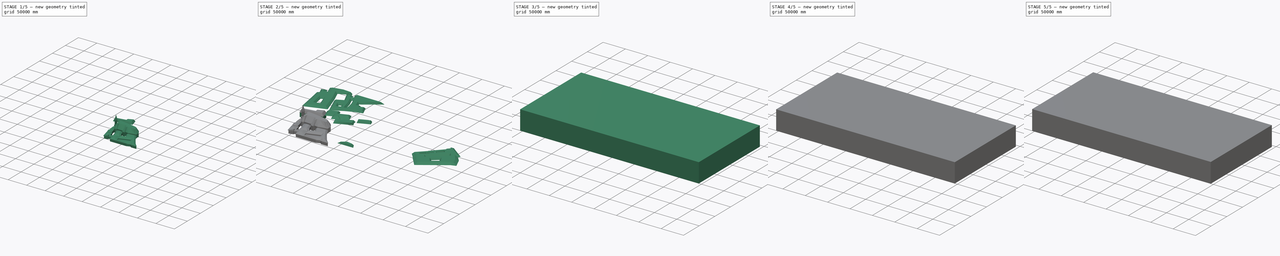
[diagram: build sequence overview — one tinted view per stage of 5, left to right]
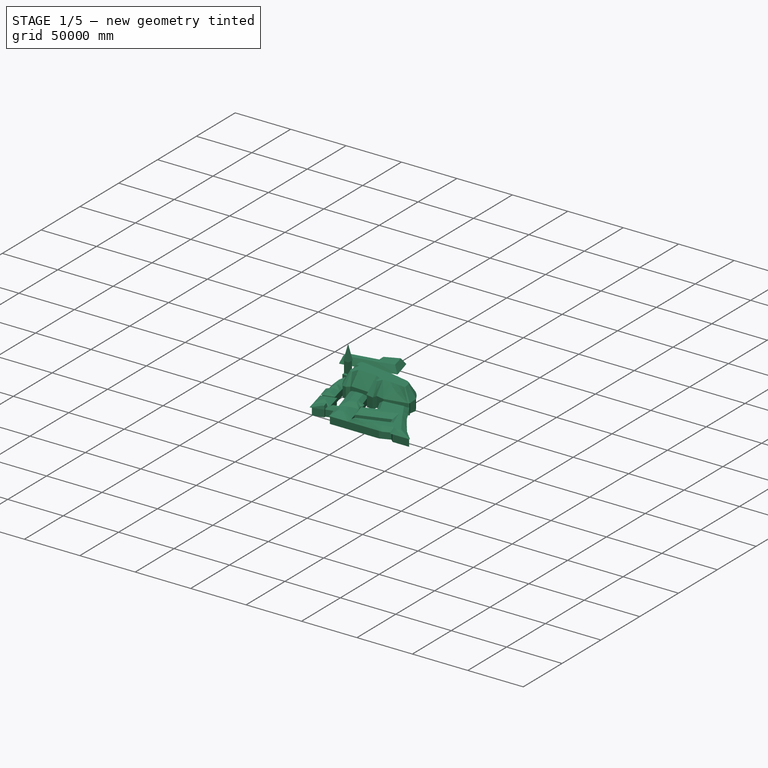
[diagram: stage 1 of 5 — iso view after this stage's code; geometry added in this stage tinted green]
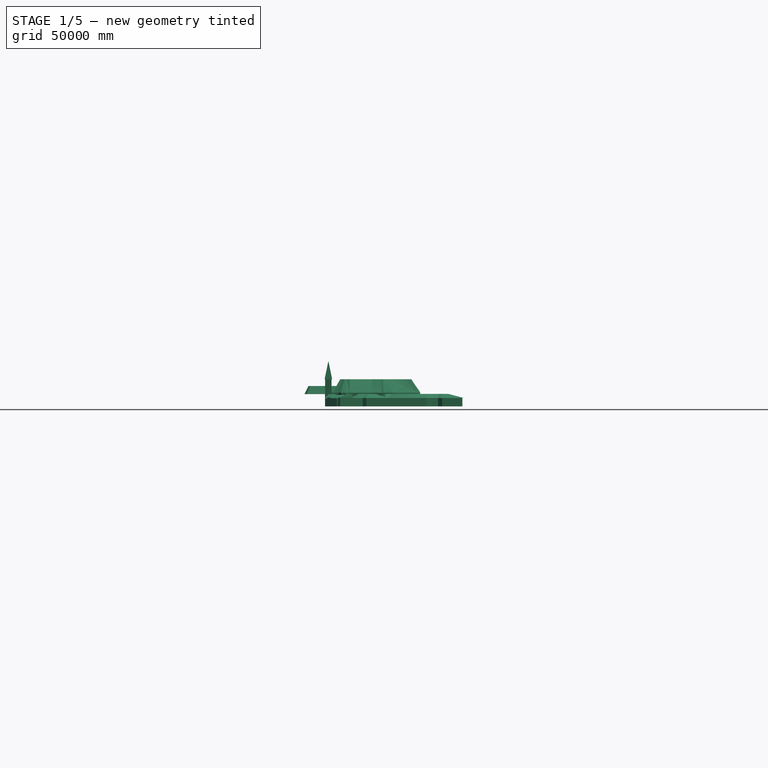
[diagram: stage 1 of 5 — front view after this stage's code; geometry added in this stage tinted green]
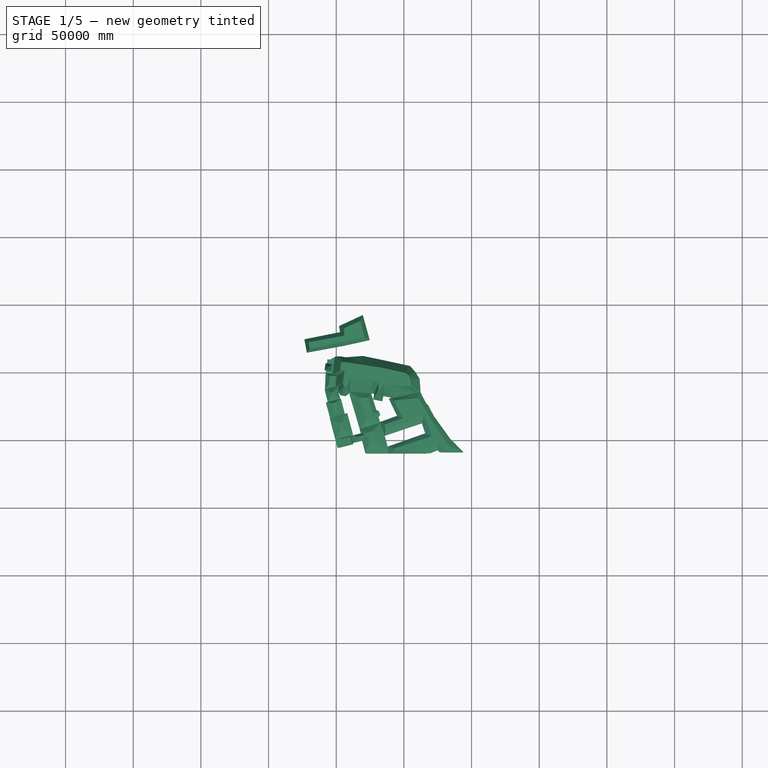
[diagram: stage 1 of 5 — top view after this stage's code; geometry added in this stage tinted green]
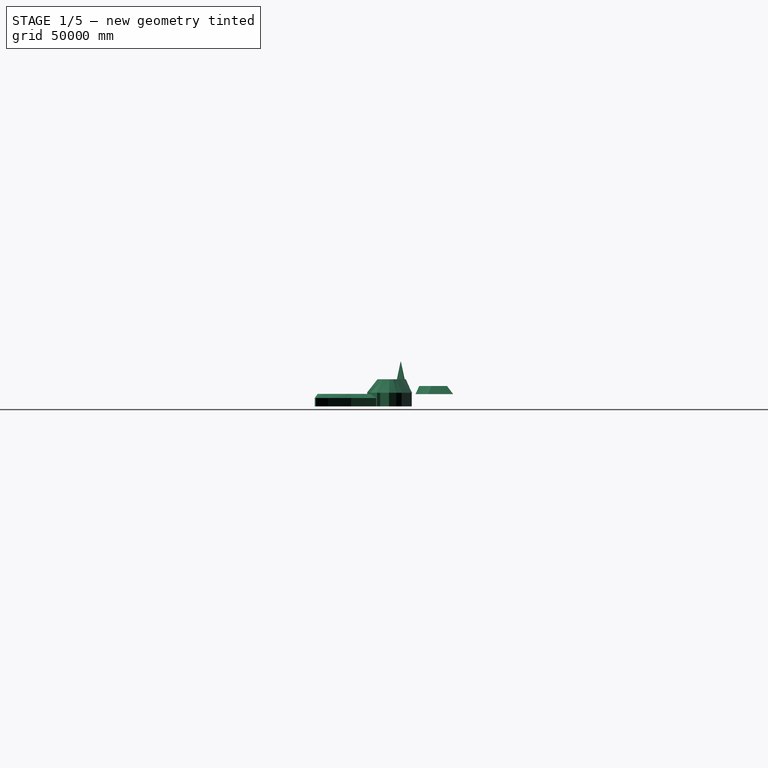
[diagram: stage 1 of 5 — right view after this stage's code; geometry added in this stage tinted green]
FCSTD DOCUMENT  (FreeCAD 1.0R39109 (Git))
Label: Hauptplatz_V2
License: All rights reserved
LicenseURL: https://en.wikipedia.org/wiki/All_rights_reserved
objects: Sketcher::SketchObject×139, PartDesign::Body×88, PartDesign::AdditiveLoft×53, PartDesign::Pad×36, PartDesign::Boolean×5, Image::ImagePlane×1, PartDesign::ShapeBinder×1
note: 644 computed .brp shape members not serialized (recipe doc carries the construction recipe); baked Part::Feature solids carry a one-line shape summary decoded from their .brp

FEATURE [PartDesign::Body] Body069  label="Körper26"
  AllowCompound = false
  Group = -> [Sketch108,Pad027]
  Origin = -> Origin069
  Tip = -> Pad027
FEATURE [Sketcher::SketchObject] Sketch109
  ArcFitTolerance = 1e-06
  AttachmentOffset = pos=(0,0,9000) rot=(0,0,1;0rad)
  AttachmentSupport = -> [XY_Plane071]
  FullyConstrained = true
  MakeInternals = false
  MapMode = 5
  Placement = pos=(0,0,9000) rot=(0,0,1;0rad)
  sketch-geometry (7):
    g0: LineSegment StartX=-173572 StartY=-25307.9 StartZ=0 EndX=-171714 EndY=-35281.9 EndZ=0
    g1: LineSegment StartX=-171714 StartY=-35281.9 StartZ=0 EndX=-144561 EndY=-30238 EndZ=0
    g2: LineSegment StartX=-144561 StartY=-30238 StartZ=0 EndX=-125244 EndY=-25989.6 EndZ=0
    g3: LineSegment StartX=-125244 StartY=-25989.6 StartZ=0 EndX=-130351 EndY=-7367.02 EndZ=0
    g4: LineSegment StartX=-130351 StartY=-7367.02 StartZ=0 EndX=-147963 EndY=-15551.7 EndZ=0
    g5: LineSegment StartX=-147963 StartY=-15551.7 StartZ=0 EndX=-147166 EndY=-20064.7 EndZ=0
    g6: LineSegment StartX=-147166 StartY=-20064.7 StartZ=0 EndX=-173572 EndY=-25307.9 EndZ=0
  constraints (14):
    c: Coincident(g0,g1)
    c: Coincident(g1,g2)
    c: Coincident(g2,g3)
    c: Coincident(g3,g4)
    c: Coincident(g4,g5)
    c: Coincident(g5,g6)
    c: Coincident(g6,g0)
    c: Block(g0)
    c: Block(g1)
    c: Block(g2)
    c: Block(g3)
    c: Block(g4)
    c: Block(g5)
    c: Block(g6)
FEATURE [Sketcher::SketchObject] Sketch110
  ArcFitTolerance = 1e-06
  AttachmentOffset = pos=(0,0,15000) rot=(0,0,1;0rad)
  AttachmentSupport = -> [XY_Plane071]
  FullyConstrained = true
  MakeInternals = false
  MapMode = 5
  Placement = pos=(0,0,15000) rot=(0,0,1;0rad)
  sketch-geometry (7):
    g0: LineSegment StartX=-170529 StartY=-27606.5 StartZ=0 EndX=-169631 EndY=-32443.6 EndZ=0
    g1: LineSegment StartX=-169631 StartY=-32443.6 StartZ=0 EndX=-144527 EndY=-27343.1 EndZ=0
    g2: LineSegment StartX=-144527 StartY=-27343.1 StartZ=0 EndX=-129206 EndY=-23529.5 EndZ=0
    g3: LineSegment StartX=-129206 StartY=-23529.5 StartZ=0 EndX=-132178 EndY=-11920.4 EndZ=0
    g4: LineSegment StartX=-132178 StartY=-11920.4 StartZ=0 EndX=-144270 EndY=-17241.3 EndZ=0
    g5: LineSegment StartX=-144270 StartY=-17241.3 StartZ=0 EndX=-143994 EndY=-22700.3 EndZ=0
    g6: LineSegment StartX=-143994 StartY=-22700.3 StartZ=0 EndX=-170529 EndY=-27606.5 EndZ=0
  constraints (14):
    c: Coincident(g0,g1)
    c: Coincident(g1,g2)
    c: Coincident(g2,g3)
    c: Coincident(g3,g4)
    c: Coincident(g4,g5)
    c: Coincident(g5,g6)
    c: Coincident(g6,g0)
    c: Block(g0)
    c: Block(g1)
    c: Block(g2)
    c: Block(g3)
    c: Block(g4)
    c: Block(g5)
    c: Block(g6)
FEATURE [PartDesign::AdditiveLoft] AdditiveLoft042
  Closed = false
  Profile = -> Sketch110
  Refine = true
  Ruled = false
  Sections = -> [Sketch109]
  Suppressed = false
FEATURE [PartDesign::Body] Body070  label="Dach26"
  AllowCompound = false
  Group = -> [Sketch109,Sketch110,AdditiveLoft042]
  Origin = -> Origin070
  Tip = -> AdditiveLoft042
FEATURE [Sketcher::SketchObject] Sketch111
  ArcFitTolerance = 1e-06
  AttachmentSupport = -> [XY_Plane072]
  FullyConstrained = true
  MakeInternals = false
  MapMode = 5
  sketch-geometry (35):
    g0: LineSegment StartX=-156509 StartY=-40034.1 StartZ=0 EndX=-154617 EndY=-40323.8 EndZ=0
    g1: LineSegment StartX=-154617 StartY=-40323.8 StartZ=0 EndX=-152896 EndY=-39352.5 EndZ=0
    g2: LineSegment StartX=-152896 StartY=-39352.5 StartZ=0 EndX=-151550 EndY=-38756.1 EndZ=0
    g3: LineSegment StartX=-151550 StartY=-38756.1 StartZ=0 EndX=-149352 EndY=-38296 EndZ=0
    g4: LineSegment StartX=-149352 StartY=-38296 StartZ=0 EndX=-147256 EndY=-38296 EndZ=0
    g5: LineSegment StartX=-147256 StartY=-38296 StartZ=0 EndX=-142808 EndY=-38977.6 EndZ=0
    g6: LineSegment StartX=-142808 StartY=-38977.6 StartZ=0 EndX=-130345 EndY=-37986.7 EndZ=0
    g7: LineSegment StartX=-130345 StartY=-37986.7 StartZ=0 EndX=-115089 EndY=-41226.2 EndZ=0
    g8: LineSegment StartX=-115089 StartY=-41226.2 StartZ=0 EndX=-95709.3 EndY=-45454.1 EndZ=0
    g9: LineSegment StartX=-95709.3 StartY=-45454.1 StartZ=0 EndX=-92108.9 EndY=-49480.8 EndZ=0
    g10: LineSegment StartX=-92108.9 StartY=-49480.8 StartZ=0 EndX=-88752 EndY=-54763.3 EndZ=0
    g11: LineSegment StartX=-88752 StartY=-54763.3 StartZ=0 EndX=-89927.9 EndY=-61739.2 EndZ=0
    g12: LineSegment StartX=-89927.9 StartY=-61739.2 StartZ=0 EndX=-89212.2 EndY=-61381.4 EndZ=0
    g13: LineSegment StartX=-89212.2 StartY=-61381.4 StartZ=0 EndX=-88053.5 EndY=-63664.8 EndZ=0
    g14: LineSegment StartX=-88053.5 StartY=-63664.8 StartZ=0 EndX=-89229.3 EndY=-64312.3 EndZ=0
    g15: LineSegment StartX=-89229.3 StartY=-64312.3 StartZ=0 EndX=-108099 EndY=-68400.8 EndZ=0
    g16: LineSegment StartX=-108099 StartY=-68400.8 StartZ=0 EndX=-115477 EndY=-66804.9 EndZ=0
    g17: LineSegment StartX=-115477 StartY=-66804.9 StartZ=0 EndX=-116358 EndY=-70839.1 EndZ=0
    g18: LineSegment StartX=-116358 StartY=-70839.1 StartZ=0 EndX=-122372 EndY=-69569.5 EndZ=0
    g19: LineSegment StartX=-122372 StartY=-69569.5 StartZ=0 EndX=-121507 EndY=-65509.6 EndZ=0
    g20: LineSegment StartX=-121507 StartY=-65509.6 StartZ=0 EndX=-124720 EndY=-64824 EndZ=0
    g21: LineSegment StartX=-124720 StartY=-64824 StartZ=0 EndX=-140327 EndY=-64062.6 EndZ=0
    g22: LineSegment StartX=-140327 StartY=-64062.6 StartZ=0 EndX=-140433 EndY=-65080.4 EndZ=0
    g23: LineSegment StartX=-140433 StartY=-65080.4 StartZ=0 EndX=-143152 EndY=-67005.2 EndZ=0
    g24: LineSegment StartX=-143152 StartY=-67005.2 StartZ=0 EndX=-146403 EndY=-66484.9 EndZ=0
    g25: LineSegment StartX=-146403 StartY=-66484.9 StartZ=0 EndX=-148315 EndY=-63811 EndZ=0
    g26: LineSegment StartX=-148315 StartY=-63811 StartZ=0 EndX=-147818 EndY=-60511.8 EndZ=0
    g27: LineSegment StartX=-147818 StartY=-60511.8 StartZ=0 EndX=-150224 EndY=-60079.2 EndZ=0
    g28: LineSegment StartX=-150224 StartY=-60079.2 StartZ=0 EndX=-148878 EndY=-51719 EndZ=0
    g29: LineSegment StartX=-148878 StartY=-51719 StartZ=0 EndX=-157853 EndY=-50530.3 EndZ=0
    g30: LineSegment StartX=-157853 StartY=-50530.3 StartZ=0 EndX=-157565 EndY=-48166.4 EndZ=0
    g31: LineSegment StartX=-157565 StartY=-48166.4 StartZ=0 EndX=-158332 EndY=-48074.4 EndZ=0
    g32: LineSegment StartX=-158332 StartY=-48074.4 StartZ=0 EndX=-157811 EndY=-43405.9 EndZ=0
    g33: LineSegment StartX=-157811 StartY=-43405.9 StartZ=0 EndX=-156957 EndY=-43468.3 EndZ=0
    g34: LineSegment StartX=-156957 StartY=-43468.3 StartZ=0 EndX=-156509 EndY=-40034.1 EndZ=0
  constraints (71):
    c: Coincident(g0,g1)
    c: Coincident(g1,g2)
    c: Coincident(g2,g3)
    c: Coincident(g3,g4)
    c: Horizontal(g4)
    c: Coincident(g4,g5)
    c: Coincident(g5,g6)
    c: Coincident(g6,g7)
    c: Coincident(g7,g8)
    c: Coincident(g8,g9)
    c: Coincident(g9,g10)
    c: Coincident(g10,g11)
    c: Coincident(g11,g12)
    c: Coincident(g12,g13)
    c: Coincident(g13,g14)
    c: Coincident(g14,g15)
    c: Coincident(g15,g16)
    c: Coincident(g16,g17)
    c: Coincident(g17,g18)
    c: Coincident(g18,g19)
    c: Coincident(g19,g20)
    c: Coincident(g20,g21)
    c: Coincident(g21,g22)
    c: Coincident(g22,g23)
    c: Coincident(g23,g24)
    c: Coincident(g24,g25)
    c: Coincident(g25,g26)
    c: Coincident(g26,g27)
    c: Coincident(g27,g28)
    c: Coincident(g28,g29)
    c: Coincident(g29,g30)
    c: Coincident(g30,g31)
    c: Coincident(g31,g32)
    c: Coincident(g32,g33)
    c: Coincident(g33,g34)
    c: Coincident(g34,g0)
    c: Block(g0)
    c: Block(g1)
    c: Block(g2)
    c: Block(g3)
    c: Block(g4)
    c: Block(g5)
    c: Block(g6)
    c: Block(g7)
    c: Block(g8)
    c: Block(g9)
    c: Block(g10)
    c: Block(g11)
    c: Block(g12)
    c: Block(g13)
    c: Block(g14)
    c: Block(g15)
    c: Block(g16)
    c: Block(g17)
    c: Block(g18)
    c: Block(g19)
    c: Block(g20)
    c: Block(g21)
    c: Block(g22)
    c: Block(g23)
    c: Block(g24)
    c: Block(g25)
    c: Block(g26)
    c: Block(g27)
    c: Block(g28)
    c: Block(g29)
    c: Block(g30)
    c: Block(g31)
    c: Block(g32)
    c: Block(g33)
    c: Block(g34)
FEATURE [PartDesign::Pad] Pad028
  Direction = (0,0,1)
  Length = 10000
  Length2 = 10
  Profile = -> Sketch111
  ReferenceAxis = -> Sketch111 [N_Axis]
  Refine = true
  Suppressed = false
  Type = 0
FEATURE [PartDesign::Body] Body071  label="Körper27"
  AllowCompound = false
  Group = -> [Sketch111,Pad028]
  Origin = -> Origin071
  Tip = -> Pad028
FEATURE [Sketcher::SketchObject] Sketch112
  ArcFitTolerance = 1e-06
  AttachmentOffset = pos=(0,0,10000) rot=(0,0,1;0rad)
  AttachmentSupport = -> [XY_Plane073]
  FullyConstrained = true
  MakeInternals = false
  MapMode = 5
  Placement = pos=(0,0,10000) rot=(0,0,1;0rad)
  sketch-geometry (4):
    g0: LineSegment StartX=-157610 StartY=-43713.9 StartZ=0 EndX=-158169 EndY=-47967.7 EndZ=0
    g1: LineSegment StartX=-158169 StartY=-47967.7 StartZ=0 EndX=-154008 EndY=-48526.6 EndZ=0
    g2: LineSegment StartX=-154008 StartY=-48526.6 StartZ=0 EndX=-153480 EndY=-44334.9 EndZ=0
    g3: LineSegment StartX=-153480 StartY=-44334.9 StartZ=0 EndX=-157610 EndY=-43713.9 EndZ=0
  constraints (8):
    c: Coincident(g0,g1)
    c: Coincident(g1,g2)
    c: Coincident(g2,g3)
    c: Coincident(g3,g0)
    c: Block(g0)
    c: Block(g1)
    c: Block(g2)
    c: Block(g3)
FEATURE [PartDesign::Pad] Pad029
  Direction = (0,0,1)
  Length = 10000
  Length2 = 10
  Profile = -> Sketch112
  ReferenceAxis = -> Sketch112 [N_Axis]
  Refine = true
  Suppressed = false
  Type = 0
FEATURE [PartDesign::Body] Body072  label="Körper27_1"
  AllowCompound = false
  Group = -> [Sketch112,Pad029]
  Origin = -> Origin072
  Tip = -> Pad029
FEATURE [Sketcher::SketchObject] Sketch113
  ArcFitTolerance = 1e-06
  AttachmentOffset = pos=(0,0,20000) rot=(0,0,1;0rad)
  AttachmentSupport = -> [XY_Plane074]
  FullyConstrained = true
  MakeInternals = false
  MapMode = 5
  Placement = pos=(0,0,20000) rot=(0,0,1;0rad)
  sketch-geometry (4):
    g0: LineSegment StartX=-157937 StartY=-43232 StartZ=0 EndX=-153029 EndY=-43981.8 EndZ=0
    g1: LineSegment StartX=-153029 StartY=-43981.8 StartZ=0 EndX=-153643 EndY=-48974.6 EndZ=0
    g2: LineSegment StartX=-153643 StartY=-48974.6 StartZ=0 EndX=-158618 EndY=-48275.9 EndZ=0
    g3: LineSegment StartX=-158618 StartY=-48275.9 StartZ=0 EndX=-157937 EndY=-43232 EndZ=0
  constraints (8):
    c: Coincident(g0,g1)
    c: Coincident(g1,g2)
    c: Coincident(g2,g3)
    c: Coincident(g3,g0)
    c: Block(g0)
    c: Block(g1)
    c: Block(g2)
    c: Block(g3)
FEATURE [Sketcher::SketchObject] Sketch114
  ArcFitTolerance = 1e-06
  AttachmentOffset = pos=(0,0,33000) rot=(0,0,1;0rad)
  AttachmentSupport = -> [XY_Plane074]
  FullyConstrained = true
  MakeInternals = false
  MapMode = 5
  Placement = pos=(0,0,33000) rot=(0,0,1;0rad)
  sketch-geometry (4):
    g0: LineSegment StartX=-155872 StartY=-46000.7 StartZ=0 EndX=-155659 EndY=-46039.1 EndZ=0
    g1: LineSegment StartX=-155659 StartY=-46039.1 StartZ=0 EndX=-155690 EndY=-46252.5 EndZ=0
    g2: LineSegment StartX=-155690 StartY=-46252.5 StartZ=0 EndX=-155905 EndY=-46220.9 EndZ=0
    g3: LineSegment StartX=-155905 StartY=-46220.9 StartZ=0 EndX=-155872 EndY=-46000.7 EndZ=0
  constraints (8):
    c: Coincident(g0,g1)
    c: Coincident(g1,g2)
    c: Coincident(g2,g3)
    c: Coincident(g3,g0)
    c: Block(g0)
    c: Block(g1)
    c: Block(g2)
    c: Block(g3)
FEATURE [PartDesign::AdditiveLoft] AdditiveLoft043
  Closed = false
  Profile = -> Sketch114
  Refine = true
  Ruled = false
  Sections = -> [Sketch113]
  Suppressed = false
FEATURE [PartDesign::Body] Body073  label="Dach27_1"
  AllowCompound = false
  Group = -> [Sketch113,Sketch114,AdditiveLoft043]
  Origin = -> Origin073
  Tip = -> AdditiveLoft043
FEATURE [Sketcher::SketchObject] Sketch115
  ArcFitTolerance = 1e-06
  AttachmentOffset = pos=(0,0,10000) rot=(0,0,1;0rad)
  AttachmentSupport = -> [XY_Plane075]
  FullyConstrained = true
  MakeInternals = false
  MapMode = 5
  Placement = pos=(0,0,10000) rot=(0,0,1;0rad)
  sketch-geometry (26):
    g0: LineSegment StartX=-149382 StartY=-37956.8 StartZ=0 EndX=-147223 EndY=-37956.8 EndZ=0
    g1: LineSegment StartX=-147223 StartY=-37956.8 StartZ=0 EndX=-142788 EndY=-38631 EndZ=0
    g2: LineSegment StartX=-142788 StartY=-38631 StartZ=0 EndX=-130312 EndY=-37648.2 EndZ=0
    g3: LineSegment StartX=-130312 StartY=-37648.2 StartZ=0 EndX=-115010 EndY=-40825.8 EndZ=0
    g4: LineSegment StartX=-115010 StartY=-40825.8 StartZ=0 EndX=-95425.4 EndY=-45088.6 EndZ=0
    g5: LineSegment StartX=-95425.4 StartY=-45088.6 StartZ=0 EndX=-91688.2 EndY=-49249.7 EndZ=0
    g6: LineSegment StartX=-91688.2 StartY=-49249.7 StartZ=0 EndX=-88355.3 EndY=-54678.5 EndZ=0
    g7: LineSegment StartX=-88355.3 StartY=-54678.5 StartZ=0 EndX=-87725.1 EndY=-63765.3 EndZ=0
    g8: LineSegment StartX=-87725.1 StartY=-63765.3 StartZ=0 EndX=-89122.4 EndY=-64617.3 EndZ=0
    g9: LineSegment StartX=-89122.4 StartY=-64617.3 StartZ=0 EndX=-108127 EndY=-68760 EndZ=0
    g10: LineSegment StartX=-108127 StartY=-68760 StartZ=0 EndX=-115185 EndY=-67345.9 EndZ=0
    g11: LineSegment StartX=-115185 StartY=-67345.9 StartZ=0 EndX=-116054 EndY=-71231.1 EndZ=0
    g12: LineSegment StartX=-116054 StartY=-71231.1 StartZ=0 EndX=-122754 EndY=-69832.3 EndZ=0
    g13: LineSegment StartX=-122754 StartY=-69832.3 StartZ=0 EndX=-121919 EndY=-65827.8 EndZ=0
    g14: LineSegment StartX=-121919 StartY=-65827.8 StartZ=0 EndX=-124747 EndY=-65231.4 EndZ=0
    g15: LineSegment StartX=-124747 StartY=-65231.4 StartZ=0 EndX=-140125 EndY=-64361.5 EndZ=0
    g16: LineSegment StartX=-140125 StartY=-64361.5 StartZ=0 EndX=-140193 EndY=-65247.6 EndZ=0
    g17: LineSegment StartX=-140193 StartY=-65247.6 StartZ=0 EndX=-143093 EndY=-67378.5 EndZ=0
    g18: LineSegment StartX=-143093 StartY=-67378.5 StartZ=0 EndX=-146603 EndY=-66816.2 EndZ=0
    g19: LineSegment StartX=-146603 StartY=-66816.2 StartZ=0 EndX=-148665 EndY=-63868.2 EndZ=0
    g20: LineSegment StartX=-148665 StartY=-63868.2 StartZ=0 EndX=-148188 EndY=-60880.9 EndZ=0
    g21: LineSegment StartX=-148188 StartY=-60880.9 StartZ=0 EndX=-150557 EndY=-60420.9 EndZ=0
    g22: LineSegment StartX=-150557 StartY=-60420.9 StartZ=0 EndX=-149237 EndY=-52085.1 EndZ=0
    g23: LineSegment StartX=-149237 StartY=-52085.1 StartZ=0 EndX=-152663 EndY=-51644.5 EndZ=0
    g24: LineSegment StartX=-152663 StartY=-51644.5 StartZ=0 EndX=-151111 EndY=-38293.2 EndZ=0
    g25: LineSegment StartX=-151111 StartY=-38293.2 StartZ=0 EndX=-149382 EndY=-37956.8 EndZ=0
  constraints (53):
    c: Horizontal(g0)
    c: Coincident(g0,g1)
    c: Coincident(g1,g2)
    c: Coincident(g2,g3)
    c: Coincident(g3,g4)
    c: Coincident(g4,g5)
    c: Coincident(g5,g6)
    c: Coincident(g6,g7)
    c: Coincident(g7,g8)
    c: Coincident(g8,g9)
    c: Coincident(g9,g10)
    c: Coincident(g10,g11)
    c: Coincident(g11,g12)
    c: Coincident(g12,g13)
    c: Coincident(g13,g14)
    c: Coincident(g14,g15)
    c: Coincident(g15,g16)
    c: Coincident(g16,g17)
    c: Coincident(g17,g18)
    c: Coincident(g18,g19)
    c: Coincident(g19,g20)
    c: Coincident(g20,g21)
    c: Coincident(g21,g22)
    c: Coincident(g22,g23)
    c: Coincident(g23,g24)
    c: Coincident(g24,g25)
    c: Coincident(g25,g0)
    c: Block(g0)
    c: Block(g1)
    c: Block(g2)
    c: Block(g3)
    c: Block(g4)
    c: Block(g5)
    c: Block(g6)
    c: Block(g7)
    c: Block(g8)
    c: Block(g9)
    c: Block(g10)
    c: Block(g11)
    c: Block(g12)
    c: Block(g13)
    c: Block(g14)
    c: Block(g15)
    c: Block(g16)
    c: Block(g17)
    c: Block(g18)
    c: Block(g19)
    c: Block(g20)
    c: Block(g21)
    c: Block(g22)
    c: Block(g23)
    c: Block(g24)
    c: Block(g25)
FEATURE [Sketcher::SketchObject] Sketch116
  ArcFitTolerance = 1e-06
  AttachmentOffset = pos=(0,0,20000) rot=(0,0,1;0rad)
  AttachmentSupport = -> [XY_Plane075]
  FullyConstrained = false
  MakeInternals = false
  MapMode = 5
  Placement = pos=(0,0,20000) rot=(0,0,1;0rad)
  sketch-geometry (26):
    g0: LineSegment StartX=-146586 StartY=-43249.8 StartZ=0 EndX=-145900 EndY=-42614.2 EndZ=0
    g1: LineSegment StartX=-145900 StartY=-42614.2 StartZ=0 EndX=-144756 EndY=-42360 EndZ=0
    g2: LineSegment StartX=-144756 StartY=-42360 StartZ=0 EndX=-142964 EndY=-42374.1 EndZ=0
    g3: LineSegment StartX=-142964 StartY=-42374.1 StartZ=0 EndX=-130717 EndY=-44303.4 EndZ=0
    g4: LineSegment StartX=-130717 StartY=-44303.4 StartZ=0 EndX=-116351 EndY=-46551 EndZ=0
    g5: LineSegment StartX=-116351 StartY=-46551 StartZ=0 EndX=-99154.6 EndY=-50299.6 EndZ=0
    g6: LineSegment StartX=-99154.6 StartY=-50299.6 StartZ=0 EndX=-96800.7 EndY=-51868.3 EndZ=0
    g7: LineSegment StartX=-96800.7 StartY=-51868.3 StartZ=0 EndX=-95427 EndY=-54636.5 EndZ=0
    g8: LineSegment StartX=-95427 StartY=-54636.5 StartZ=0 EndX=-94532.1 EndY=-60067.8 EndZ=0
    g9: LineSegment StartX=-94532.1 StartY=-60067.8 StartZ=0 EndX=-94843.6 EndY=-60409.1 EndZ=0
    g10: LineSegment StartX=-94843.6 StartY=-60409.1 StartZ=0 EndX=-108276 EndY=-58932.1 EndZ=0
    g11: LineSegment StartX=-108276 StartY=-58932.1 StartZ=0 EndX=-115443 EndY=-59166.8 EndZ=0
    g12: LineSegment StartX=-115443 StartY=-59166.8 StartZ=0 EndX=-117302 EndY=-63293.3 EndZ=0
    g13: LineSegment StartX=-117302 StartY=-63293.3 StartZ=0 EndX=-118898 EndY=-62898.3 EndZ=0
    g14: LineSegment StartX=-118898 StartY=-62898.3 StartZ=0 EndX=-118898 EndY=-58061.2 EndZ=0
    g15: LineSegment StartX=-118898 StartY=-58061.2 StartZ=0 EndX=-123307 EndY=-55706.7 EndZ=0
    g16: LineSegment StartX=-123307 StartY=-55706.7 StartZ=0 EndX=-140117 EndY=-55232.4 EndZ=0
    g17: LineSegment StartX=-140117 StartY=-55232.4 StartZ=0 EndX=-141960 EndY=-60394.8 EndZ=0
    g18: LineSegment StartX=-141960 StartY=-60394.8 StartZ=0 EndX=-142984 EndY=-60736.1 EndZ=0
    g19: LineSegment StartX=-142984 StartY=-60736.1 StartZ=0 EndX=-144046 EndY=-60470.7 EndZ=0
    g20: LineSegment StartX=-144046 StartY=-60470.7 StartZ=0 EndX=-144652 EndY=-59484.6 EndZ=0
    g21: LineSegment StartX=-144652 StartY=-59484.6 StartZ=0 EndX=-144842 EndY=-57967.7 EndZ=0
    g22: LineSegment StartX=-144842 StartY=-57967.7 StartZ=0 EndX=-145259 EndY=-57853.9 EndZ=0
    g23: LineSegment StartX=-145259 StartY=-57853.9 StartZ=0 EndX=-143863 EndY=-48826.5 EndZ=0
    g24: LineSegment StartX=-143863 StartY=-48826.5 StartZ=0 EndX=-147110 EndY=-48358.7 EndZ=0
    g25: LineSegment StartX=-147110 StartY=-48358.7 StartZ=0 EndX=-146586 EndY=-43249.8 EndZ=0
  constraints (27):
    c: Coincident(g0,g1)
    c: Coincident(g1,g2)
    c: Coincident(g2,g3)
    c: Coincident(g3,g4)
    c: Coincident(g4,g5)
    c: Coincident(g5,g6)
    c: Coincident(g6,g7)
    c: Coincident(g7,g8)
    c: Coincident(g8,g9)
    c: Coincident(g9,g10)
    c: Coincident(g10,g11)
    c: Coincident(g11,g12)
    c: Coincident(g12,g13)
    c: Coincident(g13,g14)
    c: Vertical(g14)
    c: Coincident(g14,g15)
    c: Coincident(g15,g16)
    c: Coincident(g16,g17)
    c: Coincident(g17,g18)
    c: Coincident(g18,g19)
    c: Coincident(g19,g20)
    c: Coincident(g20,g21)
    c: Coincident(g21,g22)
    c: Coincident(g22,g23)
    c: Coincident(g23,g24)
    c: Coincident(g24,g25)
    c: Coincident(g25,g0)
FEATURE [PartDesign::AdditiveLoft] AdditiveLoft044
  Closed = false
  Profile = -> Sketch116
  Refine = true
  Ruled = false
  Sections = -> [Sketch115]
  Suppressed = false
FEATURE [PartDesign::Body] Body074  label="Dach27"
  AllowCompound = false
  Group = -> [Sketch115,Sketch116,AdditiveLoft044]
  Origin = -> Origin074
  Tip = -> AdditiveLoft044
FEATURE [Sketcher::SketchObject] Sketch117
  ArcFitTolerance = 1e-06
  AttachmentSupport = -> [XY_Plane076]
  FullyConstrained = true
  MakeInternals = false
  MapMode = 5
  sketch-geometry (4):
    g0: LineSegment StartX=-157232 StartY=-50680 StartZ=0 EndX=-148919 EndY=-51823.9 EndZ=0
    g1: LineSegment StartX=-148919 StartY=-51823.9 StartZ=0 EndX=-150317 EndY=-60162.1 EndZ=0
    g2: LineSegment StartX=-150317 StartY=-60162.1 StartZ=0 EndX=-157842 EndY=-62043.2 EndZ=0
    g3: LineSegment StartX=-157842 StartY=-62043.2 StartZ=0 EndX=-157232 EndY=-50680 EndZ=0
  constraints (8):
    c: Coincident(g0,g1)
    c: Coincident(g1,g2)
    c: Coincident(g2,g3)
    c: Coincident(g3,g0)
    c: Block(g0)
    c: Block(g1)
    c: Block(g2)
    c: Block(g3)
FEATURE [PartDesign::Pad] Pad030
  Direction = (0,0,1)
  Length = 6000
  Length2 = 10
  Profile = -> Sketch117
  ReferenceAxis = -> Sketch117 [N_Axis]
  Refine = true
  Suppressed = false
  Type = 0
FEATURE [PartDesign::Body] Body075  label="Körper28"
  AllowCompound = false
  Group = -> [Sketch117,Pad030]
  Origin = -> Origin075
  Tip = -> Pad030
FEATURE [Sketcher::SketchObject] Sketch118
  ArcFitTolerance = 1e-06
  AttachmentOffset = pos=(0,0,6000) rot=(0,0,1;0rad)
  AttachmentSupport = -> [XY_Plane077]
  FullyConstrained = true
  MakeInternals = false
  MapMode = 5
  Placement = pos=(0,0,6000) rot=(0,0,1;0rad)
  sketch-geometry (4):
    g0: LineSegment StartX=-148921 StartY=-51828 StartZ=0 EndX=-157855 EndY=-50593.1 EndZ=0
    g1: LineSegment StartX=-157855 StartY=-50593.1 StartZ=0 EndX=-158328 EndY=-62164.7 EndZ=0
    g2: LineSegment StartX=-158328 StartY=-62164.7 StartZ=0 EndX=-150318 EndY=-60162.1 EndZ=0
    g3: LineSegment StartX=-150318 StartY=-60162.1 StartZ=0 EndX=-148921 EndY=-51828 EndZ=0
  constraints (8):
    c: Coincident(g0,g1)
    c: Coincident(g1,g2)
    c: Coincident(g2,g3)
    c: Coincident(g3,g0)
    c: Block(g0)
    c: Block(g1)
    c: Block(g2)
    c: Block(g3)
FEATURE [Sketcher::SketchObject] Sketch119
  ArcFitTolerance = 1e-06
  AttachmentOffset = pos=(0,0,9000) rot=(0,0,1;0rad)
  AttachmentSupport = -> [XY_Plane077]
  FullyConstrained = true
  MakeInternals = false
  MapMode = 5
  Placement = pos=(0,0,9000) rot=(0,0,1;0rad)
  sketch-geometry (4):
    g0: LineSegment StartX=-149918 StartY=-52456.7 StartZ=0 EndX=-154643 EndY=-52039.8 EndZ=0
    g1: LineSegment StartX=-154643 StartY=-52039.8 StartZ=0 EndX=-155544 EndY=-58417.1 EndZ=0
    g2: LineSegment StartX=-155544 StartY=-58417.1 StartZ=0 EndX=-150844 EndY=-56949.8 EndZ=0
    g3: LineSegment StartX=-150844 StartY=-56949.8 StartZ=0 EndX=-149918 EndY=-52456.7 EndZ=0
  constraints (8):
    c: Coincident(g0,g1)
    c: Coincident(g1,g2)
    c: Coincident(g2,g3)
    c: Coincident(g0,g3)
    c: Block(g0)
    c: Block(g1)
    c: Block(g2)
    c: Block(g3)
FEATURE [PartDesign::AdditiveLoft] AdditiveLoft045
  Closed = true
  Profile = -> Sketch118
  Refine = true
  Ruled = true
  Sections = -> [Sketch119]
  Suppressed = false
FEATURE [PartDesign::Body] Body076  label="Dach28"
  AllowCompound = false
  Group = -> [Sketch119,Sketch118,AdditiveLoft045]
  Origin = -> Origin076
  Tip = -> AdditiveLoft045
FEATURE [Sketcher::SketchObject] Sketch120
  ArcFitTolerance = 1e-06
  AttachmentSupport = -> [XY_Plane078]
  FullyConstrained = true
  MakeInternals = false
  MapMode = 5
  sketch-geometry (6):
    g0: LineSegment StartX=-155442 StartY=-71408.3 StartZ=0 EndX=-157840 EndY=-62122.8 EndZ=0
    g1: LineSegment StartX=-157840 StartY=-62122.8 StartZ=0 EndX=-150265 EndY=-60185 EndZ=0
    g2: LineSegment StartX=-150265 StartY=-60185 StartZ=0 EndX=-147861 EndY=-60560.2 EndZ=0
    g3: LineSegment StartX=-147861 StartY=-60560.2 StartZ=0 EndX=-148366 EndY=-63816.3 EndZ=0
    g4: LineSegment StartX=-148366 StartY=-63816.3 StartZ=0 EndX=-147026 EndY=-69239.4 EndZ=0
    g5: LineSegment StartX=-147026 StartY=-69239.4 StartZ=0 EndX=-155442 EndY=-71408.3 EndZ=0
  constraints (12):
    c: Coincident(g0,g1)
    c: Coincident(g1,g2)
    c: Coincident(g2,g3)
    c: Coincident(g3,g4)
    c: Coincident(g4,g5)
    c: Coincident(g5,g0)
    c: Block(g0)
    c: Block(g1)
    c: Block(g2)
    c: Block(g3)
    c: Block(g4)
    c: Block(g5)
FEATURE [PartDesign::Pad] Pad031
  Direction = (0,0,1)
  Length = 5700
  Length2 = 10
  Profile = -> Sketch120
  ReferenceAxis = -> Sketch120 [N_Axis]
  Refine = true
  Suppressed = false
  Type = 0
FEATURE [PartDesign::Body] Body077  label="Körper29"
  AllowCompound = false
  Group = -> [Sketch120,Pad031]
  Origin = -> Origin077
  Tip = -> Pad031
FEATURE [Sketcher::SketchObject] Sketch121
  ArcFitTolerance = 1e-06
  AttachmentOffset = pos=(0,0,5700) rot=(0,0,1;0rad)
  AttachmentSupport = -> [XY_Plane079]
  FullyConstrained = true
  MakeInternals = false
  MapMode = 5
  Placement = pos=(0,0,5700) rot=(0,0,1;0rad)
  sketch-geometry (6):
    g0: LineSegment StartX=-150264 StartY=-60185 StartZ=0 EndX=-147860 EndY=-60560.5 EndZ=0
    g1: LineSegment StartX=-147860 StartY=-60560.5 StartZ=0 EndX=-148367 EndY=-63816.3 EndZ=0
    g2: LineSegment StartX=-148367 StartY=-63816.3 StartZ=0 EndX=-147025 EndY=-69240 EndZ=0
    g3: LineSegment StartX=-147025 StartY=-69240 StartZ=0 EndX=-156312 EndY=-71632.6 EndZ=0
    g4: LineSegment StartX=-156312 StartY=-71632.6 StartZ=0 EndX=-158600 EndY=-62317.6 EndZ=0
    g5: LineSegment StartX=-158600 StartY=-62317.6 StartZ=0 EndX=-150264 EndY=-60185 EndZ=0
  constraints (12):
    c: Coincident(g0,g1)
    c: Coincident(g1,g2)
    c: Coincident(g2,g3)
    c: Coincident(g3,g4)
    c: Coincident(g4,g5)
    c: Coincident(g5,g0)
    c: Block(g0)
    c: Block(g1)
    c: Block(g2)
    c: Block(g3)
    c: Block(g4)
    c: Block(g5)
FEATURE [Sketcher::SketchObject] Sketch122
  ArcFitTolerance = 1e-06
  AttachmentOffset = pos=(0,0,8700) rot=(0,0,1;0rad)
  AttachmentSupport = -> [XY_Plane079]
  FullyConstrained = true
  MakeInternals = false
  MapMode = 5
  Placement = pos=(0,0,8700) rot=(0,0,1;0rad)
  sketch-geometry (6):
    g0: LineSegment StartX=-154058 StartY=-64995.2 StartZ=0 EndX=-152482 EndY=-64537.7 EndZ=0
    g1: LineSegment StartX=-152482 StartY=-64537.7 StartZ=0 EndX=-152075 EndY=-64715.6 EndZ=0
    g2: LineSegment StartX=-152075 StartY=-64715.6 StartZ=0 EndX=-151897 EndY=-64995.2 EndZ=0
    g3: LineSegment StartX=-151897 StartY=-64995.2 StartZ=0 EndX=-151592 EndY=-66317.1 EndZ=0
    g4: LineSegment StartX=-151592 StartY=-66317.1 StartZ=0 EndX=-153626 EndY=-66800.1 EndZ=0
    g5: LineSegment StartX=-153626 StartY=-66800.1 StartZ=0 EndX=-154058 EndY=-64995.2 EndZ=0
  constraints (12):
    c: Coincident(g0,g1)
    c: Coincident(g1,g2)
    c: Coincident(g2,g3)
    c: Coincident(g3,g4)
    c: Coincident(g4,g5)
    c: Coincident(g5,g0)
    c: Block(g0)
    c: Block(g1)
    c: Block(g2)
    c: Block(g3)
    c: Block(g4)
    c: Block(g5)
FEATURE [PartDesign::AdditiveLoft] AdditiveLoft046
  Closed = false
  Profile = -> Sketch122
  Refine = true
  Ruled = false
  Sections = -> [Sketch121]
  Suppressed = false
FEATURE [PartDesign::Body] Body078  label="Dach29"
  AllowCompound = false
  Group = -> [Sketch121,Sketch122,AdditiveLoft046]
  Origin = -> Origin078
  Tip = -> AdditiveLoft046
FEATURE [Sketcher::SketchObject] Sketch123
  ArcFitTolerance = 1e-06
  AttachmentSupport = -> [XY_Plane080]
  FullyConstrained = true
  MakeInternals = false
  MapMode = 5
  sketch-geometry (4):
    g0: LineSegment StartX=-147006 StartY=-69270.3 StartZ=0 EndX=-156659 EndY=-71747.5 EndZ=0
    g1: LineSegment StartX=-156659 StartY=-71747.5 StartZ=0 EndX=-153702 EndY=-82890.2 EndZ=0
    g2: LineSegment StartX=-153702 StartY=-82890.2 StartZ=0 EndX=-144122 EndY=-80372.8 EndZ=0
    g3: LineSegment StartX=-144122 StartY=-80372.8 StartZ=0 EndX=-147006 EndY=-69270.3 EndZ=0
  constraints (8):
    c: Coincident(g0,g1)
    c: Coincident(g1,g2)
    c: Coincident(g2,g3)
    c: Coincident(g3,g0)
    c: Block(g0)
    c: Block(g1)
    c: Block(g2)
    c: Block(g3)
FEATURE [PartDesign::Pad] Pad032
  Direction = (0,0,1)
  Length = 6500
  Length2 = 10
  Profile = -> Sketch123
  ReferenceAxis = -> Sketch123 [N_Axis]
  Refine = true
  Suppressed = false
  Type = 0
FEATURE [PartDesign::Body] Body079  label="Körper30"
  AllowCompound = false
  Group = -> [Sketch123,Pad032]
  Origin = -> Origin079
  Tip = -> Pad032
FEATURE [Sketcher::SketchObject] Sketch124
  ArcFitTolerance = 1e-06
  AttachmentOffset = pos=(0,0,6500) rot=(0,0,1;0rad)
  AttachmentSupport = -> [XY_Plane081]
  FullyConstrained = true
  MakeInternals = false
  MapMode = 5
  Placement = pos=(0,0,6500) rot=(0,0,1;0rad)
  sketch-geometry (4):
    g0: LineSegment StartX=-146509 StartY=-69184.3 StartZ=0 EndX=-157695 EndY=-72013.8 EndZ=0
    g1: LineSegment StartX=-157695 StartY=-72013.8 StartZ=0 EndX=-154692 EndY=-83144.6 EndZ=0
    g2: LineSegment StartX=-154692 StartY=-83144.6 StartZ=0 EndX=-143682 EndY=-80262.8 EndZ=0
    g3: LineSegment StartX=-143682 StartY=-80262.8 StartZ=0 EndX=-146509 EndY=-69184.3 EndZ=0
  constraints (8):
    c: Coincident(g0,g1)
    c: Coincident(g1,g2)
    c: Coincident(g2,g3)
    c: Coincident(g3,g0)
    c: Block(g0)
    c: Block(g1)
    c: Block(g2)
    c: Block(g3)
FEATURE [Sketcher::SketchObject] Sketch125
  ArcFitTolerance = 1e-06
  AttachmentOffset = pos=(0,0,8500) rot=(0,0,1;0rad)
  AttachmentSupport = -> [XY_Plane081]
  FullyConstrained = true
  MakeInternals = false
  MapMode = 5
  Placement = pos=(0,0,8500) rot=(0,0,1;0rad)
  sketch-geometry (4):
    g0: LineSegment StartX=-153078 StartY=-72575.7 StartZ=0 EndX=-150743 EndY=-71894.1 EndZ=0
    g1: LineSegment StartX=-150743 StartY=-71894.1 StartZ=0 EndX=-148784 EndY=-79323.7 EndZ=0
    g2: LineSegment StartX=-148784 StartY=-79323.7 StartZ=0 EndX=-151169 EndY=-80005.3 EndZ=0
    g3: LineSegment StartX=-151169 StartY=-80005.3 StartZ=0 EndX=-153078 EndY=-72575.7 EndZ=0
  constraints (8):
    c: Coincident(g0,g1)
    c: Coincident(g1,g2)
    c: Coincident(g2,g3)
    c: Coincident(g3,g0)
    c: Block(g0)
    c: Block(g1)
    c: Block(g2)
    c: Block(g3)
FEATURE [PartDesign::AdditiveLoft] AdditiveLoft047
  Closed = true
  Profile = -> Sketch125
  Refine = true
  Ruled = true
  Sections = -> [Sketch124]
  Suppressed = false
FEATURE [PartDesign::Body] Body080  label="Dach30"
  AllowCompound = false
  Group = -> [Sketch124,Sketch125,AdditiveLoft047]
  Origin = -> Origin080
  Tip = -> AdditiveLoft047
FEATURE [Sketcher::SketchObject] Sketch126
  ArcFitTolerance = 1e-06
  AttachmentSupport = -> [XY_Plane082]
  FullyConstrained = true
  MakeInternals = false
  MapMode = 5
  sketch-geometry (4):
    g0: LineSegment StartX=-142237 StartY=-79949.6 StartZ=0 EndX=-137982 EndY=-96105.1 EndZ=0
    g1: LineSegment StartX=-137982 StartY=-96105.1 StartZ=0 EndX=-149502 EndY=-99106.5 EndZ=0
    g2: LineSegment StartX=-149502 StartY=-99106.5 StartZ=0 EndX=-153705 EndY=-83009.1 EndZ=0
    g3: LineSegment StartX=-153705 StartY=-83009.1 StartZ=0 EndX=-142237 EndY=-79949.6 EndZ=0
  constraints (8):
    c: Coincident(g0,g1)
    c: Coincident(g1,g2)
    c: Coincident(g2,g3)
    c: Coincident(g3,g0)
    c: Block(g0)
    c: Block(g1)
    c: Block(g2)
    c: Block(g3)
FEATURE [PartDesign::Pad] Pad033
  Direction = (0,0,1)
  Length = 6000
  Length2 = 10
  Profile = -> Sketch126
  ReferenceAxis = -> Sketch126 [N_Axis]
  Refine = true
  Suppressed = false
  Type = 0
FEATURE [PartDesign::Body] Body081  label="Körper31"
  AllowCompound = false
  Group = -> [Sketch126,Pad033]
  Origin = -> Origin081
  Tip = -> Pad033
FEATURE [Sketcher::SketchObject] Sketch127
  ArcFitTolerance = 1e-06
  AttachmentOffset = pos=(0,0,6000) rot=(0,0,1;0rad)
  AttachmentSupport = -> [XY_Plane083]
  FullyConstrained = true
  MakeInternals = false
  MapMode = 5
  Placement = pos=(0,0,6000) rot=(0,0,1;0rad)
  sketch-geometry (4):
    g0: LineSegment StartX=-141789 StartY=-79830.7 StartZ=0 EndX=-154892 EndY=-83323.1 EndZ=0
    g1: LineSegment StartX=-154892 StartY=-83323.1 StartZ=0 EndX=-150731 EndY=-99420.1 EndZ=0
    g2: LineSegment StartX=-150731 StartY=-99420.1 StartZ=0 EndX=-137552 EndY=-95985 EndZ=0
    g3: LineSegment StartX=-137552 StartY=-95985 StartZ=0 EndX=-141789 EndY=-79830.7 EndZ=0
  constraints (8):
    c: Coincident(g0,g1)
    c: Coincident(g1,g2)
    c: Coincident(g2,g3)
    c: Coincident(g3,g0)
    c: Block(g0)
    c: Block(g1)
    c: Block(g2)
    c: Block(g3)
FEATURE [Sketcher::SketchObject] Sketch128
  ArcFitTolerance = 1e-06
  AttachmentOffset = pos=(0,0,8500) rot=(0,0,1;0rad)
  AttachmentSupport = -> [XY_Plane083]
  FullyConstrained = true
  MakeInternals = false
  MapMode = 5
  Placement = pos=(0,0,8500) rot=(0,0,1;0rad)
  sketch-geometry (4):
    g0: LineSegment StartX=-147840 StartY=-87485.5 StartZ=0 EndX=-145746 EndY=-86919.8 EndZ=0
    g1: LineSegment StartX=-145746 StartY=-86919.8 StartZ=0 EndX=-144647 EndY=-91480.4 EndZ=0
    g2: LineSegment StartX=-144647 StartY=-91480.4 StartZ=0 EndX=-146740 EndY=-92046.2 EndZ=0
    g3: LineSegment StartX=-146740 StartY=-92046.2 StartZ=0 EndX=-147840 EndY=-87485.5 EndZ=0
  constraints (8):
    c: Coincident(g0,g1)
    c: Coincident(g1,g2)
    c: Coincident(g2,g3)
    c: Coincident(g3,g0)
    c: Block(g0)
    c: Block(g1)
    c: Block(g2)
    c: Block(g3)
FEATURE [PartDesign::AdditiveLoft] AdditiveLoft048
  Closed = true
  Profile = -> Sketch128
  Refine = true
  Ruled = true
  Sections = -> [Sketch127]
  Suppressed = false
FEATURE [PartDesign::Body] Body082  label="Dach31"
  AllowCompound = false
  Group = -> [Sketch127,Sketch128,AdditiveLoft048]
  Origin = -> Origin082
  Tip = -> AdditiveLoft048
FEATURE [Sketcher::SketchObject] Sketch129
  ArcFitTolerance = 1e-06
  AttachmentSupport = -> [XY_Plane084]
  FullyConstrained = true
  MakeInternals = false
  MapMode = 5
  sketch-geometry (4):
    g0: LineSegment StartX=-139088 StartY=-96481.8 StartZ=0 EndX=-148764 EndY=-98990.6 EndZ=0
    g1: LineSegment StartX=-148764 StartY=-98990.6 StartZ=0 EndX=-147102 EndY=-105194 EndZ=0
    g2: LineSegment StartX=-147102 StartY=-105194 StartZ=0 EndX=-137489 EndY=-102685 EndZ=0
    g3: LineSegment StartX=-137489 StartY=-102685 StartZ=0 EndX=-139088 EndY=-96481.8 EndZ=0
  constraints (8):
    c: Coincident(g0,g1)
    c: Coincident(g1,g2)
    c: Coincident(g2,g3)
    c: Coincident(g3,g0)
    c: Block(g0)
    c: Block(g1)
    c: Block(g2)
    c: Block(g3)
FEATURE [PartDesign::Pad] Pad034
  Direction = (0,0,1)
  Length = 6300
  Length2 = 10
  Profile = -> Sketch129
  ReferenceAxis = -> Sketch129 [N_Axis]
  Refine = true
  Suppressed = false
  Type = 0
FEATURE [PartDesign::Body] Body083  label="Körper32"
  AllowCompound = false
  Group = -> [Sketch129,Pad034]
  Origin = -> Origin083
  Tip = -> Pad034
FEATURE [Sketcher::SketchObject] Sketch130
  ArcFitTolerance = 1e-06
  AttachmentOffset = pos=(0,0,6300) rot=(0,0,1;0rad)
  AttachmentSupport = -> [XY_Plane085]
  FullyConstrained = true
  MakeInternals = false
  MapMode = 5
  Placement = pos=(0,0,6300) rot=(0,0,1;0rad)
  sketch-geometry (4):
    g0: LineSegment StartX=-139090 StartY=-96485.5 StartZ=0 EndX=-150528 EndY=-99453.7 EndZ=0
    g1: LineSegment StartX=-150528 StartY=-99453.7 StartZ=0 EndX=-148909 EndY=-105666 EndZ=0
    g2: LineSegment StartX=-148909 StartY=-105666 StartZ=0 EndX=-137493 EndY=-102682 EndZ=0
    g3: LineSegment StartX=-137493 StartY=-102682 StartZ=0 EndX=-139090 EndY=-96485.5 EndZ=0
  constraints (8):
    c: Coincident(g0,g1)
    c: Coincident(g1,g2)
    c: Coincident(g2,g3)
    c: Coincident(g0,g3)
    c: Block(g0)
    c: Block(g1)
    c: Block(g2)
    c: Block(g3)
FEATURE [Sketcher::SketchObject] Sketch131
  ArcFitTolerance = 1e-06
  AttachmentOffset = pos=(0,0,9100) rot=(0,0,1;0rad)
  AttachmentSupport = -> [XY_Plane085]
  FullyConstrained = true
  MakeInternals = false
  MapMode = 5
  Placement = pos=(0,0,9100) rot=(0,0,1;0rad)
  sketch-geometry (4):
    g0: LineSegment StartX=-139546 StartY=-97167.8 StartZ=0 EndX=-138181 EndY=-102325 EndZ=0
    g1: LineSegment StartX=-138181 StartY=-102325 StartZ=0 EndX=-139508 EndY=-102667 EndZ=0
    g2: LineSegment StartX=-139508 StartY=-102667 StartZ=0 EndX=-140912 EndY=-97547.1 EndZ=0
    g3: LineSegment StartX=-140912 StartY=-97547.1 StartZ=0 EndX=-139546 EndY=-97167.8 EndZ=0
  constraints (8):
    c: Coincident(g0,g1)
    c: Coincident(g1,g2)
    c: Coincident(g2,g3)
    c: Coincident(g3,g0)
    c: Block(g0)
    c: Block(g1)
    c: Block(g2)
    c: Block(g3)
FEATURE [PartDesign::AdditiveLoft] AdditiveLoft049
  Closed = true
  Profile = -> Sketch130
  Refine = true
  Ruled = true
  Sections = -> [Sketch131]
  Suppressed = false
FEATURE [PartDesign::Body] Body084  label="Dach32"
  AllowCompound = false
  Group = -> [Sketch130,Sketch131,AdditiveLoft049]
  Origin = -> Origin084
  Tip = -> AdditiveLoft049
FEATURE [Sketcher::SketchObject] Sketch132
  ArcFitTolerance = 1e-06
  AttachmentSupport = -> [XY_Plane086]
  FullyConstrained = true
  MakeInternals = false
  MapMode = 5
  sketch-geometry (28):
    g0: LineSegment StartX=-137856 StartY=-101175 StartZ=0 EndX=-138846 EndY=-97205.3 EndZ=0
    g1: LineSegment StartX=-138846 StartY=-97205.3 StartZ=0 EndX=-130922 EndY=-95143.4 EndZ=0
    g2: LineSegment StartX=-130922 StartY=-95143.4 StartZ=0 EndX=-140284 EndY=-64199 EndZ=0
    g3: LineSegment StartX=-140284 StartY=-64199 StartZ=0 EndX=-124723 EndY=-64897.1 EndZ=0
    g4: LineSegment StartX=-124723 StartY=-64897.1 StartZ=0 EndX=-120228 EndY=-79732.1 EndZ=0
    g5: LineSegment StartX=-120228 StartY=-79732.1 StartZ=0 EndX=-118748 EndY=-79268.2 EndZ=0
    g6: LineSegment StartX=-118748 StartY=-79268.2 StartZ=0 EndX=-118341 EndY=-80609.7 EndZ=0
    g7: LineSegment StartX=-118341 StartY=-80609.7 StartZ=0 EndX=-119795 EndY=-81092.4 EndZ=0
    g8: LineSegment StartX=-119795 StartY=-81092.4 StartZ=0 EndX=-118007 EndY=-86989.9 EndZ=0
    g9: LineSegment StartX=-118007 StartY=-86989.9 StartZ=0 EndX=-104143 EndY=-82133.2 EndZ=0
    g10: LineSegment StartX=-104143 StartY=-82133.2 StartZ=0 EndX=-110443 EndY=-69627.5 EndZ=0
    g11: LineSegment StartX=-110443 StartY=-69627.5 StartZ=0 EndX=-108143 EndY=-68431.6 EndZ=0
    g12: LineSegment StartX=-108143 StartY=-68431.6 StartZ=0 EndX=-89221.5 EndY=-64360.1 EndZ=0
    g13: LineSegment StartX=-89221.5 StartY=-64360.1 StartZ=0 EndX=-83992 EndY=-74706.9 EndZ=0
    g14: LineSegment StartX=-83992 StartY=-74706.9 StartZ=0 EndX=-83089.6 EndY=-74432.8 EndZ=0
    g15: LineSegment StartX=-83089.6 StartY=-74432.8 StartZ=0 EndX=-78710.2 EndY=-82790.7 EndZ=0
    g16: LineSegment StartX=-78710.2 StartY=-82790.7 StartZ=0 EndX=-66572.4 EndY=-99876 EndZ=0
    g17: LineSegment StartX=-66572.4 StartY=-99876 StartZ=0 EndX=-56787.6 EndY=-108862 EndZ=0
    g18: LineSegment StartX=-56787.6 StartY=-108862 StartZ=0 EndX=-71752.8 EndY=-108862 EndZ=0
    g19: LineSegment StartX=-71752.8 StartY=-108862 StartZ=0 EndX=-74671.5 EndY=-106154 EndZ=0
    g20: LineSegment StartX=-74671.5 StartY=-106154 StartZ=0 EndX=-83489.5 EndY=-109632 EndZ=0
    g21: LineSegment StartX=-83489.5 StartY=-109632 StartZ=0 EndX=-127690 EndY=-109632 EndZ=0
    g22: LineSegment StartX=-127690 StartY=-109632 StartZ=0 EndX=-130387 EndY=-99214.3 EndZ=0
    g23: LineSegment StartX=-130387 StartY=-99214.3 StartZ=0 EndX=-137856 EndY=-101175 EndZ=0
    g24: LineSegment StartX=-114984 StartY=-96031.4 StartZ=0 EndX=-86185.1 EndY=-86038.5 EndZ=0
    g25: LineSegment StartX=-86185.1 StartY=-86038.5 StartZ=0 EndX=-82971.6 EndY=-95367.4 EndZ=0
    g26: LineSegment StartX=-82971.6 StartY=-95367.4 StartZ=0 EndX=-112422 EndY=-105667 EndZ=0
    g27: LineSegment StartX=-112422 StartY=-105667 StartZ=0 EndX=-114984 EndY=-96031.4 EndZ=0
  constraints (58):
    c: Coincident(g0,g1)
    c: Coincident(g1,g2)
    c: Coincident(g2,g3)
    c: Coincident(g3,g4)
    c: Coincident(g4,g5)
    c: Coincident(g5,g6)
    c: Coincident(g6,g7)
    c: Coincident(g7,g8)
    c: Coincident(g8,g9)
    c: Coincident(g9,g10)
    c: Coincident(g10,g11)
    c: Coincident(g11,g12)
    c: Coincident(g12,g13)
    c: Coincident(g13,g14)
    c: Coincident(g14,g15)
    c: Coincident(g15,g16)
    c: Coincident(g16,g17)
    c: Coincident(g17,g18)
    c: Horizontal(g18)
    c: Coincident(g18,g19)
    c: Coincident(g19,g20)
    c: Coincident(g20,g21)
    c: Horizontal(g21)
    c: Coincident(g21,g22)
    c: Coincident(g22,g23)
    c: Coincident(g23,g0)
    c: Coincident(g24,g25)
    c: Coincident(g25,g26)
    c: Coincident(g26,g27)
    c: Coincident(g27,g24)
    c: Block(g0)
    c: Block(g1)
    c: Block(g2)
    c: Block(g3)
    c: Block(g4)
    c: Block(g5)
    c: Block(g6)
    c: Block(g7)
    c: Block(g8)
    c: Block(g9)
    c: Block(g10)
    c: Block(g11)
    c: Block(g12)
    c: Block(g13)
    c: Block(g14)
    c: Block(g15)
    c: Block(g16)
    c: Block(g17)
    c: Block(g18)
    c: Block(g19)
    c: Block(g20)
    c: Block(g21)
    c: Block(g22)
    c: Block(g23)
    c: Block(g24)
    c: Block(g25)
    c: Block(g26)
    c: Block(g27)
FEATURE [PartDesign::Pad] Pad035
  Direction = (0,0,1)
  Length = 6200
  Length2 = 10
  Profile = -> Sketch132
  ReferenceAxis = -> Sketch132 [N_Axis]
  Refine = true
  Suppressed = false
  Type = 0
FEATURE [PartDesign::Body] Body085  label="Körper33"
  AllowCompound = false
  Group = -> [Sketch132,Pad035]
  Origin = -> Origin085
  Tip = -> Pad035
FEATURE [Sketcher::SketchObject] Sketch133
  ArcFitTolerance = 1e-06
  AttachmentOffset = pos=(0,0,6200) rot=(0,0,1;0rad)
  AttachmentSupport = -> [XY_Plane087]
  FullyConstrained = true
  MakeInternals = false
  MapMode = 5
  Placement = pos=(0,0,6200) rot=(0,0,1;0rad)
  sketch-geometry (11):
    g0: LineSegment StartX=-140338 StartY=-65712.4 StartZ=0 EndX=-139961 EndY=-65267 EndZ=0
    g1: LineSegment StartX=-139961 StartY=-65267 StartZ=0 EndX=-140281 EndY=-64204.7 EndZ=0
    g2: LineSegment StartX=-140281 StartY=-64204.7 StartZ=0 EndX=-124719 EndY=-64912.4 EndZ=0
    g3: LineSegment StartX=-124719 StartY=-64912.4 StartZ=0 EndX=-124250 EndY=-65038.3 EndZ=0
    g4: LineSegment StartX=-124250 StartY=-65038.3 StartZ=0 EndX=-120344 EndY=-77630 EndZ=0
    g5: LineSegment StartX=-120344 StartY=-77630 StartZ=0 EndX=-118445 EndY=-78417.4 EndZ=0
    g6: LineSegment StartX=-118445 StartY=-78417.4 StartZ=0 EndX=-117472 EndY=-81381.9 EndZ=0
    g7: LineSegment StartX=-117472 StartY=-81381.9 StartZ=0 EndX=-118723 EndY=-82864.2 EndZ=0
    g8: LineSegment StartX=-118723 StartY=-82864.2 StartZ=0 EndX=-117521 EndY=-86834.7 EndZ=0
    g9: LineSegment StartX=-117521 StartY=-86834.7 StartZ=0 EndX=-132732 EndY=-91470.4 EndZ=0
    g10: LineSegment StartX=-132732 StartY=-91470.4 StartZ=0 EndX=-140338 EndY=-65712.4 EndZ=0
  constraints (22):
    c: Coincident(g0,g1)
    c: Coincident(g1,g2)
    c: Coincident(g2,g3)
    c: Coincident(g3,g4)
    c: Coincident(g4,g5)
    c: Coincident(g5,g6)
    c: Coincident(g6,g7)
    c: Coincident(g7,g8)
    c: Coincident(g8,g9)
    c: Coincident(g9,g10)
    c: Coincident(g10,g0)
    c: Block(g0)
    c: Block(g1)
    c: Block(g2)
    c: Block(g3)
    c: Block(g4)
    c: Block(g5)
    c: Block(g6)
    c: Block(g7)
    c: Block(g8)
    c: Block(g9)
    c: Block(g10)
FEATURE [Sketcher::SketchObject] Sketch134
  ArcFitTolerance = 1e-06
  AttachmentOffset = pos=(0,0,9200) rot=(0,0,1;0rad)
  AttachmentSupport = -> [XY_Plane087]
  FullyConstrained = true
  MakeInternals = false
  MapMode = 5
  Placement = pos=(0,0,9200) rot=(0,0,1;0rad)
  sketch-geometry (11):
    g0: LineSegment StartX=-132618 StartY=-70586.4 StartZ=0 EndX=-132808 EndY=-69638.3 EndZ=0
    g1: LineSegment StartX=-132808 StartY=-69638.3 StartZ=0 EndX=-132504 EndY=-68576.5 EndZ=0
    g2: LineSegment StartX=-132504 StartY=-68576.5 StartZ=0 EndX=-127043 EndY=-68576.5 EndZ=0
    g3: LineSegment StartX=-127043 StartY=-68576.5 StartZ=0 EndX=-126171 EndY=-68955.7 EndZ=0
    g4: LineSegment StartX=-126171 StartY=-68955.7 StartZ=0 EndX=-123554 EndY=-78398.8 EndZ=0
    g5: LineSegment StartX=-123554 StartY=-78398.8 StartZ=0 EndX=-123137 EndY=-79877.8 EndZ=0
    g6: LineSegment StartX=-123137 StartY=-79877.8 StartZ=0 EndX=-122796 EndY=-81167.2 EndZ=0
    g7: LineSegment StartX=-122796 StartY=-81167.2 StartZ=0 EndX=-122341 EndY=-82304.9 EndZ=0
    g8: LineSegment StartX=-122341 StartY=-82304.9 StartZ=0 EndX=-122568 EndY=-83253 EndZ=0
    g9: LineSegment StartX=-122568 StartY=-83253 StartZ=0 EndX=-127878 EndY=-84694.1 EndZ=0
    g10: LineSegment StartX=-127878 StartY=-84694.1 StartZ=0 EndX=-132618 EndY=-70586.4 EndZ=0
  constraints (23):
    c: Coincident(g0,g1)
    c: Coincident(g1,g2)
    c: Horizontal(g2)
    c: Coincident(g2,g3)
    c: Coincident(g3,g4)
    c: Coincident(g4,g5)
    c: Coincident(g5,g6)
    c: Coincident(g6,g7)
    c: Coincident(g7,g8)
    c: Coincident(g8,g9)
    c: Coincident(g9,g10)
    c: Coincident(g10,g0)
    c: Block(g0)
    c: Block(g1)
    c: Block(g2)
    c: Block(g3)
    c: Block(g4)
    c: Block(g5)
    c: Block(g6)
    c: Block(g7)
    c: Block(g8)
    c: Block(g9)
    c: Block(g10)
FEATURE [PartDesign::AdditiveLoft] AdditiveLoft050
  Closed = true
  Profile = -> Sketch134
  Refine = true
  Ruled = true
  Sections = -> [Sketch133]
  Suppressed = false
FEATURE [PartDesign::Body] Body086  label="Dach33_1"
  AllowCompound = false
  Group = -> [Sketch133,Sketch134,AdditiveLoft050]
  Origin = -> Origin086
  Tip = -> AdditiveLoft050
FEATURE [Sketcher::SketchObject] Sketch135
  ArcFitTolerance = 1e-06
  AttachmentOffset = pos=(0,0,6200) rot=(0,0,1;0rad)
  AttachmentSupport = -> [XY_Plane088]
  FullyConstrained = true
  MakeInternals = false
  MapMode = 5
  Placement = pos=(0,0,6200) rot=(0,0,1;0rad)
  sketch-geometry (10):
    g0: LineSegment StartX=-128473 StartY=-109633 StartZ=0 EndX=-130890 EndY=-100288 EndZ=0
    g1: LineSegment StartX=-130890 StartY=-100288 StartZ=0 EndX=-137638 EndY=-101975 EndZ=0
    g2: LineSegment StartX=-137638 StartY=-101975 StartZ=0 EndX=-139013 EndY=-96585.3 EndZ=0
    g3: LineSegment StartX=-139013 StartY=-96585.3 StartZ=0 EndX=-131812 EndY=-94752.3 EndZ=0
    g4: LineSegment StartX=-131812 StartY=-94752.3 StartZ=0 EndX=-132841 EndY=-91531.9 EndZ=0
    g5: LineSegment StartX=-132841 StartY=-91531.9 StartZ=0 EndX=-117516 EndY=-86863 EndZ=0
    g6: LineSegment StartX=-117516 StartY=-86863 StartZ=0 EndX=-114381 EndY=-95834.9 EndZ=0
    g7: LineSegment StartX=-114381 StartY=-95834.9 StartZ=0 EndX=-111727 EndY=-105481 EndZ=0
    g8: LineSegment StartX=-111727 StartY=-105481 StartZ=0 EndX=-111727 EndY=-109633 EndZ=0
    g9: LineSegment StartX=-111727 StartY=-109633 StartZ=0 EndX=-128473 EndY=-109633 EndZ=0
  constraints (22):
    c: Coincident(g0,g1)
    c: Coincident(g1,g2)
    c: Coincident(g2,g3)
    c: Coincident(g3,g4)
    c: Coincident(g4,g5)
    c: Coincident(g5,g6)
    c: Coincident(g6,g7)
    c: Coincident(g7,g8)
    c: Vertical(g8)
    c: Coincident(g8,g9)
    c: Coincident(g9,g0)
    c: Horizontal(g9)
    c: Block(g0)
    c: Block(g1)
    c: Block(g2)
    c: Block(g3)
    c: Block(g4)
    c: Block(g5)
    c: Block(g6)
    c: Block(g7)
    c: Block(g8)
    c: Block(g9)
FEATURE [Sketcher::SketchObject] Sketch136
  ArcFitTolerance = 1e-06
  AttachmentOffset = pos=(0,0,9100) rot=(0,0,1;0rad)
  AttachmentSupport = -> [XY_Plane088]
  FullyConstrained = true
  MakeInternals = false
  MapMode = 5
  Placement = pos=(0,0,9100) rot=(0,0,1;0rad)
  sketch-geometry (10):
    g0: LineSegment StartX=-133606 StartY=-97272.8 StartZ=0 EndX=-128911 EndY=-96069.2 EndZ=0
    g1: LineSegment StartX=-128911 StartY=-96069.2 StartZ=0 EndX=-128541 EndY=-94679.6 EndZ=0
    g2: LineSegment StartX=-128541 StartY=-94679.6 StartZ=0 EndX=-122592 EndY=-92976.2 EndZ=0
    g3: LineSegment StartX=-122592 StartY=-92976.2 StartZ=0 EndX=-121800 EndY=-95182.7 EndZ=0
    g4: LineSegment StartX=-121800 StartY=-95182.7 StartZ=0 EndX=-120781 EndY=-99765.3 EndZ=0
    g5: LineSegment StartX=-120781 StartY=-99765.3 StartZ=0 EndX=-120781 EndY=-101689 EndZ=0
    g6: LineSegment StartX=-120781 StartY=-101689 StartZ=0 EndX=-125703 EndY=-101689 EndZ=0
    g7: LineSegment StartX=-125703 StartY=-101689 StartZ=0 EndX=-127061 EndY=-97445.7 EndZ=0
    g8: LineSegment StartX=-127061 StartY=-97445.7 StartZ=0 EndX=-133206 EndY=-98771.4 EndZ=0
    g9: LineSegment StartX=-133206 StartY=-98771.4 StartZ=0 EndX=-133606 EndY=-97272.8 EndZ=0
  constraints (22):
    c: Coincident(g0,g1)
    c: Coincident(g1,g2)
    c: Coincident(g2,g3)
    c: Coincident(g3,g4)
    c: Coincident(g4,g5)
    c: Vertical(g5)
    c: Coincident(g5,g6)
    c: Horizontal(g6)
    c: Coincident(g6,g7)
    c: Coincident(g7,g8)
    c: Coincident(g8,g9)
    c: Coincident(g9,g0)
    c: Block(g0)
    c: Block(g1)
    c: Block(g2)
    c: Block(g3)
    c: Block(g4)
    c: Block(g5)
    c: Block(g6)
    c: Block(g7)
    c: Block(g8)
    c: Block(g9)
FEATURE [PartDesign::AdditiveLoft] AdditiveLoft051
  Closed = true
  Profile = -> Sketch136
  Refine = true
  Ruled = true
  Sections = -> [Sketch135]
  Suppressed = false
FEATURE [PartDesign::Body] Body087  label="Dach33_2"
  AllowCompound = false
  Group = -> [Sketch135,Sketch136,AdditiveLoft051]
  Origin = -> Origin087
  Tip = -> AdditiveLoft051
FEATURE [Sketcher::SketchObject] Sketch137
  ArcFitTolerance = 1e-06
  AttachmentOffset = pos=(0,0,6200) rot=(0,0,1;0rad)
  AttachmentSupport = -> [XY_Plane089]
  FullyConstrained = true
  MakeInternals = false
  MapMode = 5
  Placement = pos=(0,0,6200) rot=(0,0,1;0rad)
  sketch-geometry (23):
    g0: LineSegment StartX=-111728 StartY=-109636 StartZ=0 EndX=-111728 EndY=-105430 EndZ=0
    g1: LineSegment StartX=-111728 StartY=-105430 StartZ=0 EndX=-111948 EndY=-104578 EndZ=0
    g2: LineSegment StartX=-111948 StartY=-104578 StartZ=0 EndX=-84325 EndY=-94777.9 EndZ=0
    g3: LineSegment StartX=-84325 StartY=-94777.9 StartZ=0 EndX=-86684.8 EndY=-87481.2 EndZ=0
    g4: LineSegment StartX=-86684.8 StartY=-87481.2 StartZ=0 EndX=-114139 EndY=-96674.3 EndZ=0
    g5: LineSegment StartX=-114139 StartY=-96674.3 StartZ=0 EndX=-114370 EndY=-95818.7 EndZ=0
    g6: LineSegment StartX=-114370 StartY=-95818.7 StartZ=0 EndX=-117500 EndY=-86842.4 EndZ=0
    g7: LineSegment StartX=-117500 StartY=-86842.4 StartZ=0 EndX=-117653 EndY=-86352.4 EndZ=0
    g8: LineSegment StartX=-117653 StartY=-86352.4 StartZ=0 EndX=-105045 EndY=-81845.1 EndZ=0
    g9: LineSegment StartX=-105045 StartY=-81845.1 StartZ=0 EndX=-111134 EndY=-69424.5 EndZ=0
    g10: LineSegment StartX=-111134 StartY=-69424.5 StartZ=0 EndX=-108948 EndY=-68255.1 EndZ=0
    g11: LineSegment StartX=-108948 StartY=-68255.1 StartZ=0 EndX=-108117 EndY=-68411.4 EndZ=0
    g12: LineSegment StartX=-108117 StartY=-68411.4 StartZ=0 EndX=-89229.6 EndY=-64385.5 EndZ=0
    g13: LineSegment StartX=-89229.6 StartY=-64385.5 StartZ=0 EndX=-88087.9 EndY=-63789.1 EndZ=0
    g14: LineSegment StartX=-88087.9 StartY=-63789.1 StartZ=0 EndX=-83161.3 EndY=-73285.9 EndZ=0
    g15: LineSegment StartX=-83161.3 StartY=-73285.9 StartZ=0 EndX=-82360.5 EndY=-73507.4 EndZ=0
    g16: LineSegment StartX=-82360.5 StartY=-73507.4 StartZ=0 EndX=-77757.7 EndY=-82151.4 EndZ=0
    g17: LineSegment StartX=-77757.7 StartY=-82151.4 StartZ=0 EndX=-65654.5 EndY=-98929.1 EndZ=0
    g18: LineSegment StartX=-65654.5 StartY=-98929.1 StartZ=0 EndX=-55851.5 EndY=-108855 EndZ=0
    g19: LineSegment StartX=-55851.5 StartY=-108855 StartZ=0 EndX=-73511.9 EndY=-108855 EndZ=0
    g20: LineSegment StartX=-73511.9 StartY=-108855 StartZ=0 EndX=-75062.5 EndY=-107391 EndZ=0
    g21: LineSegment StartX=-75062.5 StartY=-107391 StartZ=0 EndX=-80723.9 EndY=-109636 EndZ=0
    g22: LineSegment StartX=-80723.9 StartY=-109636 StartZ=0 EndX=-111728 EndY=-109636 EndZ=0
  constraints (49):
    c: Vertical(g0)
    c: Coincident(g0,g1)
    c: Coincident(g1,g2)
    c: Coincident(g2,g3)
    c: Coincident(g3,g4)
    c: Coincident(g4,g5)
    c: Coincident(g5,g6)
    c: Coincident(g6,g7)
    c: Coincident(g7,g8)
    c: Coincident(g8,g9)
    c: Coincident(g9,g10)
    c: Coincident(g10,g11)
    c: Coincident(g11,g12)
    c: Coincident(g12,g13)
    c: Coincident(g13,g14)
    c: Coincident(g14,g15)
    c: Coincident(g15,g16)
    c: Coincident(g16,g17)
    c: Coincident(g17,g18)
    c: Coincident(g18,g19)
    c: Horizontal(g19)
    c: Coincident(g19,g20)
    c: Coincident(g20,g21)
    c: Coincident(g21,g22)
    c: Coincident(g22,g0)
    c: Horizontal(g22)
    c: Block(g0)
    c: Block(g1)
    c: Block(g2)
    c: Block(g3)
    c: Block(g4)
    c: Block(g5)
    c: Block(g6)
    c: Block(g7)
    c: Block(g8)
    c: Block(g9)
    c: Block(g10)
    c: Block(g11)
    c: Block(g12)
    c: Block(g13)
    c: Block(g14)
    c: Block(g15)
    c: Block(g16)
    c: Block(g17)
    c: Block(g18)
    c: Block(g19)
    c: Block(g20)
    c: Block(g21)
    c: Block(g22)
FEATURE [Sketcher::SketchObject] Sketch138
  ArcFitTolerance = 1e-06
  AttachmentOffset = pos=(0,0,9200) rot=(0,0,1;0rad)
  AttachmentSupport = -> [XY_Plane089]
  FullyConstrained = true
  MakeInternals = false
  MapMode = 5
  Placement = pos=(0,0,9200) rot=(0,0,1;0rad)
  sketch-geometry (23):
    g0: LineSegment StartX=-107966 StartY=-107537 StartZ=0 EndX=-107969 EndY=-107007 EndZ=0
    g1: LineSegment StartX=-107969 StartY=-107007 StartZ=0 EndX=-107006 EndY=-106013 EndZ=0
    g2: LineSegment StartX=-107006 StartY=-106013 StartZ=0 EndX=-79362.9 EndY=-96971.6 EndZ=0
    g3: LineSegment StartX=-79362.9 StartY=-96971.6 StartZ=0 EndX=-85064.7 EndY=-81448.7 EndZ=0
    g4: LineSegment StartX=-85064.7 StartY=-81448.7 StartZ=0 EndX=-113156 EndY=-91555.2 EndZ=0
    g5: LineSegment StartX=-113156 StartY=-91555.2 StartZ=0 EndX=-113574 EndY=-91213.9 EndZ=0
    g6: LineSegment StartX=-113574 StartY=-91213.9 StartZ=0 EndX=-114408 EndY=-88710.9 EndZ=0
    g7: LineSegment StartX=-114408 StartY=-88710.9 StartZ=0 EndX=-114218 EndY=-88331.6 EndZ=0
    g8: LineSegment StartX=-114218 StartY=-88331.6 StartZ=0 EndX=-100869 EndY=-83667 EndZ=0
    g9: LineSegment StartX=-100869 StartY=-83667 StartZ=0 EndX=-107126 EndY=-71190.1 EndZ=0
    g10: LineSegment StartX=-107126 StartY=-71190.1 StartZ=0 EndX=-107240 EndY=-70848.8 EndZ=0
    g11: LineSegment StartX=-107240 StartY=-70848.8 StartZ=0 EndX=-106937 EndY=-70545.4 EndZ=0
    g12: LineSegment StartX=-106937 StartY=-70545.4 StartZ=0 EndX=-89894.9 EndY=-68743.5 EndZ=0
    g13: LineSegment StartX=-89894.9 StartY=-68743.5 StartZ=0 EndX=-89065.7 EndY=-69296.3 EndZ=0
    g14: LineSegment StartX=-89065.7 StartY=-69296.3 StartZ=0 EndX=-85610.6 EndY=-75170 EndZ=0
    g15: LineSegment StartX=-85610.6 StartY=-75170 StartZ=0 EndX=-84574 EndY=-76690.2 EndZ=0
    g16: LineSegment StartX=-84574 StartY=-76690.2 StartZ=0 EndX=-80395.3 EndY=-83961.1 EndZ=0
    g17: LineSegment StartX=-80395.3 StartY=-83961.1 StartZ=0 EndX=-68736.7 EndY=-101913 EndZ=0
    g18: LineSegment StartX=-68736.7 StartY=-101913 StartZ=0 EndX=-67097.8 EndY=-104617 EndZ=0
    g19: LineSegment StartX=-67097.8 StartY=-104617 StartZ=0 EndX=-70549.7 EndY=-105768 EndZ=0
    g20: LineSegment StartX=-70549.7 StartY=-105768 StartZ=0 EndX=-74363.3 EndY=-102971 EndZ=0
    g21: LineSegment StartX=-74363.3 StartY=-102971 StartZ=0 EndX=-84112.8 EndY=-105611 EndZ=0
    g22: LineSegment StartX=-84112.8 StartY=-105611 StartZ=0 EndX=-107966 EndY=-107537 EndZ=0
  constraints (46):
    c: Coincident(g0,g1)
    c: Coincident(g1,g2)
    c: Coincident(g2,g3)
    c: Coincident(g3,g4)
    c: Coincident(g4,g5)
    c: Coincident(g5,g6)
    c: Coincident(g6,g7)
    c: Coincident(g7,g8)
    c: Coincident(g8,g9)
    c: Coincident(g9,g10)
    c: Coincident(g10,g11)
    c: Coincident(g11,g12)
    c: Coincident(g12,g13)
    c: Coincident(g13,g14)
    c: Coincident(g14,g15)
    c: Coincident(g15,g16)
    c: Coincident(g16,g17)
    c: Coincident(g17,g18)
    c: Coincident(g18,g19)
    c: Coincident(g19,g20)
    c: Coincident(g20,g21)
    c: Coincident(g21,g22)
    c: Coincident(g22,g0)
    c: Block(g0)
    c: Block(g1)
    c: Block(g2)
    c: Block(g3)
    c: Block(g4)
    c: Block(g5)
    c: Block(g6)
    c: Block(g7)
    c: Block(g8)
    c: Block(g9)
    c: Block(g10)
    c: Block(g11)
    c: Block(g12)
    c: Block(g13)
    c: Block(g14)
    c: Block(g15)
    c: Block(g16)
    c: Block(g17)
    c: Block(g18)
    c: Block(g19)
    c: Block(g20)
    c: Block(g21)
    c: Block(g22)
FEATURE [PartDesign::AdditiveLoft] AdditiveLoft052
  Closed = true
  Profile = -> Sketch138
  Refine = true
  Ruled = true
  Sections = -> [Sketch137]
  Suppressed = false
FEATURE [PartDesign::Body] Body088  label="Dach33_3"
  AllowCompound = false
  Group = -> [Sketch137,Sketch138,AdditiveLoft052]
  Origin = -> Origin088
  Tip = -> AdditiveLoft052
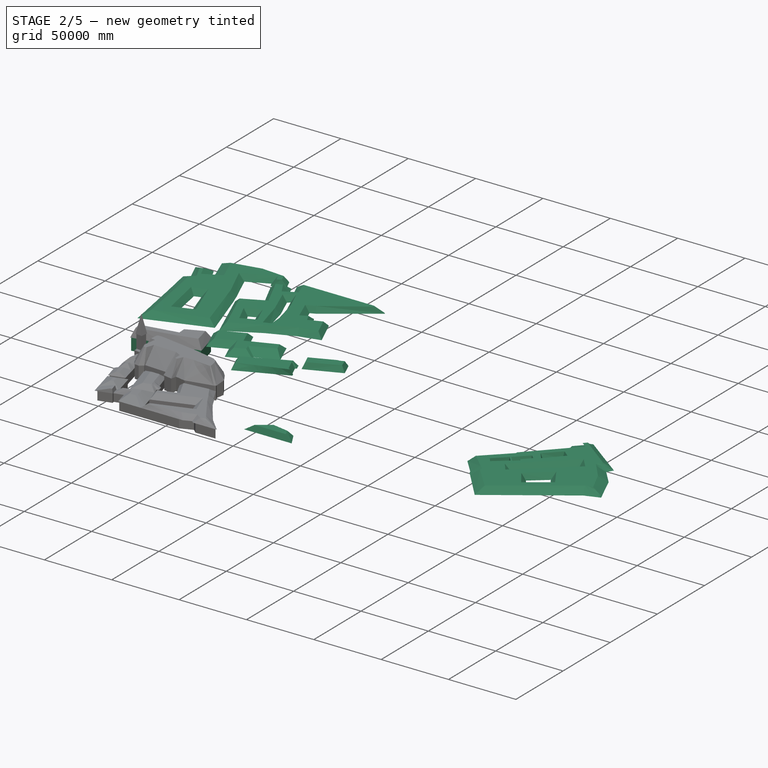
[diagram: stage 2 of 5 — iso view after this stage's code; geometry added in this stage tinted green]
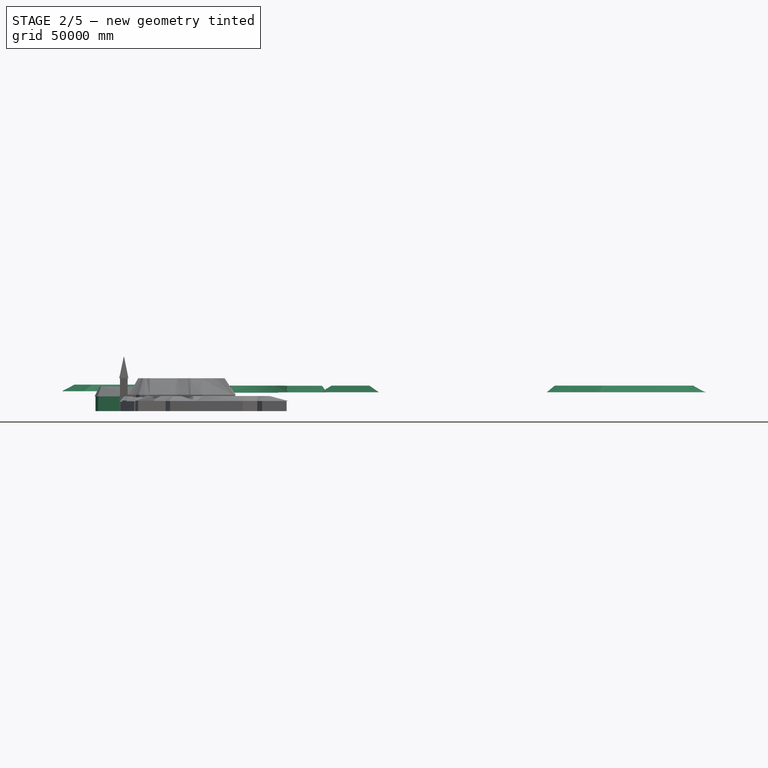
[diagram: stage 2 of 5 — front view after this stage's code; geometry added in this stage tinted green]
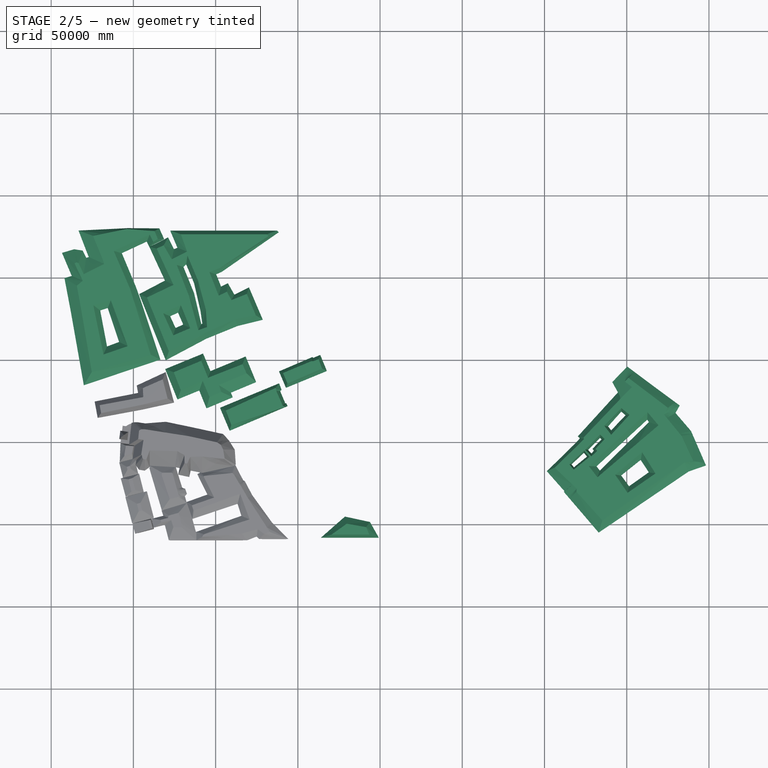
[diagram: stage 2 of 5 — top view after this stage's code; geometry added in this stage tinted green]
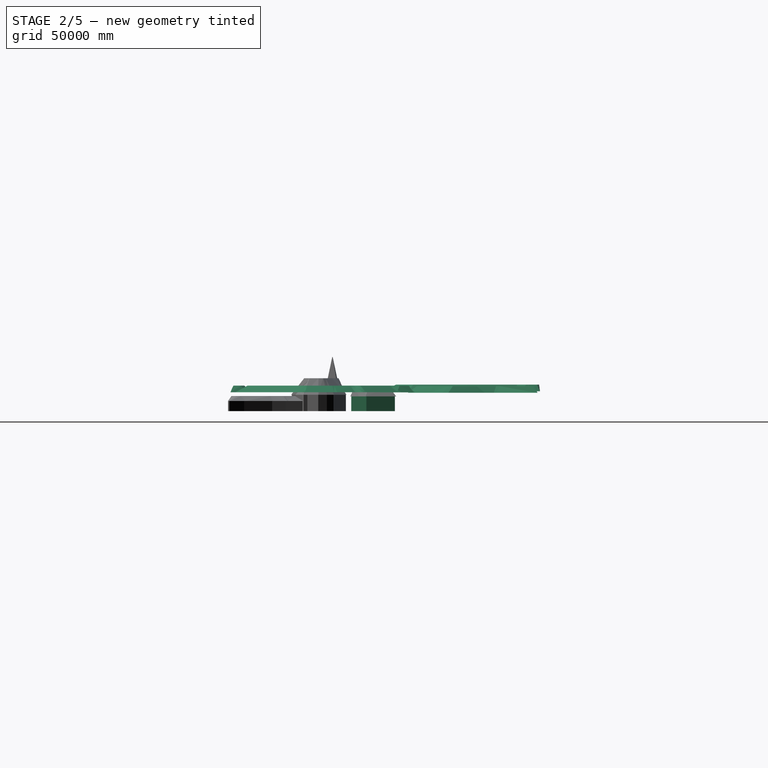
[diagram: stage 2 of 5 — right view after this stage's code; geometry added in this stage tinted green]
FEATURE [PartDesign::Body] Body052  label="Dach18"
  AllowCompound = false
  Group = -> [Sketch074,Sketch075,AdditiveLoft025,Boolean001]
  Origin = -> Origin052
  Tip = -> Boolean001
FEATURE [Sketcher::SketchObject] Sketch078
  ArcFitTolerance = 1e-06
  AttachmentOffset = pos=(0,0,11200) rot=(0,0,1;0rad)
  AttachmentSupport = -> [XY_Plane055]
  FullyConstrained = true
  MakeInternals = false
  MapMode = 5
  Placement = pos=(0,0,11200) rot=(0,0,1;0rad)
  sketch-geometry (19):
    g0: LineSegment StartX=-71293.1 StartY=24361.2 StartZ=0 EndX=-86580.6 EndY=20607.2 EndZ=0
    g1: LineSegment StartX=-86580.6 StartY=20607.2 StartZ=0 EndX=-105640 EndY=12856.2 EndZ=0
    g2: LineSegment StartX=-105640 StartY=12856.2 StartZ=0 EndX=-130339 EndY=-253.921 EndZ=0
    g3: LineSegment StartX=-130339 StartY=-253.921 StartZ=0 EndX=-146478 EndY=39993.6 EndZ=0
    g4: LineSegment StartX=-146478 StartY=39993.6 StartZ=0 EndX=-130814 EndY=48208.8 EndZ=0
    g5: LineSegment StartX=-130814 StartY=48208.8 StartZ=0 EndX=-140275 EndY=68647.2 EndZ=0
    g6: LineSegment StartX=-140275 StartY=68647.2 StartZ=0 EndX=-128875 EndY=74503.9 EndZ=0
    g7: LineSegment StartX=-128875 StartY=74503.9 StartZ=0 EndX=-125304 EndY=67331.7 EndZ=0
    g8: LineSegment StartX=-125304 StartY=67331.7 StartZ=0 EndX=-123237 EndY=68208.7 EndZ=0
    g9: LineSegment StartX=-123237 StartY=68208.7 StartZ=0 EndX=-127653 EndY=78616.5 EndZ=0
    g10: LineSegment StartX=-127653 StartY=78616.5 StartZ=0 EndX=-62613.6 EndY=78616.5 EndZ=0
    g11: LineSegment StartX=-62613.6 StartY=78616.5 StartZ=0 EndX=-61594 EndY=77588.9 EndZ=0
    g12: LineSegment StartX=-61594 StartY=77588.9 StartZ=0 EndX=-96343.4 EndY=53463.8 EndZ=0
    g13: LineSegment StartX=-96343.4 StartY=53463.8 StartZ=0 EndX=-99681.4 EndY=52023.7 EndZ=0
    g14: LineSegment StartX=-99681.4 StartY=52023.7 StartZ=0 EndX=-96701.7 EndY=44561.6 EndZ=0
    g15: LineSegment StartX=-96701.7 StartY=44561.6 StartZ=0 EndX=-92566.9 EndY=46614.8 EndZ=0
    g16: LineSegment StartX=-92566.9 StartY=46614.8 StartZ=0 EndX=-88585.4 EndY=39653.2 EndZ=0
    g17: LineSegment StartX=-88585.4 StartY=39653.2 StartZ=0 EndX=-79722 EndY=44069.2 EndZ=0
    g18: LineSegment StartX=-79722 StartY=44069.2 StartZ=0 EndX=-71293.1 EndY=24361.2 EndZ=0
  constraints (39):
    c: Coincident(g0,g1)
    c: Coincident(g1,g2)
    c: Coincident(g2,g3)
    c: Coincident(g3,g4)
    c: Coincident(g4,g5)
    c: Coincident(g5,g6)
    c: Coincident(g6,g7)
    c: Coincident(g7,g8)
    c: Coincident(g8,g9)
    c: Coincident(g9,g10)
    c: Horizontal(g10)
    c: Coincident(g10,g11)
    c: Coincident(g11,g12)
    c: Coincident(g12,g13)
    c: Coincident(g13,g14)
    c: Coincident(g14,g15)
    c: Coincident(g15,g16)
    c: Coincident(g16,g17)
    c: Coincident(g17,g18)
    c: Coincident(g18,g0)
    c: Block(g0)
    c: Block(g1)
    c: Block(g2)
    c: Block(g3)
    c: Block(g4)
    c: Block(g5)
    c: Block(g6)
    c: Block(g7)
    c: Block(g8)
    c: Block(g9)
    c: Block(g10)
    c: Block(g11)
    c: Block(g12)
    c: Block(g13)
    c: Block(g14)
    c: Block(g15)
    c: Block(g16)
    c: Block(g17)
    c: Block(g18)
FEATURE [Sketcher::SketchObject] Sketch079
  ArcFitTolerance = 1e-06
  AttachmentOffset = pos=(0,0,15200) rot=(0,0,1;0rad)
  AttachmentSupport = -> [XY_Plane055]
  FullyConstrained = true
  MakeInternals = false
  MapMode = 5
  Placement = pos=(0,0,15200) rot=(0,0,1;0rad)
  sketch-geometry (19):
    g0: LineSegment StartX=-75564.7 StartY=27068.7 StartZ=0 EndX=-88079.6 EndY=24599.8 EndZ=0
    g1: LineSegment StartX=-88079.6 StartY=24599.8 StartZ=0 EndX=-106980 EndY=16001.1 EndZ=0
    g2: LineSegment StartX=-106980 StartY=16001.1 StartZ=0 EndX=-128451 EndY=5168.33 EndZ=0
    g3: LineSegment StartX=-128451 StartY=5168.33 StartZ=0 EndX=-141732 EndY=37890.4 EndZ=0
    g4: LineSegment StartX=-141732 StartY=37890.4 StartZ=0 EndX=-125641 EndY=45552.5 EndZ=0
    g5: LineSegment StartX=-125641 StartY=45552.5 StartZ=0 EndX=-135858 EndY=67630.2 EndZ=0
    g6: LineSegment StartX=-135858 StartY=67630.2 StartZ=0 EndX=-131601 EndY=69588.3 EndZ=0
    g7: LineSegment StartX=-131601 StartY=69588.3 StartZ=0 EndX=-126664 EndY=61074.8 EndZ=0
    g8: LineSegment StartX=-126664 StartY=61074.8 StartZ=0 EndX=-117384 EndY=65842.3 EndZ=0
    g9: LineSegment StartX=-117384 StartY=65842.3 StartZ=0 EndX=-121130 EndY=76313.9 EndZ=0
    g10: LineSegment StartX=-121130 StartY=76313.9 StartZ=0 EndX=-68856.9 EndY=76313.9 EndZ=0
    g11: LineSegment StartX=-68856.9 StartY=76313.9 StartZ=0 EndX=-67835.3 EndY=75207.2 EndZ=0
    g12: LineSegment StartX=-67835.3 StartY=75207.2 StartZ=0 EndX=-97802.8 EndY=55626.1 EndZ=0
    g13: LineSegment StartX=-97802.8 StartY=55626.1 StartZ=0 EndX=-103762 EndY=53327.5 EndZ=0
    g14: LineSegment StartX=-103762 StartY=53327.5 StartZ=0 EndX=-98137.7 EndY=39002.5 EndZ=0
    g15: LineSegment StartX=-98137.7 StartY=39002.5 StartZ=0 EndX=-93114.7 EndY=41386.2 EndZ=0
    g16: LineSegment StartX=-93114.7 StartY=41386.2 StartZ=0 EndX=-90390.4 EndY=36278.1 EndZ=0
    g17: LineSegment StartX=-90390.4 StartY=36278.1 StartZ=0 EndX=-81025.5 EndY=40024.1 EndZ=0
    g18: LineSegment StartX=-81025.5 StartY=40024.1 StartZ=0 EndX=-75564.7 EndY=27068.7 EndZ=0
  constraints (39):
    c: Coincident(g0,g1)
    c: Coincident(g1,g2)
    c: Coincident(g2,g3)
    c: Coincident(g3,g4)
    c: Coincident(g4,g5)
    c: Coincident(g5,g6)
    c: Coincident(g6,g7)
    c: Coincident(g7,g8)
    c: Coincident(g8,g9)
    c: Coincident(g9,g10)
    c: Horizontal(g10)
    c: Coincident(g10,g11)
    c: Coincident(g11,g12)
    c: Coincident(g12,g13)
    c: Coincident(g13,g14)
    c: Coincident(g14,g15)
    c: Coincident(g15,g16)
    c: Coincident(g16,g17)
    c: Coincident(g17,g18)
    c: Coincident(g18,g0)
    c: Block(g0)
    c: Block(g1)
    c: Block(g2)
    c: Block(g3)
    c: Block(g4)
    c: Block(g5)
    c: Block(g6)
    c: Block(g7)
    c: Block(g8)
    c: Block(g9)
    c: Block(g10)
    c: Block(g11)
    c: Block(g12)
    c: Block(g13)
    c: Block(g14)
    c: Block(g15)
    c: Block(g16)
    c: Block(g17)
    c: Block(g18)
FEATURE [PartDesign::AdditiveLoft] AdditiveLoft027
  Closed = true
  Profile = -> Sketch079
  Refine = true
  Ruled = true
  Sections = -> [Sketch078]
  Suppressed = false
FEATURE [Sketcher::SketchObject] Sketch080
  ArcFitTolerance = 1e-06
  AttachmentOffset = pos=(0,0,11200) rot=(0,0,1;0rad)
  AttachmentSupport = -> [XY_Plane056]
  FullyConstrained = true
  MakeInternals = false
  MapMode = 5
  Placement = pos=(0,0,11200) rot=(0,0,1;0rad)
  sketch-geometry (4):
    g0: LineSegment StartX=-127639 StartY=26527.4 StartZ=0 EndX=-122845 EndY=28696 EndZ=0
    g1: LineSegment StartX=-122845 StartY=28696 StartZ=0 EndX=-119707 EndY=21448.4 EndZ=0
    g2: LineSegment StartX=-119707 StartY=21448.4 StartZ=0 EndX=-124386 EndY=19393.9 EndZ=0
    g3: LineSegment StartX=-124386 StartY=19393.9 StartZ=0 EndX=-127639 EndY=26527.4 EndZ=0
  constraints (8):
    c: Coincident(g0,g1)
    c: Coincident(g1,g2)
    c: Coincident(g2,g3)
    c: Coincident(g3,g0)
    c: Block(g0)
    c: Block(g1)
    c: Block(g2)
    c: Block(g3)
FEATURE [Sketcher::SketchObject] Sketch081
  ArcFitTolerance = 1e-06
  AttachmentOffset = pos=(0,0,15200) rot=(0,0,1;0rad)
  AttachmentSupport = -> [XY_Plane056]
  FullyConstrained = true
  MakeInternals = false
  MapMode = 5
  Placement = pos=(0,0,15200) rot=(0,0,1;0rad)
  sketch-geometry (4):
    g0: LineSegment StartX=-131892 StartY=28273.8 StartZ=0 EndX=-121182 EndY=33265 EndZ=0
    g1: LineSegment StartX=-121182 StartY=33265 StartZ=0 EndX=-115463 EndY=19227.1 EndZ=0
    g2: LineSegment StartX=-115463 StartY=19227.1 StartZ=0 EndX=-125757 EndY=14859.8 EndZ=0
    g3: LineSegment StartX=-125757 StartY=14859.8 StartZ=0 EndX=-131892 EndY=28273.8 EndZ=0
  constraints (8):
    c: Coincident(g0,g1)
    c: Coincident(g1,g2)
    c: Coincident(g2,g3)
    c: Coincident(g3,g0)
    c: Block(g0)
    c: Block(g1)
    c: Block(g2)
    c: Block(g3)
FEATURE [PartDesign::AdditiveLoft] AdditiveLoft028
  Closed = true
  Profile = -> Sketch081
  Refine = true
  Ruled = true
  Sections = -> [Sketch080]
  Suppressed = false
FEATURE [PartDesign::Body] Body055  label="Dach22_2"
  AllowCompound = false
  Group = -> [Sketch080,Sketch081,AdditiveLoft028]
  Origin = -> Origin055
  Tip = -> AdditiveLoft028
FEATURE [Sketcher::SketchObject] Sketch082
  ArcFitTolerance = 1e-06
  AttachmentOffset = pos=(0,0,11200) rot=(0,0,1;0rad)
  AttachmentSupport = -> [XY_Plane057]
  FullyConstrained = true
  MakeInternals = false
  MapMode = 5
  Placement = pos=(0,0,11200) rot=(0,0,1;0rad)
  sketch-geometry (7):
    g0: LineSegment StartX=-108701 StartY=21706.5 StartZ=0 EndX=-108073 EndY=21915.6 EndZ=0
    g1: LineSegment StartX=-108073 StartY=21915.6 StartZ=0 EndX=-109189 EndY=29652.6 EndZ=0
    g2: LineSegment StartX=-109189 StartY=29652.6 StartZ=0 EndX=-113092 EndY=46590.3 EndZ=0
    g3: LineSegment StartX=-113092 StartY=46590.3 StartZ=0 EndX=-117902 EndY=58029.1 EndZ=0
    g4: LineSegment StartX=-117902 StartY=58029.1 StartZ=0 EndX=-119575 EndY=56495.6 EndZ=0
    g5: LineSegment StartX=-119575 StartY=56495.6 StartZ=0 EndX=-113092 EndY=40533.7 EndZ=0
    g6: LineSegment StartX=-113092 StartY=40533.7 StartZ=0 EndX=-108701 EndY=21706.5 EndZ=0
  constraints (14):
    c: Coincident(g0,g1)
    c: Coincident(g1,g2)
    c: Coincident(g2,g3)
    c: Coincident(g3,g4)
    c: Coincident(g4,g5)
    c: Coincident(g5,g6)
    c: Coincident(g6,g0)
    c: Block(g0)
    c: Block(g1)
    c: Block(g2)
    c: Block(g3)
    c: Block(g4)
    c: Block(g5)
    c: Block(g6)
FEATURE [Sketcher::SketchObject] Sketch083
  ArcFitTolerance = 1e-06
  AttachmentOffset = pos=(0,0,15200) rot=(0,0,1;0rad)
  AttachmentSupport = -> [XY_Plane057]
  FullyConstrained = true
  MakeInternals = false
  MapMode = 5
  Placement = pos=(0,0,15200) rot=(0,0,1;0rad)
  sketch-geometry (7):
    g0: LineSegment StartX=-123612 StartY=57622.6 StartZ=0 EndX=-117134 EndY=63337.9 EndZ=0
    g1: LineSegment StartX=-117134 StartY=63337.9 StartZ=0 EndX=-110657 EndY=47970.1 EndZ=0
    g2: LineSegment StartX=-110657 StartY=47970.1 StartZ=0 EndX=-105958 EndY=30570.2 EndZ=0
    g3: LineSegment StartX=-105958 StartY=30570.2 StartZ=0 EndX=-105196 EndY=19901.7 EndZ=0
    g4: LineSegment StartX=-105196 StartY=19901.7 StartZ=0 EndX=-110530 EndY=17996.6 EndZ=0
    g5: LineSegment StartX=-110530 StartY=17996.6 StartZ=0 EndX=-116245 EndY=38952.7 EndZ=0
    g6: LineSegment StartX=-116245 StartY=38952.7 StartZ=0 EndX=-123612 EndY=57622.6 EndZ=0
  constraints (14):
    c: Coincident(g0,g1)
    c: Coincident(g1,g2)
    c: Coincident(g2,g3)
    c: Coincident(g3,g4)
    c: Coincident(g4,g5)
    c: Coincident(g5,g6)
    c: Coincident(g6,g0)
    c: Block(g0)
    c: Block(g1)
    c: Block(g2)
    c: Block(g3)
    c: Block(g4)
    c: Block(g5)
    c: Block(g6)
FEATURE [PartDesign::AdditiveLoft] AdditiveLoft029
  Closed = true
  Profile = -> Sketch082
  Refine = true
  Ruled = true
  Sections = -> [Sketch083]
  Suppressed = false
FEATURE [PartDesign::Body] Body056  label="Dach22_3"
  AllowCompound = false
  Group = -> [Sketch082,Sketch083,AdditiveLoft029]
  Origin = -> Origin056
  Tip = -> AdditiveLoft029
FEATURE [PartDesign::Boolean] Boolean002
  BaseFeature = -> AdditiveLoft027
  Group = -> [Body055,Body056]
  Refine = true
  Suppressed = false
  Type = 1
  UsePlacement = true
FEATURE [PartDesign::Body] Body054  label="Dach22"
  AllowCompound = false
  Group = -> [Sketch078,Sketch079,AdditiveLoft027,Boolean002]
  Origin = -> Origin054
  Tip = -> Boolean002
FEATURE [Sketcher::SketchObject] Sketch084
  ArcFitTolerance = 1e-06
  AttachmentOffset = pos=(0,0,11500) rot=(0,0,1;0rad)
  AttachmentSupport = -> [XY_Plane058]
  FullyConstrained = true
  MakeInternals = false
  MapMode = 5
  Placement = pos=(0,0,11500) rot=(0,0,1;0rad)
  sketch-geometry (17):
    g0: LineSegment StartX=132962 StartY=-105085 StartZ=0 EndX=111731 EndY=-80282.4 EndZ=0
    g1: LineSegment StartX=111731 StartY=-80282.4 StartZ=0 EndX=112130 EndY=-79883 EndZ=0
    g2: LineSegment StartX=112130 StartY=-79883 StartZ=0 EndX=101413 EndY=-67766.3 EndZ=0
    g3: LineSegment StartX=101413 StartY=-67766.3 StartZ=0 EndX=119096 EndY=-50448.9 EndZ=0
    g4: LineSegment StartX=119096 StartY=-50448.9 StartZ=0 EndX=121553 EndY=-47682.1 EndZ=0
    g5: LineSegment StartX=121553 StartY=-47682.1 StartZ=0 EndX=120270 EndY=-46531.3 EndZ=0
    g6: LineSegment StartX=120270 StartY=-46531.3 StartZ=0 EndX=145648 EndY=-18702.2 EndZ=0
    g7: LineSegment StartX=145648 StartY=-18702.2 StartZ=0 EndX=146859 EndY=-17292.4 EndZ=0
    g8: LineSegment StartX=146859 StartY=-17292.4 StartZ=0 EndX=141213 EndY=-13528.5 EndZ=0
    g9: LineSegment StartX=141213 StartY=-13528.5 StartZ=0 EndX=150318 EndY=-4064.67 EndZ=0
    g10: LineSegment StartX=150318 StartY=-4064.67 StartZ=0 EndX=165863 EndY=-15687.1 EndZ=0
    g11: LineSegment StartX=165863 StartY=-15687.1 StartZ=0 EndX=182242 EndY=-27763.6 EndZ=0
    g12: LineSegment StartX=182242 StartY=-27763.6 StartZ=0 EndX=179659 EndY=-32297.9 EndZ=0
    g13: LineSegment StartX=179659 StartY=-32297.9 StartZ=0 EndX=189110 EndY=-43293.9 EndZ=0
    g14: LineSegment StartX=189110 StartY=-43293.9 StartZ=0 EndX=198220 EndY=-64253.1 EndZ=0
    g15: LineSegment StartX=198220 StartY=-64253.1 StartZ=0 EndX=187663 EndY=-67913.9 EndZ=0
    g16: LineSegment StartX=187663 StartY=-67913.9 StartZ=0 EndX=132962 EndY=-105085 EndZ=0
  constraints (34):
    c: Coincident(g0,g1)
    c: Coincident(g1,g2)
    c: Coincident(g2,g3)
    c: Coincident(g3,g4)
    c: Coincident(g4,g5)
    c: Coincident(g5,g6)
    c: Coincident(g6,g7)
    c: Coincident(g7,g8)
    c: Coincident(g8,g9)
    c: Coincident(g9,g10)
    c: Coincident(g10,g11)
    c: Coincident(g11,g12)
    c: Coincident(g12,g13)
    c: Coincident(g13,g14)
    c: Coincident(g14,g15)
    c: Coincident(g15,g16)
    c: Coincident(g16,g0)
    c: Block(g0)
    c: Block(g1)
    c: Block(g2)
    c: Block(g3)
    c: Block(g4)
    c: Block(g5)
    c: Block(g6)
    c: Block(g7)
    c: Block(g8)
    c: Block(g9)
    c: Block(g10)
    c: Block(g11)
    c: Block(g12)
    c: Block(g13)
    c: Block(g14)
    c: Block(g15)
    c: Block(g16)
FEATURE [Sketcher::SketchObject] Sketch085
  ArcFitTolerance = 1e-06
  AttachmentOffset = pos=(0,0,15500) rot=(0,0,1;0rad)
  AttachmentSupport = -> [XY_Plane058]
  FullyConstrained = true
  MakeInternals = false
  MapMode = 5
  Placement = pos=(0,0,15500) rot=(0,0,1;0rad)
  sketch-geometry (15):
    g0: LineSegment StartX=106191 StartY=-65629.4 StartZ=0 EndX=123972 EndY=-48346.7 EndZ=0
    g1: LineSegment StartX=123972 StartY=-48346.7 StartZ=0 EndX=123843 EndY=-47219 EndZ=0
    g2: LineSegment StartX=123843 StartY=-47219 StartZ=0 EndX=148623 EndY=-21186.9 EndZ=0
    g3: LineSegment StartX=148623 StartY=-21186.9 StartZ=0 EndX=153198 EndY=-16611.6 EndZ=0
    g4: LineSegment StartX=153198 StartY=-16611.6 StartZ=0 EndX=148830 EndY=-13284.1 EndZ=0
    g5: LineSegment StartX=148830 StartY=-13284.1 StartZ=0 EndX=151014 EndY=-10996.5 EndZ=0
    g6: LineSegment StartX=151014 StartY=-10996.5 StartZ=0 EndX=175034 EndY=-29193.7 EndZ=0
    g7: LineSegment StartX=175034 StartY=-29193.7 StartZ=0 EndX=172643 EndY=-33249.1 EndZ=0
    g8: LineSegment StartX=172643 StartY=-33249.1 StartZ=0 EndX=183353 EndY=-46351.1 EndZ=0
    g9: LineSegment StartX=183353 StartY=-46351.1 StartZ=0 EndX=190424 EndY=-61532.8 EndZ=0
    g10: LineSegment StartX=190424 StartY=-61532.8 StartZ=0 EndX=185125 EndY=-62494.5 EndZ=0
    g11: LineSegment StartX=185125 StartY=-62494.5 StartZ=0 EndX=135200 EndY=-97760.7 EndZ=0
    g12: LineSegment StartX=135200 StartY=-97760.7 StartZ=0 EndX=119395 EndY=-80187.4 EndZ=0
    g13: LineSegment StartX=119395 StartY=-80187.4 StartZ=0 EndX=119603 EndY=-78419.7 EndZ=0
    g14: LineSegment StartX=119603 StartY=-78419.7 StartZ=0 EndX=106191 EndY=-65629.4 EndZ=0
  constraints (30):
    c: Coincident(g0,g1)
    c: Coincident(g1,g2)
    c: Coincident(g2,g3)
    c: Coincident(g3,g4)
    c: Coincident(g4,g5)
    c: Coincident(g5,g6)
    c: Coincident(g6,g7)
    c: Coincident(g7,g8)
    c: Coincident(g8,g9)
    c: Coincident(g9,g10)
    c: Coincident(g10,g11)
    c: Coincident(g11,g12)
    c: Coincident(g12,g13)
    c: Coincident(g13,g14)
    c: Coincident(g14,g0)
    c: Block(g0)
    c: Block(g1)
    c: Block(g2)
    c: Block(g3)
    c: Block(g4)
    c: Block(g5)
    c: Block(g6)
    c: Block(g7)
    c: Block(g8)
    c: Block(g9)
    c: Block(g10)
    c: Block(g11)
    c: Block(g12)
    c: Block(g13)
    c: Block(g14)
FEATURE [PartDesign::AdditiveLoft] AdditiveLoft030
  Closed = true
  Profile = -> Sketch085
  Refine = true
  Ruled = true
  Sections = -> [Sketch084]
  Suppressed = false
FEATURE [Sketcher::SketchObject] Sketch086
  ArcFitTolerance = 1e-06
  AttachmentOffset = pos=(0,0,11500) rot=(0,0,1;0rad)
  AttachmentSupport = -> [XY_Plane059]
  FullyConstrained = true
  MakeInternals = false
  MapMode = 5
  Placement = pos=(0,0,11500) rot=(0,0,1;0rad)
  sketch-geometry (4):
    g0: LineSegment StartX=146632 StartY=-70335.6 StartZ=0 EndX=158465 EndY=-60869.6 EndZ=0
    g1: LineSegment StartX=158465 StartY=-60869.6 StartZ=0 EndX=163413 EndY=-68397.5 EndZ=0
    g2: LineSegment StartX=163413 StartY=-68397.5 StartZ=0 EndX=151425 EndY=-76901.2 EndZ=0
    g3: LineSegment StartX=151425 StartY=-76901.2 StartZ=0 EndX=146632 EndY=-70335.6 EndZ=0
  constraints (8):
    c: Coincident(g0,g1)
    c: Coincident(g1,g2)
    c: Coincident(g2,g3)
    c: Coincident(g3,g0)
    c: Block(g0)
    c: Block(g1)
    c: Block(g2)
    c: Block(g3)
FEATURE [Sketcher::SketchObject] Sketch087
  ArcFitTolerance = 1e-06
  AttachmentOffset = pos=(0,0,15500) rot=(0,0,1;0rad)
  AttachmentSupport = -> [XY_Plane059]
  FullyConstrained = true
  MakeInternals = false
  MapMode = 5
  Placement = pos=(0,0,15500) rot=(0,0,1;0rad)
  sketch-geometry (4):
    g0: LineSegment StartX=142933 StartY=-69899.3 StartZ=0 EndX=159363 EndY=-56277.3 EndZ=0
    g1: LineSegment StartX=159363 StartY=-56277.3 StartZ=0 EndX=167474 EndY=-69171.4 EndZ=0
    g2: LineSegment StartX=167474 StartY=-69171.4 StartZ=0 EndX=150524 EndY=-80921.6 EndZ=0
    g3: LineSegment StartX=150524 StartY=-80921.6 StartZ=0 EndX=142933 EndY=-69899.3 EndZ=0
  constraints (8):
    c: Coincident(g0,g1)
    c: Coincident(g1,g2)
    c: Coincident(g2,g3)
    c: Coincident(g3,g0)
    c: Block(g0)
    c: Block(g1)
    c: Block(g2)
    c: Block(g3)
FEATURE [PartDesign::AdditiveLoft] AdditiveLoft031
  Closed = true
  Profile = -> Sketch086
  Refine = true
  Ruled = true
  Sections = -> [Sketch087]
  Suppressed = false
FEATURE [PartDesign::Body] Body058  label="Dach25_1"
  AllowCompound = false
  Group = -> [Sketch086,Sketch087,AdditiveLoft031]
  Origin = -> Origin058
  Tip = -> AdditiveLoft031
FEATURE [Sketcher::SketchObject] Sketch088
  ArcFitTolerance = 1e-06
  AttachmentOffset = pos=(0,0,11500) rot=(0,0,1;0rad)
  AttachmentSupport = -> [XY_Plane060]
  FullyConstrained = true
  MakeInternals = false
  MapMode = 5
  Placement = pos=(0,0,11500) rot=(0,0,1;0rad)
  sketch-geometry (4):
    g0: LineSegment StartX=131616 StartY=-64793.8 StartZ=0 EndX=162425 EndY=-36431.5 EndZ=0
    g1: LineSegment StartX=162425 StartY=-36431.5 StartZ=0 EndX=163531 EndY=-37793.6 EndZ=0
    g2: LineSegment StartX=163531 StartY=-37793.6 StartZ=0 EndX=133649 EndY=-67335.5 EndZ=0
    g3: LineSegment StartX=133649 StartY=-67335.5 StartZ=0 EndX=131616 EndY=-64793.8 EndZ=0
  constraints (8):
    c: Coincident(g0,g1)
    c: Coincident(g1,g2)
    c: Coincident(g2,g3)
    c: Coincident(g3,g0)
    c: Block(g0)
    c: Block(g1)
    c: Block(g2)
    c: Block(g3)
FEATURE [Sketcher::SketchObject] Sketch089
  ArcFitTolerance = 1e-06
  AttachmentOffset = pos=(0,0,15500) rot=(0,0,1;0rad)
  AttachmentSupport = -> [XY_Plane060]
  FullyConstrained = true
  MakeInternals = false
  MapMode = 5
  Placement = pos=(0,0,15500) rot=(0,0,1;0rad)
  sketch-geometry (4):
    g0: LineSegment StartX=126999 StartY=-64709.3 StartZ=0 EndX=162666 EndY=-31954.3 EndZ=0
    g1: LineSegment StartX=162666 StartY=-31954.3 StartZ=0 EndX=169321 EndY=-39857.1 EndZ=0
    g2: LineSegment StartX=169321 StartY=-39857.1 StartZ=0 EndX=132198 EndY=-71468.3 EndZ=0
    g3: LineSegment StartX=132198 StartY=-71468.3 StartZ=0 EndX=126999 EndY=-64709.3 EndZ=0
  constraints (8):
    c: Coincident(g0,g1)
    c: Coincident(g1,g2)
    c: Coincident(g2,g3)
    c: Coincident(g3,g0)
    c: Block(g0)
    c: Block(g1)
    c: Block(g2)
    c: Block(g3)
FEATURE [PartDesign::AdditiveLoft] AdditiveLoft032
  Closed = true
  Profile = -> Sketch088
  Refine = true
  Ruled = true
  Sections = -> [Sketch089]
  Suppressed = false
FEATURE [PartDesign::Body] Body059  label="Dach25_2"
  AllowCompound = false
  Group = -> [Sketch088,Sketch089,AdditiveLoft032]
  Origin = -> Origin059
  Tip = -> AdditiveLoft032
FEATURE [Sketcher::SketchObject] Sketch090
  ArcFitTolerance = 1e-06
  AttachmentOffset = pos=(0,0,11500) rot=(0,0,1;0rad)
  AttachmentSupport = -> [XY_Plane061]
  FullyConstrained = true
  MakeInternals = false
  MapMode = 5
  Placement = pos=(0,0,11500) rot=(0,0,1;0rad)
  sketch-geometry (4):
    g0: LineSegment StartX=116411 StartY=-63630.9 StartZ=0 EndX=123947 EndY=-56592.2 EndZ=0
    g1: LineSegment StartX=123947 StartY=-56592.2 StartZ=0 EndX=125898 EndY=-58810.9 EndZ=0
    g2: LineSegment StartX=125898 StartY=-58810.9 StartZ=0 EndX=117903 EndY=-65352.3 EndZ=0
    g3: LineSegment StartX=117903 StartY=-65352.3 StartZ=0 EndX=116411 EndY=-63630.9 EndZ=0
  constraints (8):
    c: Coincident(g0,g1)
    c: Coincident(g1,g2)
    c: Coincident(g2,g3)
    c: Coincident(g3,g0)
    c: Block(g0)
    c: Block(g1)
    c: Block(g2)
    c: Block(g3)
FEATURE [Sketcher::SketchObject] Sketch091
  ArcFitTolerance = 1e-06
  AttachmentOffset = pos=(0,0,15500) rot=(0,0,1;0rad)
  AttachmentSupport = -> [XY_Plane061]
  FullyConstrained = true
  MakeInternals = false
  MapMode = 5
  Placement = pos=(0,0,15500) rot=(0,0,1;0rad)
  sketch-geometry (4):
    g0: LineSegment StartX=124019 StartY=-55245.6 StartZ=0 EndX=127370 EndY=-59066.6 EndZ=0
    g1: LineSegment StartX=127370 StartY=-59066.6 StartZ=0 EndX=117817 EndY=-66802.5 EndZ=0
    g2: LineSegment StartX=117817 StartY=-66802.5 StartZ=0 EndX=115155 EndY=-63639.2 EndZ=0
    g3: LineSegment StartX=115155 StartY=-63639.2 StartZ=0 EndX=124019 EndY=-55245.6 EndZ=0
  constraints (8):
    c: Coincident(g0,g1)
    c: Coincident(g1,g2)
    c: Coincident(g2,g3)
    c: Coincident(g3,g0)
    c: Block(g0)
    c: Block(g1)
    c: Block(g2)
    c: Block(g3)
FEATURE [PartDesign::AdditiveLoft] AdditiveLoft033
  Closed = true
  Profile = -> Sketch090
  Refine = true
  Ruled = true
  Sections = -> [Sketch091]
  Suppressed = false
FEATURE [PartDesign::Body] Body060  label="Dach25_3"
  AllowCompound = false
  Group = -> [Sketch090,Sketch091,AdditiveLoft033]
  Origin = -> Origin060
  Tip = -> AdditiveLoft033
FEATURE [Sketcher::SketchObject] Sketch092
  ArcFitTolerance = 1e-06
  AttachmentOffset = pos=(0,0,11500) rot=(0,0,1;0rad)
  AttachmentSupport = -> [XY_Plane062]
  FullyConstrained = true
  MakeInternals = false
  MapMode = 5
  Placement = pos=(0,0,11500) rot=(0,0,1;0rad)
  sketch-geometry (6):
    g0: LineSegment StartX=128481 StartY=-56950.1 StartZ=0 EndX=126539 EndY=-54757.8 EndZ=0
    g1: LineSegment StartX=126539 StartY=-54757.8 StartZ=0 EndX=133774 EndY=-47460.3 EndZ=0
    g2: LineSegment StartX=133774 StartY=-47460.3 StartZ=0 EndX=134714 EndY=-48337.3 EndZ=0
    g3: LineSegment StartX=134714 StartY=-48337.3 StartZ=0 EndX=129215 EndY=-54123.6 EndZ=0
    g4: LineSegment StartX=129215 StartY=-54123.6 StartZ=0 EndX=130030 EndY=-55317.5 EndZ=0
    g5: LineSegment StartX=130030 StartY=-55317.5 StartZ=0 EndX=128481 EndY=-56950.1 EndZ=0
  constraints (12):
    c: Coincident(g0,g1)
    c: Coincident(g1,g2)
    c: Coincident(g2,g3)
    c: Coincident(g3,g4)
    c: Coincident(g4,g5)
    c: Coincident(g5,g0)
    c: Block(g0)
    c: Block(g1)
    c: Block(g2)
    c: Block(g3)
    c: Block(g4)
    c: Block(g5)
FEATURE [Sketcher::SketchObject] Sketch093
  ArcFitTolerance = 1e-06
  AttachmentOffset = pos=(0,0,15500) rot=(0,0,1;0rad)
  AttachmentSupport = -> [XY_Plane062]
  FullyConstrained = true
  MakeInternals = false
  MapMode = 5
  Placement = pos=(0,0,15500) rot=(0,0,1;0rad)
  sketch-geometry (6):
    g0: LineSegment StartX=133841 StartY=-45506.5 StartZ=0 EndX=136598 EndY=-48216.4 EndZ=0
    g1: LineSegment StartX=136598 StartY=-48216.4 StartZ=0 EndX=131038 EndY=-54197 EndZ=0
    g2: LineSegment StartX=131038 StartY=-54197 StartZ=0 EndX=132019 EndY=-55505.2 EndZ=0
    g3: LineSegment StartX=132019 StartY=-55505.2 StartZ=0 EndX=128506 EndY=-58698 EndZ=0
    g4: LineSegment StartX=128506 StartY=-58698 StartZ=0 EndX=124768 EndY=-54633 EndZ=0
    g5: LineSegment StartX=124768 StartY=-54633 StartZ=0 EndX=133841 EndY=-45506.5 EndZ=0
  constraints (12):
    c: Coincident(g0,g1)
    c: Coincident(g1,g2)
    c: Coincident(g2,g3)
    c: Coincident(g3,g4)
    c: Coincident(g4,g5)
    c: Coincident(g5,g0)
    c: Block(g0)
    c: Block(g1)
    c: Block(g2)
    c: Block(g3)
    c: Block(g4)
    c: Block(g5)
FEATURE [PartDesign::AdditiveLoft] AdditiveLoft034
  Closed = true
  Profile = -> Sketch093
  Refine = true
  Ruled = true
  Sections = -> [Sketch092]
  Suppressed = false
FEATURE [PartDesign::Body] Body061  label="Dach25_4"
  AllowCompound = false
  Group = -> [Sketch092,Sketch093,AdditiveLoft034]
  Origin = -> Origin061
  Tip = -> AdditiveLoft034
FEATURE [Sketcher::SketchObject] Sketch094
  ArcFitTolerance = 1e-06
  AttachmentOffset = pos=(0,0,11500) rot=(0,0,1;0rad)
  AttachmentSupport = -> [XY_Plane063]
  FullyConstrained = true
  MakeInternals = false
  MapMode = 5
  Placement = pos=(0,0,11500) rot=(0,0,1;0rad)
  sketch-geometry (4):
    g0: LineSegment StartX=138674 StartY=-40469.5 StartZ=0 EndX=146711 EndY=-31498.7 EndZ=0
    g1: LineSegment StartX=146711 StartY=-31498.7 StartZ=0 EndX=149281 EndY=-33694.6 EndZ=0
    g2: LineSegment StartX=149281 StartY=-33694.6 StartZ=0 EndX=140543 EndY=-42899.1 EndZ=0
    g3: LineSegment StartX=140543 StartY=-42899.1 StartZ=0 EndX=138674 EndY=-40469.5 EndZ=0
  constraints (8):
    c: Coincident(g0,g1)
    c: Coincident(g1,g2)
    c: Coincident(g2,g3)
    c: Coincident(g3,g0)
    c: Block(g0)
    c: Block(g1)
    c: Block(g2)
    c: Block(g3)
FEATURE [Sketcher::SketchObject] Sketch095
  ArcFitTolerance = 1e-06
  AttachmentOffset = pos=(0,0,15500) rot=(0,0,1;0rad)
  AttachmentSupport = -> [XY_Plane063]
  FullyConstrained = true
  MakeInternals = false
  MapMode = 5
  Placement = pos=(0,0,15500) rot=(0,0,1;0rad)
  sketch-geometry (4):
    g0: LineSegment StartX=146743 StartY=-29428.7 StartZ=0 EndX=151649 EndY=-33493.6 EndZ=0
    g1: LineSegment StartX=151649 StartY=-33493.6 StartZ=0 EndX=140575 EndY=-45594.9 EndZ=0
    g2: LineSegment StartX=140575 StartY=-45594.9 StartZ=0 EndX=136370 EndY=-40128.3 EndZ=0
    g3: LineSegment StartX=136370 StartY=-40128.3 StartZ=0 EndX=146743 EndY=-29428.7 EndZ=0
  constraints (8):
    c: Coincident(g0,g1)
    c: Coincident(g1,g2)
    c: Coincident(g2,g3)
    c: Coincident(g3,g0)
    c: Block(g0)
    c: Block(g1)
    c: Block(g2)
    c: Block(g3)
FEATURE [PartDesign::AdditiveLoft] AdditiveLoft035
  Closed = true
  Profile = -> Sketch095
  Refine = true
  Ruled = true
  Sections = -> [Sketch094]
  Suppressed = false
FEATURE [PartDesign::Body] Body062  label="Dach25_5"
  AllowCompound = false
  Group = -> [Sketch094,Sketch095,AdditiveLoft035]
  Origin = -> Origin062
  Tip = -> AdditiveLoft035
FEATURE [PartDesign::Boolean] Boolean003
  BaseFeature = -> AdditiveLoft030
  Group = -> [Body058,Body059,Body060,Body061,Body062]
  Refine = true
  Suppressed = false
  Type = 1
  UsePlacement = true
FEATURE [PartDesign::Body] Body057  label="Dach25"
  AllowCompound = false
  Group = -> [Sketch084,Sketch085,AdditiveLoft030,Boolean003]
  Origin = -> Origin057
  Tip = -> Boolean003
FEATURE [Sketcher::SketchObject] Sketch096
  ArcFitTolerance = 1e-06
  AttachmentOffset = pos=(0,0,12100) rot=(0,0,1;0rad)
  AttachmentSupport = -> [XY_Plane064]
  FullyConstrained = true
  MakeInternals = false
  MapMode = 5
  Placement = pos=(0,0,12100) rot=(0,0,1;0rad)
  sketch-geometry (20):
    g0: LineSegment StartX=-133589 StartY=107.22 StartZ=0 EndX=-180151 EndY=-15467.4 EndZ=0
    g1: LineSegment StartX=-180151 StartY=-15467.4 StartZ=0 EndX=-187959 EndY=28746.9 EndZ=0
    g2: LineSegment StartX=-187959 StartY=28746.9 StartZ=0 EndX=-191938 EndY=49722.8 EndZ=0
    g3: LineSegment StartX=-191938 StartY=49722.8 StartZ=0 EndX=-187501 EndY=51023.4 EndZ=0
    g4: LineSegment StartX=-187501 StartY=51023.4 StartZ=0 EndX=-193432 EndY=65072.7 EndZ=0
    g5: LineSegment StartX=-193432 StartY=65072.7 StartZ=0 EndX=-186049 EndY=67253.2 EndZ=0
    g6: LineSegment StartX=-186049 StartY=67253.2 StartZ=0 EndX=-180808 EndY=66449.9 EndZ=0
    g7: LineSegment StartX=-180808 StartY=66449.9 StartZ=0 EndX=-178704 EndY=62012.4 EndZ=0
    g8: LineSegment StartX=-178704 StartY=62012.4 StartZ=0 EndX=-177149 EndY=62515.2 EndZ=0
    g9: LineSegment StartX=-177149 StartY=62515.2 StartZ=0 EndX=-177587 EndY=63548.7 EndZ=0
    g10: LineSegment StartX=-177587 StartY=63548.7 StartZ=0 EndX=-183379 EndY=78642.2 EndZ=0
    g11: LineSegment StartX=-183379 StartY=78642.2 StartZ=0 EndX=-153596 EndY=80081.8 EndZ=0
    g12: LineSegment StartX=-153596 StartY=80081.8 StartZ=0 EndX=-134243 EndY=79951 EndZ=0
    g13: LineSegment StartX=-134243 StartY=79951 StartZ=0 EndX=-131293 EndY=73420.4 EndZ=0
    g14: LineSegment StartX=-131293 StartY=73420.4 StartZ=0 EndX=-140370 EndY=68639.4 EndZ=0
    g15: LineSegment StartX=-140370 StartY=68639.4 StartZ=0 EndX=-141855 EndY=71918.7 EndZ=0
    g16: LineSegment StartX=-141855 StartY=71918.7 StartZ=0 EndX=-157040 EndY=64863.5 EndZ=0
    g17: LineSegment StartX=-157040 StartY=64863.5 StartZ=0 EndX=-148583 EndY=44632.1 EndZ=0
    g18: LineSegment StartX=-148583 StartY=44632.1 StartZ=0 EndX=-145752 EndY=36866.6 EndZ=0
    g19: LineSegment StartX=-145752 StartY=36866.6 StartZ=0 EndX=-133589 EndY=107.22 EndZ=0
  constraints (40):
    c: Coincident(g0,g1)
    c: Coincident(g1,g2)
    c: Coincident(g2,g3)
    c: Coincident(g3,g4)
    c: Coincident(g4,g5)
    c: Coincident(g5,g6)
    c: Coincident(g6,g7)
    c: Coincident(g7,g8)
    c: Coincident(g8,g9)
    c: Coincident(g9,g10)
    c: Coincident(g10,g11)
    c: Coincident(g11,g12)
    c: Coincident(g12,g13)
    c: Coincident(g13,g14)
    c: Coincident(g14,g15)
    c: Coincident(g15,g16)
    c: Coincident(g16,g17)
    c: Coincident(g17,g18)
    c: Coincident(g18,g19)
    c: Coincident(g19,g0)
    c: Block(g0)
    c: Block(g1)
    c: Block(g2)
    c: Block(g3)
    c: Block(g4)
    c: Block(g5)
    c: Block(g6)
    c: Block(g7)
    c: Block(g8)
    c: Block(g9)
    c: Block(g10)
    c: Block(g11)
    c: Block(g12)
    c: Block(g13)
    c: Block(g14)
    c: Block(g15)
    c: Block(g16)
    c: Block(g17)
    c: Block(g18)
    c: Block(g19)
FEATURE [Sketcher::SketchObject] Sketch097
  ArcFitTolerance = 1e-06
  AttachmentOffset = pos=(0,0,16100) rot=(0,0,1;0rad)
  AttachmentSupport = -> [XY_Plane064]
  FullyConstrained = true
  MakeInternals = false
  MapMode = 5
  Placement = pos=(0,0,16100) rot=(0,0,1;0rad)
  sketch-geometry (20):
    g0: LineSegment StartX=-175308 StartY=-7455.24 StartZ=0 EndX=-181750 EndY=30439 EndZ=0
    g1: LineSegment StartX=-181750 StartY=30439 StartZ=0 EndX=-184402 EndY=45028.4 EndZ=0
    g2: LineSegment StartX=-184402 StartY=45028.4 StartZ=0 EndX=-180802 EndY=48059.9 EndZ=0
    g3: LineSegment StartX=-180802 StartY=48059.9 StartZ=0 EndX=-185825 EndY=58618.1 EndZ=0
    g4: LineSegment StartX=-180234 StartY=52038.8 StartZ=0 EndX=-167729 EndY=58291.4 EndZ=0
    g5: LineSegment StartX=-167729 StartY=58291.4 StartZ=0 EndX=-168768 EndY=61271 EndZ=0
    g6: LineSegment StartX=-168768 StartY=61271 StartZ=0 EndX=-174550 EndY=75343.8 EndZ=0
    g7: LineSegment StartX=-174550 StartY=75343.8 StartZ=0 EndX=-153953 EndY=79527.2 EndZ=0
    g8: LineSegment StartX=-153953 StartY=79527.2 StartZ=0 EndX=-137121 EndY=78226.5 EndZ=0
    g9: LineSegment StartX=-137121 StartY=78226.5 StartZ=0 EndX=-135093 EndY=73330.1 EndZ=0
    g10: LineSegment StartX=-135093 StartY=73330.1 StartZ=0 EndX=-137924 EndY=71608.7 EndZ=0
    g11: LineSegment StartX=-137924 StartY=71608.7 StartZ=0 EndX=-140105 EndY=76160.9 EndZ=0
    g12: LineSegment StartX=-140105 StartY=76160.9 StartZ=0 EndX=-161948 EndY=66176.6 EndZ=0
    g13: LineSegment StartX=-161948 StartY=66176.6 StartZ=0 EndX=-152037 EndY=43239.8 EndZ=0
    g14: LineSegment StartX=-152037 StartY=43239.8 StartZ=0 EndX=-149665 EndY=35627.4 EndZ=0
    g15: LineSegment StartX=-149665 StartY=35627.4 StartZ=0 EndX=-139449 EndY=3040.39 EndZ=0
    g16: LineSegment StartX=-139449 StartY=3040.39 StartZ=0 EndX=-175308 EndY=-7455.24 EndZ=0
    g17: LineSegment StartX=-185825 StartY=58618.1 StartZ=0 EndX=-184626 EndY=59188.8 EndZ=0
    g18: LineSegment StartX=-184626 StartY=59188.8 StartZ=0 EndX=-183371 EndY=58789.3 EndZ=0
    g19: LineSegment StartX=-183371 StartY=58789.3 StartZ=0 EndX=-180234 EndY=52038.8 EndZ=0
  constraints (40):
    c: Coincident(g0,g1)
    c: Coincident(g1,g2)
    c: Coincident(g2,g3)
    c: Coincident(g4,g5)
    c: Coincident(g5,g6)
    c: Coincident(g6,g7)
    c: Coincident(g7,g8)
    c: Coincident(g8,g9)
    c: Coincident(g9,g10)
    c: Coincident(g10,g11)
    c: Coincident(g11,g12)
    c: Coincident(g12,g13)
    c: Coincident(g13,g14)
    c: Coincident(g14,g15)
    c: Coincident(g15,g16)
    c: Coincident(g16,g0)
    c: Coincident(g3,g17)
    c: Coincident(g17,g18)
    c: Coincident(g18,g19)
    c: Coincident(g19,g4)
    c: Block(g0)
    c: Block(g1)
    c: Block(g2)
    c: Block(g3)
    c: Block(g4)
    c: Block(g5)
    c: Block(g6)
    c: Block(g7)
    c: Block(g8)
    c: Block(g9)
    c: Block(g10)
    c: Block(g11)
    c: Block(g12)
    c: Block(g13)
    c: Block(g14)
    c: Block(g15)
    c: Block(g16)
    c: Block(g17)
    c: Block(g18)
    c: Block(g19)
FEATURE [PartDesign::AdditiveLoft] AdditiveLoft036
  Closed = true
  Profile = -> Sketch097
  Refine = true
  Ruled = true
  Sections = -> [Sketch096]
  Suppressed = false
FEATURE [Sketcher::SketchObject] Sketch098
  ArcFitTolerance = 1e-06
  AttachmentOffset = pos=(0,0,12100) rot=(0,0,1;0rad)
  AttachmentSupport = -> [XY_Plane065]
  FullyConstrained = true
  MakeInternals = false
  MapMode = 5
  Placement = pos=(0,0,12100) rot=(0,0,1;0rad)
  sketch-geometry (4):
    g0: LineSegment StartX=-170197 StartY=30047.6 StartZ=0 EndX=-165629 EndY=31491.4 EndZ=0
    g1: LineSegment StartX=-165629 StartY=31491.4 StartZ=0 EndX=-158690 EndY=10869 EndZ=0
    g2: LineSegment StartX=-158690 StartY=10869 StartZ=0 EndX=-166031 EndY=8133.55 EndZ=0
    g3: LineSegment StartX=-166031 StartY=8133.55 StartZ=0 EndX=-170197 EndY=30047.6 EndZ=0
  constraints (8):
    c: Coincident(g0,g1)
    c: Coincident(g1,g2)
    c: Coincident(g2,g3)
    c: Coincident(g3,g0)
    c: Block(g0)
    c: Block(g1)
    c: Block(g2)
    c: Block(g3)
FEATURE [Sketcher::SketchObject] Sketch099
  ArcFitTolerance = 1e-06
  AttachmentOffset = pos=(0,0,16100) rot=(0,0,1;0rad)
  AttachmentSupport = -> [XY_Plane065]
  FullyConstrained = true
  MakeInternals = false
  MapMode = 5
  Placement = pos=(0,0,16100) rot=(0,0,1;0rad)
  sketch-geometry (4):
    g0: LineSegment StartX=-174369 StartY=33155 StartZ=0 EndX=-163759 EndY=36231.9 EndZ=0
    g1: LineSegment StartX=-163759 StartY=36231.9 StartZ=0 EndX=-153465 EndY=8260.2 EndZ=0
    g2: LineSegment StartX=-153465 StartY=8260.2 StartZ=0 EndX=-168231 EndY=3164.98 EndZ=0
    g3: LineSegment StartX=-168231 StartY=3164.98 StartZ=0 EndX=-174369 EndY=33155 EndZ=0
  constraints (8):
    c: Coincident(g0,g1)
    c: Coincident(g1,g2)
    c: Coincident(g2,g3)
    c: Coincident(g3,g0)
    c: Block(g0)
    c: Block(g1)
    c: Block(g2)
    c: Block(g3)
FEATURE [PartDesign::AdditiveLoft] AdditiveLoft037
  Closed = true
  Profile = -> Sketch099
  Refine = true
  Ruled = true
  Sections = -> [Sketch098]
  Suppressed = false
FEATURE [PartDesign::Body] Body064  label="Dach23_1"
  AllowCompound = false
  Group = -> [Sketch098,Sketch099,AdditiveLoft037]
  Origin = -> Origin064
  Tip = -> AdditiveLoft037
FEATURE [PartDesign::Boolean] Boolean004
  BaseFeature = -> AdditiveLoft036
  Group = -> [Body064]
  Refine = true
  Suppressed = false
  Type = 1
  UsePlacement = true
FEATURE [PartDesign::Body] Body063  label="Dach23"
  AllowCompound = false
  Group = -> [Sketch096,Sketch097,AdditiveLoft036,Boolean004]
  Origin = -> Origin063
  Tip = -> Boolean004
FEATURE [Sketcher::SketchObject] Sketch100
  ArcFitTolerance = 1e-06
  AttachmentOffset = pos=(0,0,11500) rot=(0,0,1;0rad)
  AttachmentSupport = -> [XY_Plane066]
  FullyConstrained = true
  MakeInternals = false
  MapMode = 5
  Placement = pos=(0,0,11500) rot=(0,0,1;0rad)
  sketch-geometry (10):
    g0: LineSegment StartX=-107637 StartY=3832.83 StartZ=0 EndX=-130673 EndY=-5622.51 EndZ=0
    g1: LineSegment StartX=-130673 StartY=-5622.51 StartZ=0 EndX=-123201 EndY=-24089.4 EndZ=0
    g2: LineSegment StartX=-123201 StartY=-24089.4 StartZ=0 EndX=-109969 EndY=-18671.5 EndZ=0
    g3: LineSegment StartX=-109969 StartY=-18671.5 StartZ=0 EndX=-105559 EndY=-29527.2 EndZ=0
    g4: LineSegment StartX=-105559 StartY=-29527.2 StartZ=0 EndX=-89548.1 EndY=-22812.8 EndZ=0
    g5: LineSegment StartX=-89548.1 StartY=-22812.8 StartZ=0 EndX=-90695.7 EndY=-19982 EndZ=0
    g6: LineSegment StartX=-90695.7 StartY=-19982 StartZ=0 EndX=-75345.9 EndY=-13549.2 EndZ=0
    g7: LineSegment StartX=-75345.9 StartY=-13549.2 StartZ=0 EndX=-81755.1 EndY=2037.9 EndZ=0
    g8: LineSegment StartX=-81755.1 StartY=2037.9 StartZ=0 EndX=-103122 EndY=-6861.86 EndZ=0
    g9: LineSegment StartX=-103122 StartY=-6861.86 StartZ=0 EndX=-107637 EndY=3832.83 EndZ=0
  constraints (20):
    c: Coincident(g0,g1)
    c: Coincident(g1,g2)
    c: Coincident(g2,g3)
    c: Coincident(g3,g4)
    c: Coincident(g4,g5)
    c: Coincident(g5,g6)
    c: Coincident(g6,g7)
    c: Coincident(g7,g8)
    c: Coincident(g8,g9)
    c: Coincident(g9,g0)
    c: Block(g0)
    c: Block(g1)
    c: Block(g2)
    c: Block(g3)
    c: Block(g4)
    c: Block(g5)
    c: Block(g6)
    c: Block(g7)
    c: Block(g8)
    c: Block(g9)
FEATURE [Sketcher::SketchObject] Sketch101
  ArcFitTolerance = 1e-06
  AttachmentOffset = pos=(0,0,15500) rot=(0,0,1;0rad)
  AttachmentSupport = -> [XY_Plane066]
  FullyConstrained = true
  MakeInternals = false
  MapMode = 5
  Placement = pos=(0,0,15500) rot=(0,0,1;0rad)
  sketch-geometry (10):
    g0: LineSegment StartX=-125474 StartY=-7579 StartZ=0 EndX=-121173 EndY=-18537.6 EndZ=0
    g1: LineSegment StartX=-121173 StartY=-18537.6 StartZ=0 EndX=-107892 EndY=-12748.4 EndZ=0
    g2: LineSegment StartX=-107892 StartY=-12748.4 StartZ=0 EndX=-103721 EndY=-22624 EndZ=0
    g3: LineSegment StartX=-103721 StartY=-22624 StartZ=0 EndX=-96569.3 EndY=-19559.2 EndZ=0
    g4: LineSegment StartX=-96569.3 StartY=-19559.2 StartZ=0 EndX=-98016.6 EndY=-15387.6 EndZ=0
    g5: LineSegment StartX=-98016.6 StartY=-15387.6 StartZ=0 EndX=-81178.7 EndY=-8284.73 EndZ=0
    g6: LineSegment StartX=-81178.7 StartY=-8284.73 StartZ=0 EndX=-83660.7 EndY=-2700.19 EndZ=0
    g7: LineSegment StartX=-83660.7 StartY=-2700.19 StartZ=0 EndX=-104603 EndY=-10921.9 EndZ=0
    g8: LineSegment StartX=-104603 StartY=-10921.9 StartZ=0 EndX=-108731 EndY=-612.662 EndZ=0
    g9: LineSegment StartX=-108731 StartY=-612.662 StartZ=0 EndX=-125474 EndY=-7579 EndZ=0
  constraints (20):
    c: Coincident(g0,g1)
    c: Coincident(g1,g2)
    c: Coincident(g2,g3)
    c: Coincident(g3,g4)
    c: Coincident(g4,g5)
    c: Coincident(g5,g6)
    c: Coincident(g6,g7)
    c: Coincident(g7,g8)
    c: Coincident(g8,g9)
    c: Coincident(g0,g9)
    c: Block(g0)
    c: Block(g1)
    c: Block(g2)
    c: Block(g3)
    c: Block(g4)
    c: Block(g5)
    c: Block(g6)
    c: Block(g7)
    c: Block(g8)
    c: Block(g9)
FEATURE [PartDesign::AdditiveLoft] AdditiveLoft038
  Closed = true
  Profile = -> Sketch101
  Refine = true
  Ruled = true
  Sections = -> [Sketch100]
  Suppressed = false
FEATURE [PartDesign::Body] Body065  label="Dach24"
  AllowCompound = false
  Group = -> [Sketch100,Sketch101,AdditiveLoft038]
  Origin = -> Origin065
  Tip = -> AdditiveLoft038
FEATURE [Sketcher::SketchObject] Sketch102
  ArcFitTolerance = 1e-06
  AttachmentOffset = pos=(0,0,11500) rot=(0,0,1;0rad)
  AttachmentSupport = -> [XY_Plane067]
  FullyConstrained = true
  MakeInternals = false
  MapMode = 5
  Placement = pos=(0,0,11500) rot=(0,0,1;0rad)
  sketch-geometry (8):
    g0: LineSegment StartX=-97345.8 StartY=-29143.2 StartZ=0 EndX=-61403 EndY=-14283.4 EndZ=0
    g1: LineSegment StartX=-61403 StartY=-14283.4 StartZ=0 EndX=-59840.6 EndY=-18327.1 EndZ=0
    g2: LineSegment StartX=-59840.6 StartY=-18327.1 StartZ=0 EndX=-60783.1 EndY=-18952 EndZ=0
    g3: LineSegment StartX=-60783.1 StartY=-18952 StartZ=0 EndX=-57584.6 EndY=-26572.3 EndZ=0
    g4: LineSegment StartX=-57584.6 StartY=-26572.3 StartZ=0 EndX=-57000.1 EndY=-26331.7 EndZ=0
    g5: LineSegment StartX=-57000.1 StartY=-26331.7 StartZ=0 EndX=-56243.9 EndY=-28153.6 EndZ=0
    g6: LineSegment StartX=-56243.9 StartY=-28153.6 StartZ=0 EndX=-91465.4 EndY=-43134.6 EndZ=0
    g7: LineSegment StartX=-91465.4 StartY=-43134.6 StartZ=0 EndX=-97345.8 EndY=-29143.2 EndZ=0
  constraints (16):
    c: Coincident(g0,g1)
    c: Coincident(g1,g2)
    c: Coincident(g2,g3)
    c: Coincident(g3,g4)
    c: Coincident(g4,g5)
    c: Coincident(g5,g6)
    c: Coincident(g6,g7)
    c: Coincident(g7,g0)
    c: Block(g0)
    c: Block(g1)
    c: Block(g2)
    c: Block(g3)
    c: Block(g4)
    c: Block(g5)
    c: Block(g6)
    c: Block(g7)
FEATURE [Sketcher::SketchObject] Sketch103
  ArcFitTolerance = 1e-06
  AttachmentOffset = pos=(0,0,15500) rot=(0,0,1;0rad)
  AttachmentSupport = -> [XY_Plane067]
  FullyConstrained = true
  MakeInternals = false
  MapMode = 5
  Placement = pos=(0,0,15500) rot=(0,0,1;0rad)
  sketch-geometry (8):
    g0: LineSegment StartX=-93805.7 StartY=-30866.4 StartZ=0 EndX=-63554.7 EndY=-17135 EndZ=0
    g1: LineSegment StartX=-63554.7 StartY=-17135 StartZ=0 EndX=-63136.5 EndY=-18041.1 EndZ=0
    g2: LineSegment StartX=-63136.5 StartY=-18041.1 StartZ=0 EndX=-63130.6 EndY=-18902.8 EndZ=0
    g3: LineSegment StartX=-63130.6 StartY=-18902.8 StartZ=0 EndX=-59227.2 EndY=-27894.4 EndZ=0
    g4: LineSegment StartX=-59227.2 StartY=-27894.4 StartZ=0 EndX=-58285.8 EndY=-28154.6 EndZ=0
    g5: LineSegment StartX=-58285.8 StartY=-28154.6 StartZ=0 EndX=-58007 EndY=-28712.2 EndZ=0
    g6: LineSegment StartX=-58007 StartY=-28712.2 StartZ=0 EndX=-90459.9 EndY=-39648.9 EndZ=0
    g7: LineSegment StartX=-90459.9 StartY=-39648.9 StartZ=0 EndX=-93805.7 EndY=-30866.4 EndZ=0
  constraints (16):
    c: Coincident(g0,g1)
    c: Coincident(g1,g2)
    c: Coincident(g2,g3)
    c: Coincident(g3,g4)
    c: Coincident(g4,g5)
    c: Coincident(g5,g6)
    c: Coincident(g6,g7)
    c: Coincident(g7,g0)
    c: Block(g0)
    c: Block(g1)
    c: Block(g2)
    c: Block(g3)
    c: Block(g4)
    c: Block(g5)
    c: Block(g6)
    c: Block(g7)
FEATURE [PartDesign::AdditiveLoft] AdditiveLoft039
  Closed = true
  Profile = -> Sketch102
  Refine = true
  Ruled = true
  Sections = -> [Sketch103]
  Suppressed = false
FEATURE [PartDesign::Body] Body066  label="Dach21"
  AllowCompound = false
  Group = -> [Sketch102,Sketch103,AdditiveLoft039]
  Origin = -> Origin066
  Tip = -> AdditiveLoft039
FEATURE [Sketcher::SketchObject] Sketch104
  ArcFitTolerance = 1e-06
  AttachmentOffset = pos=(0,0,11400) rot=(0,0,1;0rad)
  AttachmentSupport = -> [XY_Plane068]
  FullyConstrained = true
  MakeInternals = false
  MapMode = 5
  Placement = pos=(0,0,11400) rot=(0,0,1;0rad)
  sketch-geometry (6):
    g0: LineSegment StartX=-61452.5 StartY=-7005.08 StartZ=0 EndX=-40980.2 EndY=1772.61 EndZ=0
    g1: LineSegment StartX=-40980.2 StartY=1772.61 StartZ=0 EndX=-40733.7 EndY=1190.02 EndZ=0
    g2: LineSegment StartX=-40733.7 StartY=1190.02 StartZ=0 EndX=-36354.1 EndY=2980.23 EndZ=0
    g3: LineSegment StartX=-36354.1 StartY=2980.23 StartZ=0 EndX=-32349.3 EndY=-6792.89 EndZ=0
    g4: LineSegment StartX=-32349.3 StartY=-6792.89 StartZ=0 EndX=-57211.7 EndY=-17040.2 EndZ=0
    g5: LineSegment StartX=-57211.7 StartY=-17040.2 StartZ=0 EndX=-61452.5 EndY=-7005.08 EndZ=0
  constraints (12):
    c: Coincident(g0,g1)
    c: Coincident(g1,g2)
    c: Coincident(g2,g3)
    c: Coincident(g3,g4)
    c: Coincident(g4,g5)
    c: Coincident(g5,g0)
    c: Block(g0)
    c: Block(g1)
    c: Block(g2)
    c: Block(g3)
    c: Block(g4)
    c: Block(g5)
FEATURE [Sketcher::SketchObject] Sketch105
  ArcFitTolerance = 1e-06
  AttachmentOffset = pos=(0,0,15400) rot=(0,0,1;0rad)
  AttachmentSupport = -> [XY_Plane068]
  FullyConstrained = true
  MakeInternals = false
  MapMode = 5
  Placement = pos=(0,0,15400) rot=(0,0,1;0rad)
  sketch-geometry (6):
    g0: LineSegment StartX=-59011.7 StartY=-8054.11 StartZ=0 EndX=-41677.4 EndY=-812.035 EndZ=0
    g1: LineSegment StartX=-41677.4 StartY=-812.035 StartZ=0 EndX=-40415.9 EndY=-812.035 EndZ=0
    g2: LineSegment StartX=-40415.9 StartY=-812.035 StartZ=0 EndX=-37378.9 EndY=402.766 EndZ=0
    g3: LineSegment StartX=-37378.9 StartY=402.766 StartZ=0 EndX=-35276.3 EndY=-5390.9 EndZ=0
    g4: LineSegment StartX=-35276.3 StartY=-5390.9 StartZ=0 EndX=-56301.7 EndY=-14455.2 EndZ=0
    g5: LineSegment StartX=-56301.7 StartY=-14455.2 StartZ=0 EndX=-59011.7 EndY=-8054.11 EndZ=0
  constraints (13):
    c: Coincident(g0,g1)
    c: Horizontal(g1)
    c: Coincident(g1,g2)
    c: Coincident(g2,g3)
    c: Coincident(g3,g4)
    c: Coincident(g4,g5)
    c: Coincident(g5,g0)
    c: Block(g0)
    c: Block(g1)
    c: Block(g2)
    c: Block(g3)
    c: Block(g4)
    c: Block(g5)
FEATURE [PartDesign::AdditiveLoft] AdditiveLoft040
  Closed = true
  Profile = -> Sketch105
  Refine = true
  Ruled = true
  Sections = -> [Sketch104]
  Suppressed = false
FEATURE [PartDesign::Body] Body067  label="Dach20"
  AllowCompound = false
  Group = -> [Sketch104,Sketch105,AdditiveLoft040]
  Origin = -> Origin067
  Tip = -> AdditiveLoft040
FEATURE [Sketcher::SketchObject] Sketch106
  ArcFitTolerance = 1e-06
  AttachmentOffset = pos=(0,0,11500) rot=(0,0,1;0rad)
  AttachmentSupport = -> [XY_Plane069]
  FullyConstrained = true
  MakeInternals = false
  MapMode = 5
  Placement = pos=(0,0,11500) rot=(0,0,1;0rad)
  sketch-geometry (4):
    g0: LineSegment StartX=-21353.3 StartY=-95328.2 StartZ=0 EndX=-6147.52 EndY=-98610.4 EndZ=0
    g1: LineSegment StartX=-6147.52 StartY=-98610.4 StartZ=0 EndX=-733.292 EndY=-108210 EndZ=0
    g2: LineSegment StartX=-733.292 StartY=-108210 StartZ=0 EndX=-36024.7 EndY=-108210 EndZ=0
    g3: LineSegment StartX=-36024.7 StartY=-108210 StartZ=0 EndX=-21353.3 EndY=-95328.2 EndZ=0
  constraints (9):
    c: Coincident(g0,g1)
    c: Coincident(g1,g2)
    c: Horizontal(g2)
    c: Coincident(g2,g3)
    c: Coincident(g3,g0)
    c: Block(g0)
    c: Block(g1)
    c: Block(g2)
    c: Block(g3)
FEATURE [Sketcher::SketchObject] Sketch107
  ArcFitTolerance = 1e-06
  AttachmentOffset = pos=(0,0,15500) rot=(0,0,1;0rad)
  AttachmentSupport = -> [XY_Plane069]
  FullyConstrained = true
  MakeInternals = false
  MapMode = 5
  Placement = pos=(0,0,15500) rot=(0,0,1;0rad)
  sketch-geometry (4):
    g0: LineSegment StartX=-20243.7 StartY=-99698 StartZ=0 EndX=-8498.87 EndY=-101796 EndZ=0
    g1: LineSegment StartX=-8498.87 StartY=-101796 StartZ=0 EndX=-6494.43 EndY=-106369 EndZ=0
    g2: LineSegment StartX=-6494.43 StartY=-106369 StartZ=0 EndX=-29545.5 EndY=-106369 EndZ=0
    g3: LineSegment StartX=-29545.5 StartY=-106369 StartZ=0 EndX=-20243.7 EndY=-99698 EndZ=0
  constraints (9):
    c: Coincident(g0,g1)
    c: Coincident(g1,g2)
    c: Horizontal(g2)
    c: Coincident(g2,g3)
    c: Coincident(g3,g0)
    c: Block(g0)
    c: Block(g1)
    c: Block(g2)
    c: Block(g3)
FEATURE [PartDesign::AdditiveLoft] AdditiveLoft041
  Closed = true
  Profile = -> Sketch107
  Refine = true
  Ruled = true
  Sections = -> [Sketch106]
  Suppressed = false
FEATURE [PartDesign::Body] Body068  label="Dach17"
  AllowCompound = false
  Group = -> [Sketch106,Sketch107,AdditiveLoft041]
  Origin = -> Origin068
  Tip = -> AdditiveLoft041
FEATURE [Sketcher::SketchObject] Sketch108
  ArcFitTolerance = 1e-06
  AttachmentSupport = -> [XY_Plane070]
  FullyConstrained = true
  MakeInternals = false
  MapMode = 5
  sketch-geometry (7):
    g0: LineSegment StartX=-173052 StartY=-25608.9 StartZ=0 EndX=-171354 EndY=-34706.8 EndZ=0
    g1: LineSegment StartX=-171354 StartY=-34706.8 StartZ=0 EndX=-144752 EndY=-29628.3 EndZ=0
    g2: LineSegment StartX=-144752 StartY=-29628.3 StartZ=0 EndX=-125964 EndY=-25478 EndZ=0
    g3: LineSegment StartX=-125964 StartY=-25478 StartZ=0 EndX=-130705 EndY=-8128.11 EndZ=0
    g4: LineSegment StartX=-130705 StartY=-8128.11 StartZ=0 EndX=-147299 EndY=-15914.6 EndZ=0
    g5: LineSegment StartX=-147299 StartY=-15914.6 StartZ=0 EndX=-146482 EndY=-20413.8 EndZ=0
    g6: LineSegment StartX=-173052 StartY=-25608.9 StartZ=0 EndX=-146482 EndY=-20413.8 EndZ=0
  constraints (14):
    c: Coincident(g0,g1)
    c: Coincident(g1,g2)
    c: Coincident(g2,g3)
    c: Coincident(g3,g4)
    c: Coincident(g4,g5)
    c: Coincident(g0,g6)
    c: Coincident(g6,g5)
    c: Block(g0)
    c: Block(g1)
    c: Block(g2)
    c: Block(g3)
    c: Block(g4)
    c: Block(g5)
    c: Block(g6)
FEATURE [PartDesign::Pad] Pad027
  Direction = (0,0,1)
  Length = 9000
  Length2 = 10
  Profile = -> Sketch108
  ReferenceAxis = -> Sketch108 [N_Axis]
  Refine = true
  Suppressed = false
  Type = 0
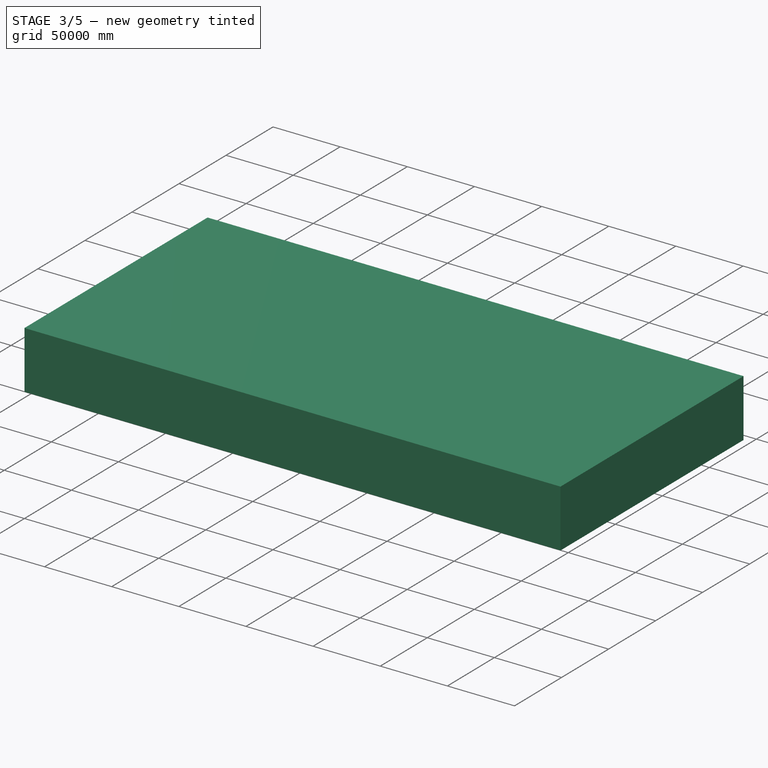
[diagram: stage 3 of 5 — iso view after this stage's code; geometry added in this stage tinted green]
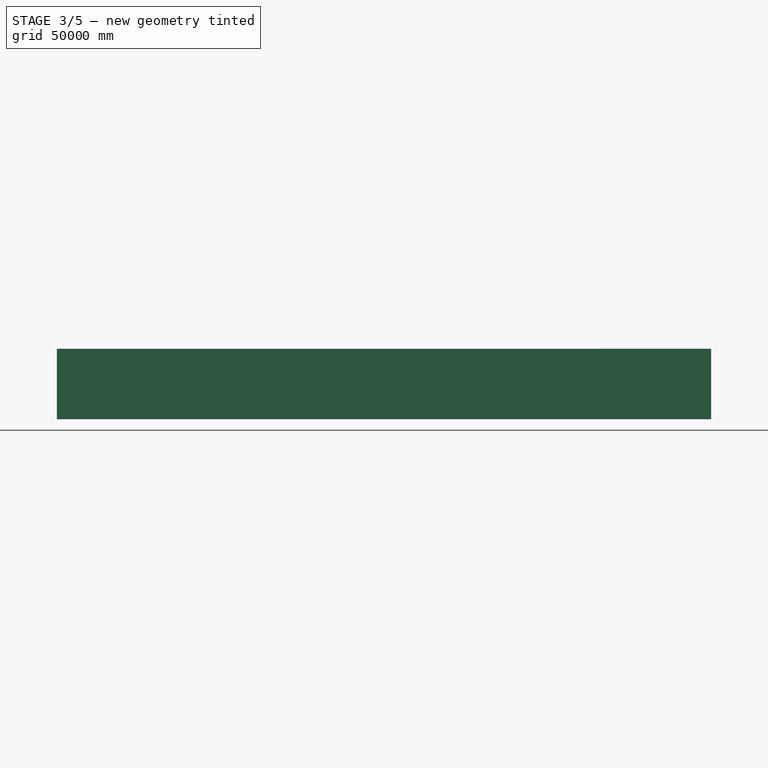
[diagram: stage 3 of 5 — front view after this stage's code; geometry added in this stage tinted green]
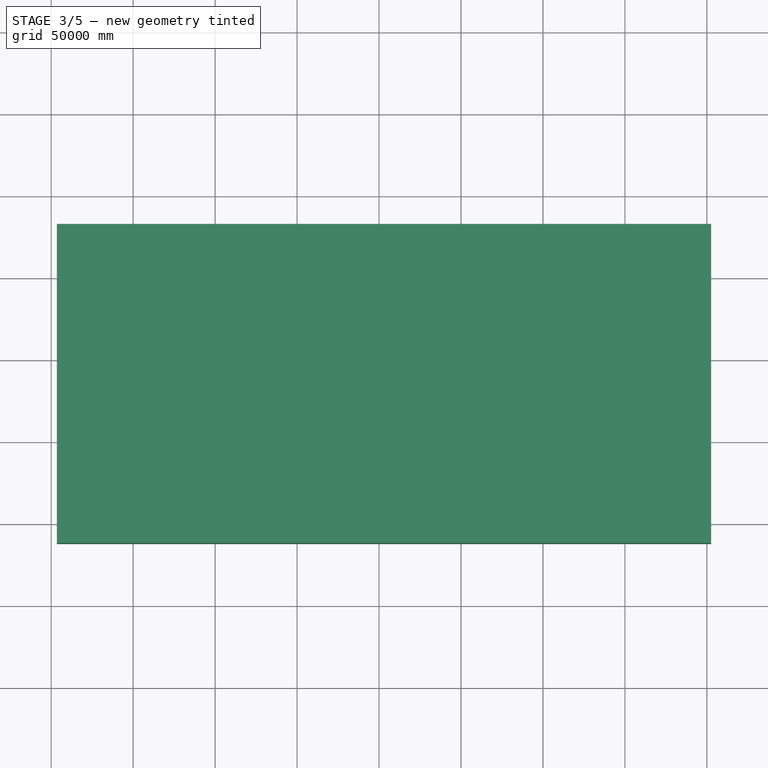
[diagram: stage 3 of 5 — top view after this stage's code; geometry added in this stage tinted green]
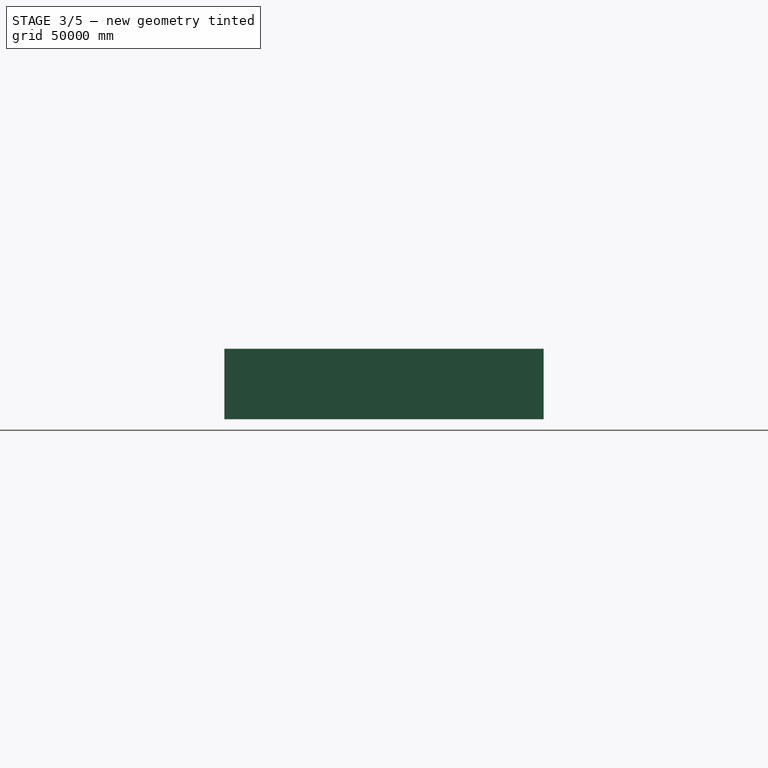
[diagram: stage 3 of 5 — right view after this stage's code; geometry added in this stage tinted green]
FEATURE [PartDesign::Body] Body039  label="Dach9"
  AllowCompound = false
  Group = -> [Sketch050,Sketch051,AdditiveLoft012]
  Origin = -> Origin039
  Tip = -> AdditiveLoft012
FEATURE [Sketcher::SketchObject] Sketch052
  ArcFitTolerance = 1e-06
  AttachmentOffset = pos=(0,0,11500) rot=(0,0,1;0rad)
  AttachmentSupport = -> [XY_Plane040]
  FullyConstrained = true
  MakeInternals = false
  MapMode = 5
  Placement = pos=(0,0,11500) rot=(0,0,1;0rad)
  sketch-geometry (12):
    g0: LineSegment StartX=-61425.6 StartY=77427.8 StartZ=0 EndX=-41758.2 EndY=50468 EndZ=0
    g1: LineSegment StartX=-41758.2 StartY=50468 StartZ=0 EndX=-37166.6 EndY=38940.2 EndZ=0
    g2: LineSegment StartX=-37166.6 StartY=38940.2 StartZ=0 EndX=-54707.8 EndY=31211.1 EndZ=0
    g3: LineSegment StartX=-54707.8 StartY=31211.1 StartZ=0 EndX=-71217.9 EndY=24323.7 EndZ=0
    g4: LineSegment StartX=-71217.9 StartY=24323.7 StartZ=0 EndX=-75565.3 EndY=34630.4 EndZ=0
    g5: LineSegment StartX=-75565.3 StartY=34630.4 StartZ=0 EndX=-54658.1 EndY=45288.2 EndZ=0
    g6: LineSegment StartX=-54658.1 StartY=45288.2 StartZ=0 EndX=-59445 EndY=53396.8 EndZ=0
    g7: LineSegment StartX=-59445 StartY=53396.8 StartZ=0 EndX=-78886 EndY=42601.7 EndZ=0
    g8: LineSegment StartX=-78886 StartY=42601.7 StartZ=0 EndX=-79642.1 EndY=44300.9 EndZ=0
    g9: LineSegment StartX=-79642.1 StartY=44300.9 StartZ=0 EndX=-88567.5 EndY=39690.4 EndZ=0
    g10: LineSegment StartX=-88567.5 StartY=39690.4 StartZ=0 EndX=-96264.9 EndY=53361.3 EndZ=0
    g11: LineSegment StartX=-96264.9 StartY=53361.3 StartZ=0 EndX=-61425.6 EndY=77427.8 EndZ=0
  constraints (24):
    c: Coincident(g0,g1)
    c: Coincident(g1,g2)
    c: Coincident(g2,g3)
    c: Coincident(g3,g4)
    c: Coincident(g4,g5)
    c: Coincident(g5,g6)
    c: Coincident(g6,g7)
    c: Coincident(g7,g8)
    c: Coincident(g8,g9)
    c: Coincident(g9,g10)
    c: Coincident(g10,g11)
    c: Coincident(g11,g0)
    c: Block(g0)
    c: Block(g1)
    c: Block(g2)
    c: Block(g3)
    c: Block(g4)
    c: Block(g5)
    c: Block(g6)
    c: Block(g7)
    c: Block(g8)
    c: Block(g9)
    c: Block(g10)
    c: Block(g11)
FEATURE [Sketcher::SketchObject] Sketch053
  ArcFitTolerance = 1e-06
  AttachmentOffset = pos=(0,0,15000) rot=(0,0,1;0rad)
  AttachmentSupport = -> [XY_Plane040]
  FullyConstrained = true
  MakeInternals = false
  MapMode = 5
  Placement = pos=(0,0,15000) rot=(0,0,1;0rad)
  sketch-geometry (12):
    g0: LineSegment StartX=-68351.5 StartY=28676.8 StartZ=0 EndX=-70089.3 EndY=32424.9 EndZ=0
    g1: LineSegment StartX=-70089.3 StartY=32424.9 StartZ=0 EndX=-49088.5 EndY=42686.6 EndZ=0
    g2: LineSegment StartX=-49088.5 StartY=42686.6 StartZ=0 EndX=-58399.1 EndY=58809 EndZ=0
    g3: LineSegment StartX=-58399.1 StartY=58809 StartZ=0 EndX=-77789.1 EndY=48666.6 EndZ=0
    g4: LineSegment StartX=-77789.1 StartY=48666.6 StartZ=0 EndX=-79519.2 EndY=49382.5 EndZ=0
    g5: LineSegment StartX=-79519.2 StartY=49382.5 StartZ=0 EndX=-86320.6 EndY=45504.5 EndZ=0
    g6: LineSegment StartX=-86320.6 StartY=45504.5 StartZ=0 EndX=-90556.6 EndY=52007.6 EndZ=0
    g7: LineSegment StartX=-90556.6 StartY=52007.6 StartZ=0 EndX=-63403.9 EndY=70456.1 EndZ=0
    g8: LineSegment StartX=-63403.9 StartY=70456.1 StartZ=0 EndX=-48961.5 EndY=46634.9 EndZ=0
    g9: LineSegment StartX=-48961.5 StartY=46634.9 StartZ=0 EndX=-46097.8 EndY=40430.1 EndZ=0
    g10: LineSegment StartX=-68351.5 StartY=28676.8 StartZ=0 EndX=-56329.8 EndY=34526.2 EndZ=0
    g11: LineSegment StartX=-56329.8 StartY=34526.2 StartZ=0 EndX=-46097.8 EndY=40430.1 EndZ=0
  constraints (24):
    c: Coincident(g0,g1)
    c: Coincident(g1,g2)
    c: Coincident(g2,g3)
    c: Coincident(g3,g4)
    c: Coincident(g4,g5)
    c: Coincident(g5,g6)
    c: Coincident(g6,g7)
    c: Coincident(g7,g8)
    c: Coincident(g8,g9)
    c: Block(g1)
    c: Block(g2)
    c: Block(g3)
    c: Block(g4)
    c: Block(g5)
    c: Block(g6)
    c: Block(g7)
    c: Block(g8)
    c: Block(g9)
    c: Coincident(g0,g10)
    c: Coincident(g10,g11)
    c: Coincident(g11,g9)
    c: Block(g0)
    c: Block(g10)
    c: Block(g11)
FEATURE [PartDesign::AdditiveLoft] AdditiveLoft013
  Closed = true
  Profile = -> Sketch053
  Refine = true
  Ruled = true
  Sections = -> [Sketch052]
  Suppressed = false
FEATURE [PartDesign::Body] Body040  label="Dach8"
  AllowCompound = false
  Group = -> [Sketch052,Sketch053,AdditiveLoft013]
  Origin = -> Origin040
  Tip = -> AdditiveLoft013
FEATURE [PartDesign::ShapeBinder] ShapeBinder
  Support = -> [Sketch011]
  TraceSupport = false
FEATURE [PartDesign::Pad] Pad026
  Direction = (0,0,1)
  Length = 43000
  Length2 = 10
  Profile = -> ShapeBinder
  Refine = true
  Suppressed = false
  Type = 0
FEATURE [PartDesign::Body] Body041  label="SIM_RAUM"
  AllowCompound = false
  Group = -> [ShapeBinder,Pad026]
  Origin = -> Origin041
  Tip = -> Pad026
FEATURE [Sketcher::SketchObject] Sketch040
  ArcFitTolerance = 1e-06
  AttachmentOffset = pos=(0,0,12150) rot=(0,0,1;0rad)
  AttachmentSupport = -> [XY_Plane034]
  FullyConstrained = true
  MakeInternals = false
  MapMode = 5
  Placement = pos=(0,0,12150) rot=(0,0,1;0rad)
  sketch-geometry (5):
    g0: LineSegment StartX=88549.9 StartY=35250.5 StartZ=0 EndX=83034.2 EndY=28549.9 EndZ=0
    g1: LineSegment StartX=83034.2 StartY=28549.9 StartZ=0 EndX=94555.9 EndY=18213.1 EndZ=0
    g2: LineSegment StartX=94555.9 StartY=18213.1 StartZ=0 EndX=105021 EndY=9334.05 EndZ=0
    g3: LineSegment StartX=105021 StartY=9334.05 StartZ=0 EndX=114618 EndY=19390.5 EndZ=0
    g4: LineSegment StartX=114618 StartY=19390.5 StartZ=0 EndX=88549.9 EndY=35250.5 EndZ=0
  constraints (10):
    c: Coincident(g0,g1)
    c: Coincident(g1,g2)
    c: Coincident(g2,g3)
    c: Coincident(g3,g4)
    c: Coincident(g4,g0)
    c: Block(g0)
    c: Block(g1)
    c: Block(g2)
    c: Block(g3)
    c: Block(g4)
FEATURE [Sketcher::SketchObject] Sketch041
  ArcFitTolerance = 1e-06
  AttachmentOffset = pos=(0,0,16300) rot=(0,0,1;0rad)
  AttachmentSupport = -> [XY_Plane034]
  FullyConstrained = true
  MakeInternals = false
  MapMode = 5
  Placement = pos=(0,0,16300) rot=(0,0,1;0rad)
  sketch-geometry (5):
    g0: LineSegment StartX=89926.9 StartY=29939.9 StartZ=0 EndX=108030 EndY=18833.8 EndZ=0
    g1: LineSegment StartX=108030 StartY=18833.8 StartZ=0 EndX=105142 EndY=15279.9 EndZ=0
    g2: LineSegment StartX=105142 StartY=15279.9 StartZ=0 EndX=96812.7 EndY=20944 EndZ=0
    g3: LineSegment StartX=96812.7 StartY=20944 StartZ=0 EndX=88149.9 EndY=27718.7 EndZ=0
    g4: LineSegment StartX=88149.9 StartY=27718.7 StartZ=0 EndX=89926.9 EndY=29939.9 EndZ=0
  constraints (10):
    c: Coincident(g0,g1)
    c: Coincident(g1,g2)
    c: Coincident(g2,g3)
    c: Coincident(g3,g4)
    c: Coincident(g4,g0)
    c: Block(g0)
    c: Block(g1)
    c: Block(g2)
    c: Block(g3)
    c: Block(g4)
FEATURE [PartDesign::AdditiveLoft] AdditiveLoft007
  Closed = true
  Profile = -> Sketch040
  Refine = true
  Ruled = true
  Sections = -> [Sketch041]
  Suppressed = false
FEATURE [PartDesign::Body] Body034  label="Dach15_3"
  AllowCompound = false
  Group = -> [Sketch040,Sketch041,AdditiveLoft007]
  Origin = -> Origin034
  Tip = -> AdditiveLoft007
FEATURE [Sketcher::SketchObject] Sketch054
  ArcFitTolerance = 1e-06
  AttachmentOffset = pos=(0,0,12000) rot=(0,0,1;0rad)
  AttachmentSupport = -> [XY_Plane043]
  FullyConstrained = true
  MakeInternals = false
  MapMode = 5
  Placement = pos=(0,0,12000) rot=(0,0,1;0rad)
  sketch-geometry (15):
    g0: LineSegment StartX=32658 StartY=-42097.7 StartZ=0 EndX=35849.5 EndY=-46464.7 EndZ=0
    g1: LineSegment StartX=35849.5 StartY=-46464.7 StartZ=0 EndX=50956 EndY=-34003.5 EndZ=0
    g2: LineSegment StartX=50956 StartY=-34003.5 StartZ=0 EndX=72235.3 EndY=-58352.7 EndZ=0
    g3: LineSegment StartX=72235.3 StartY=-58352.7 StartZ=0 EndX=51427.7 EndY=-75092 EndZ=0
    g4: LineSegment StartX=51427.7 StartY=-75092 StartZ=0 EndX=46791.5 EndY=-68928.4 EndZ=0
    g5: LineSegment StartX=46791.5 StartY=-68928.4 StartZ=0 EndX=45906.1 EndY=-88361.9 EndZ=0
    g6: LineSegment StartX=45906.1 StartY=-88361.9 StartZ=0 EndX=77700.1 EndY=-65119.6 EndZ=0
    g7: LineSegment StartX=77700.1 StartY=-65119.6 StartZ=0 EndX=100314 EndY=-90707.2 EndZ=0
    g8: LineSegment StartX=100314 StartY=-90707.2 StartZ=0 EndX=82355.9 EndY=-106226 EndZ=0
    g9: LineSegment StartX=82355.9 StartY=-106226 StartZ=0 EndX=12932.9 EndY=-106226 EndZ=0
    g10: LineSegment StartX=12932.9 StartY=-106226 StartZ=0 EndX=6240.89 EndY=-94224.4 EndZ=0
    g11: LineSegment StartX=6240.89 StartY=-94224.4 StartZ=0 EndX=8146.93 EndY=-72373.8 EndZ=0
    g12: LineSegment StartX=8146.93 StartY=-72373.8 StartZ=0 EndX=23476.7 EndY=-58935.6 EndZ=0
    g13: LineSegment StartX=23476.7 StartY=-58935.6 StartZ=0 EndX=19046.2 EndY=-53694 EndZ=0
    g14: LineSegment StartX=19046.2 StartY=-53694 StartZ=0 EndX=32658 EndY=-42097.7 EndZ=0
  constraints (31):
    c: Coincident(g0,g1)
    c: Coincident(g1,g2)
    c: Coincident(g2,g3)
    c: Coincident(g3,g4)
    c: Coincident(g4,g5)
    c: Coincident(g5,g6)
    c: Coincident(g6,g7)
    c: Coincident(g7,g8)
    c: Coincident(g8,g9)
    c: Horizontal(g9)
    c: Coincident(g9,g10)
    c: Coincident(g10,g11)
    c: Coincident(g11,g12)
    c: Coincident(g12,g13)
    c: Coincident(g13,g14)
    c: Coincident(g14,g0)
    c: Block(g0)
    c: Block(g1)
    c: Block(g2)
    c: Block(g3)
    c: Block(g4)
    c: Block(g5)
    c: Block(g6)
    c: Block(g7)
    c: Block(g8)
    c: Block(g9)
    c: Block(g10)
    c: Block(g11)
    c: Block(g12)
    c: Block(g13)
    c: Block(g14)
FEATURE [Sketcher::SketchObject] Sketch055
  ArcFitTolerance = 1e-06
  AttachmentOffset = pos=(0,0,17000) rot=(0,0,1;0rad)
  AttachmentSupport = -> [XY_Plane043]
  FullyConstrained = true
  MakeInternals = false
  MapMode = 5
  Placement = pos=(0,0,17000) rot=(0,0,1;0rad)
  sketch-geometry (15):
    g0: LineSegment StartX=31542.1 StartY=-50043.8 StartZ=0 EndX=36623.7 EndY=-54452.1 EndZ=0
    g1: LineSegment StartX=36623.7 StartY=-54452.1 StartZ=0 EndX=50788.8 EndY=-42480.4 EndZ=0
    g2: LineSegment StartX=50788.8 StartY=-42480.4 StartZ=0 EndX=64905.5 EndY=-57574.1 EndZ=0
    g3: LineSegment StartX=64905.5 StartY=-57574.1 StartZ=0 EndX=52645.4 EndY=-66566.1 EndZ=0
    g4: LineSegment StartX=52645.4 StartY=-66566.1 StartZ=0 EndX=42973.8 EndY=-59874.1 EndZ=0
    g5: LineSegment StartX=42973.8 StartY=-59874.1 StartZ=0 EndX=40485.6 EndY=-96085.8 EndZ=0
    g6: LineSegment StartX=40485.6 StartY=-96085.8 StartZ=0 EndX=77267.1 EndY=-70832.1 EndZ=0
    g7: LineSegment StartX=77267.1 StartY=-70832.1 StartZ=0 EndX=93590.3 EndY=-89988.5 EndZ=0
    g8: LineSegment StartX=93590.3 StartY=-89988.5 StartZ=0 EndX=74815.2 EndY=-105906 EndZ=0
    g9: LineSegment StartX=74815.2 StartY=-105906 StartZ=0 EndX=18118.6 EndY=-106039 EndZ=0
    g10: LineSegment StartX=18118.6 StartY=-106039 StartZ=0 EndX=12000.7 EndY=-92818.9 EndZ=0
    g11: LineSegment StartX=12000.7 StartY=-92818.9 StartZ=0 EndX=18059 EndY=-75172.2 EndZ=0
    g12: LineSegment StartX=18059 StartY=-75172.2 StartZ=0 EndX=33790.6 EndY=-61437.2 EndZ=0
    g13: LineSegment StartX=33790.6 StartY=-61437.2 StartZ=0 EndX=27386.4 EndY=-53707.4 EndZ=0
    g14: LineSegment StartX=27386.4 StartY=-53707.4 StartZ=0 EndX=31542.1 EndY=-50043.8 EndZ=0
  constraints (30):
    c: Coincident(g0,g1)
    c: Coincident(g1,g2)
    c: Coincident(g2,g3)
    c: Coincident(g3,g4)
    c: Coincident(g4,g5)
    c: Coincident(g5,g6)
    c: Coincident(g6,g7)
    c: Coincident(g7,g8)
    c: Coincident(g8,g9)
    c: Coincident(g9,g10)
    c: Coincident(g10,g11)
    c: Coincident(g11,g12)
    c: Coincident(g12,g13)
    c: Coincident(g13,g14)
    c: Coincident(g14,g0)
    c: Block(g0)
    c: Block(g1)
    c: Block(g2)
    c: Block(g3)
    c: Block(g4)
    c: Block(g5)
    c: Block(g6)
    c: Block(g7)
    c: Block(g8)
    c: Block(g9)
    c: Block(g10)
    c: Block(g11)
    c: Block(g12)
    c: Block(g13)
    c: Block(g14)
FEATURE [PartDesign::AdditiveLoft] AdditiveLoft014
  Closed = true
  Profile = -> Sketch055
  Refine = true
  Ruled = true
  Sections = -> [Sketch054]
  Suppressed = false
FEATURE [PartDesign::Body] Body042  label="Dach16"
  AllowCompound = false
  Group = -> [Sketch054,Sketch055,AdditiveLoft014]
  Origin = -> Origin042
  Tip = -> AdditiveLoft014
FEATURE [Sketcher::SketchObject] Sketch058
  ArcFitTolerance = 1e-06
  AttachmentOffset = pos=(0,0,12000) rot=(0,0,1;0rad)
  AttachmentSupport = -> [XY_Plane045]
  FullyConstrained = true
  MakeInternals = false
  MapMode = 5
  Placement = pos=(0,0,12000) rot=(0,0,1;0rad)
  sketch-geometry (4):
    g0: LineSegment StartX=-28279.7 StartY=-68767.6 StartZ=0 EndX=-26743.3 EndY=-71950.1 EndZ=0
    g1: LineSegment StartX=-26743.3 StartY=-71950.1 StartZ=0 EndX=-23670.5 EndY=-70545.4 EndZ=0
    g2: LineSegment StartX=-23670.5 StartY=-70545.4 StartZ=0 EndX=-25141.1 EndY=-67297 EndZ=0
    g3: LineSegment StartX=-25141.1 StartY=-67297 StartZ=0 EndX=-28279.7 EndY=-68767.6 EndZ=0
  constraints (8):
    c: Coincident(g0,g1)
    c: Coincident(g1,g2)
    c: Coincident(g2,g3)
    c: Coincident(g3,g0)
    c: Block(g0)
    c: Block(g1)
    c: Block(g2)
    c: Block(g3)
FEATURE [Sketcher::SketchObject] Sketch059
  ArcFitTolerance = 1e-06
  AttachmentOffset = pos=(0,0,16000) rot=(0,0,1;0rad)
  AttachmentSupport = -> [XY_Plane045]
  FullyConstrained = true
  MakeInternals = false
  MapMode = 5
  Placement = pos=(0,0,16000) rot=(0,0,1;0rad)
  sketch-geometry (4):
    g0: LineSegment StartX=-30281.9 StartY=-68016.5 StartZ=0 EndX=-27362.4 EndY=-73975.3 EndZ=0
    g1: LineSegment StartX=-27362.4 StartY=-73975.3 StartZ=0 EndX=-21643.5 EndY=-71135.9 EndZ=0
    g2: LineSegment StartX=-21643.5 StartY=-71135.9 StartZ=0 EndX=-24443 EndY=-64937.1 EndZ=0
    g3: LineSegment StartX=-24443 StartY=-64937.1 StartZ=0 EndX=-30281.9 EndY=-68016.5 EndZ=0
  constraints (8):
    c: Coincident(g0,g1)
    c: Coincident(g1,g2)
    c: Coincident(g2,g3)
    c: Coincident(g3,g0)
    c: Block(g0)
    c: Block(g1)
    c: Block(g2)
    c: Block(g3)
FEATURE [PartDesign::AdditiveLoft] AdditiveLoft016
  Closed = true
  Profile = -> Sketch058
  Refine = true
  Ruled = true
  Sections = -> [Sketch059]
  Suppressed = false
FEATURE [PartDesign::Body] Body044  label="Dach1_2"
  AllowCompound = false
  Group = -> [Sketch058,Sketch059,AdditiveLoft016]
  Origin = -> Origin044
  Tip = -> AdditiveLoft016
FEATURE [Sketcher::SketchObject] Sketch056
  ArcFitTolerance = 1e-06
  AttachmentOffset = pos=(0,0,12000) rot=(0,0,1;0rad)
  AttachmentSupport = -> [XY_Plane044]
  FullyConstrained = true
  MakeInternals = false
  MapMode = 5
  Placement = pos=(0,0,12000) rot=(0,0,1;0rad)
  sketch-geometry (5):
    g0: LineSegment StartX=-17680.2 StartY=-42880.3 StartZ=0 EndX=-3706.47 EndY=-80262.1 EndZ=0
    g1: LineSegment StartX=-3706.47 StartY=-80262.1 StartZ=0 EndX=-21774.4 EndY=-92366.7 EndZ=0
    g2: LineSegment StartX=-21774.4 StartY=-92366.7 StartZ=0 EndX=-40465.3 EndY=-69581.6 EndZ=0
    g3: LineSegment StartX=-40465.3 StartY=-69581.6 StartZ=0 EndX=-40910.3 EndY=-62728.3 EndZ=0
    g4: LineSegment StartX=-40910.3 StartY=-62728.3 StartZ=0 EndX=-17680.2 EndY=-42880.3 EndZ=0
  constraints (10):
    c: Coincident(g0,g1)
    c: Coincident(g1,g2)
    c: Coincident(g2,g3)
    c: Coincident(g3,g4)
    c: Coincident(g4,g0)
    c: Block(g0)
    c: Block(g1)
    c: Block(g2)
    c: Block(g3)
    c: Block(g4)
FEATURE [Sketcher::SketchObject] Sketch057
  ArcFitTolerance = 1e-06
  AttachmentOffset = pos=(0,0,16000) rot=(0,0,1;0rad)
  AttachmentSupport = -> [XY_Plane044]
  FullyConstrained = true
  MakeInternals = false
  MapMode = 5
  Placement = pos=(0,0,16000) rot=(0,0,1;0rad)
  sketch-geometry (5):
    g0: LineSegment StartX=-36846 StartY=-64438.1 StartZ=0 EndX=-21728.2 EndY=-51626 EndZ=0
    g1: LineSegment StartX=-21728.2 StartY=-51626 StartZ=0 EndX=-11759.7 EndY=-80018.4 EndZ=0
    g2: LineSegment StartX=-11759.7 StartY=-80018.4 StartZ=0 EndX=-21448.2 EndY=-86511.1 EndZ=0
    g3: LineSegment StartX=-21448.2 StartY=-86511.1 StartZ=0 EndX=-36668 EndY=-67197.2 EndZ=0
    g4: LineSegment StartX=-36668 StartY=-67197.2 StartZ=0 EndX=-36846 EndY=-64438.1 EndZ=0
  constraints (10):
    c: Coincident(g0,g1)
    c: Coincident(g1,g2)
    c: Coincident(g2,g3)
    c: Coincident(g3,g4)
    c: Coincident(g4,g0)
    c: Block(g0)
    c: Block(g1)
    c: Block(g2)
    c: Block(g3)
    c: Block(g4)
FEATURE [PartDesign::AdditiveLoft] AdditiveLoft015
  Closed = true
  Profile = -> Sketch057
  Refine = true
  Ruled = true
  Sections = -> [Sketch056]
  Suppressed = false
FEATURE [PartDesign::Boolean] Boolean
  BaseFeature = -> AdditiveLoft015
  Group = -> [Body044]
  Refine = true
  Suppressed = false
  Type = 1
  UsePlacement = true
FEATURE [PartDesign::Body] Body043  label="Dach1"
  AllowCompound = false
  Group = -> [Sketch056,Sketch057,AdditiveLoft015,Boolean]
  Origin = -> Origin043
  Tip = -> Boolean
FEATURE [Sketcher::SketchObject] Sketch060
  ArcFitTolerance = 1e-06
  AttachmentOffset = pos=(0,0,12000) rot=(0,0,1;0rad)
  AttachmentSupport = -> [XY_Plane046]
  FullyConstrained = true
  MakeInternals = false
  MapMode = 5
  Placement = pos=(0,0,12000) rot=(0,0,1;0rad)
  sketch-geometry (8):
    g0: LineSegment StartX=-42898.4 StartY=-43942.2 StartZ=0 EndX=-38756.7 EndY=-41311.5 EndZ=0
    g1: LineSegment StartX=-38756.7 StartY=-41311.5 StartZ=0 EndX=-37527.5 EndY=-43326.5 EndZ=0
    g2: LineSegment StartX=-37527.5 StartY=-43326.5 StartZ=0 EndX=-31933.1 EndY=-40050 EndZ=0
    g3: LineSegment StartX=-31933.1 StartY=-40050 StartZ=0 EndX=-31419.3 EndY=-40211.2 EndZ=0
    g4: LineSegment StartX=-31419.3 StartY=-40211.2 StartZ=0 EndX=-20323.4 EndY=-33364.7 EndZ=0
    g5: LineSegment StartX=-20323.4 StartY=-33364.7 StartZ=0 EndX=-17306.7 EndY=-39533.5 EndZ=0
    g6: LineSegment StartX=-17306.7 StartY=-39533.5 StartZ=0 EndX=-35515.4 EndY=-54841.2 EndZ=0
    g7: LineSegment StartX=-35515.4 StartY=-54841.2 StartZ=0 EndX=-42898.4 EndY=-43942.2 EndZ=0
  constraints (16):
    c: Coincident(g0,g1)
    c: Coincident(g1,g2)
    c: Coincident(g2,g3)
    c: Coincident(g3,g4)
    c: Coincident(g4,g5)
    c: Coincident(g5,g6)
    c: Coincident(g6,g7)
    c: Coincident(g7,g0)
    c: Block(g0)
    c: Block(g1)
    c: Block(g2)
    c: Block(g3)
    c: Block(g4)
    c: Block(g5)
    c: Block(g6)
    c: Block(g7)
FEATURE [Sketcher::SketchObject] Sketch061
  ArcFitTolerance = 1e-06
  AttachmentOffset = pos=(0,0,16500) rot=(0,0,1;0rad)
  AttachmentSupport = -> [XY_Plane046]
  FullyConstrained = true
  MakeInternals = false
  MapMode = 5
  Placement = pos=(0,0,16500) rot=(0,0,1;0rad)
  sketch-geometry (8):
    g0: LineSegment StartX=-41388.9 StartY=-45708.7 StartZ=0 EndX=-39093.4 EndY=-44211.6 EndZ=0
    g1: LineSegment StartX=-39093.4 StartY=-44211.6 StartZ=0 EndX=-37346.8 EndY=-46756.7 EndZ=0
    g2: LineSegment StartX=-37346.8 StartY=-46756.7 StartZ=0 EndX=-31208.7 EndY=-42415.1 EndZ=0
    g3: LineSegment StartX=-31208.7 StartY=-42415.1 StartZ=0 EndX=-30410.2 EndY=-42265.4 EndZ=0
    g4: LineSegment StartX=-30410.2 StartY=-42265.4 StartZ=0 EndX=-21876.8 EndY=-36626.4 EndZ=0
    g5: LineSegment StartX=-21876.8 StartY=-36626.4 StartZ=0 EndX=-20529.4 EndY=-39121.5 EndZ=0
    g6: LineSegment StartX=-20529.4 StartY=-39121.5 StartZ=0 EndX=-36747.9 EndY=-52645.3 EndZ=0
    g7: LineSegment StartX=-36747.9 StartY=-52645.3 StartZ=0 EndX=-41388.9 EndY=-45708.7 EndZ=0
  constraints (16):
    c: Coincident(g0,g1)
    c: Coincident(g1,g2)
    c: Coincident(g2,g3)
    c: Coincident(g3,g4)
    c: Coincident(g4,g5)
    c: Coincident(g5,g6)
    c: Coincident(g6,g7)
    c: Coincident(g7,g0)
    c: Block(g0)
    c: Block(g1)
    c: Block(g2)
    c: Block(g3)
    c: Block(g4)
    c: Block(g5)
    c: Block(g6)
    c: Block(g7)
FEATURE [PartDesign::AdditiveLoft] AdditiveLoft017
  Closed = true
  Profile = -> Sketch061
  Refine = true
  Ruled = true
  Sections = -> [Sketch060]
  Suppressed = false
FEATURE [PartDesign::Body] Body045  label="Dach2"
  AllowCompound = false
  Group = -> [Sketch060,Sketch061,AdditiveLoft017]
  Origin = -> Origin045
  Tip = -> AdditiveLoft017
FEATURE [Sketcher::SketchObject] Sketch062
  ArcFitTolerance = 1e-06
  AttachmentOffset = pos=(0,0,11000) rot=(0,0,1;0rad)
  AttachmentSupport = -> [XY_Plane047]
  FullyConstrained = true
  MakeInternals = false
  MapMode = 5
  Placement = pos=(0,0,11000) rot=(0,0,1;0rad)
  sketch-geometry (8):
    g0: LineSegment StartX=-23278.6 StartY=-28508.1 StartZ=0 EndX=-39339.4 EndY=-36349.7 EndZ=0
    g1: LineSegment StartX=-39339.4 StartY=-36349.7 StartZ=0 EndX=-36315.9 EndY=-42151.5 EndZ=0
    g2: LineSegment StartX=-36315.9 StartY=-42151.5 StartZ=0 EndX=-32720.5 EndY=-40353.8 EndZ=0
    g3: LineSegment StartX=-32720.5 StartY=-40353.8 StartZ=0 EndX=-32497.4 EndY=-39805.5 EndZ=0
    g4: LineSegment StartX=-32497.4 StartY=-39805.5 StartZ=0 EndX=-27613.4 EndY=-37406.8 EndZ=0
    g5: LineSegment StartX=-27613.4 StartY=-37406.8 StartZ=0 EndX=-27417.5 EndY=-37677 EndZ=0
    g6: LineSegment StartX=-27417.5 StartY=-37677 StartZ=0 EndX=-21170.8 EndY=-33867.2 EndZ=0
    g7: LineSegment StartX=-21170.8 StartY=-33867.2 StartZ=0 EndX=-23278.6 EndY=-28508.1 EndZ=0
  constraints (16):
    c: Coincident(g0,g1)
    c: Coincident(g1,g2)
    c: Coincident(g2,g3)
    c: Coincident(g3,g4)
    c: Coincident(g4,g5)
    c: Coincident(g5,g6)
    c: Coincident(g6,g7)
    c: Coincident(g7,g0)
    c: Block(g0)
    c: Block(g1)
    c: Block(g2)
    c: Block(g3)
    c: Block(g4)
    c: Block(g5)
    c: Block(g6)
    c: Block(g7)
FEATURE [Sketcher::SketchObject] Sketch063
  ArcFitTolerance = 1e-06
  AttachmentOffset = pos=(0,0,15000) rot=(0,0,1;0rad)
  AttachmentSupport = -> [XY_Plane047]
  FullyConstrained = true
  MakeInternals = false
  MapMode = 5
  Placement = pos=(0,0,15000) rot=(0,0,1;0rad)
  sketch-geometry (8):
    g0: LineSegment StartX=-37232 StartY=-35943.5 StartZ=0 EndX=-35158 EndY=-40225.2 EndZ=0
    g1: LineSegment StartX=-35158 StartY=-40225.2 StartZ=0 EndX=-33581.1 EndY=-39482.2 EndZ=0
    g2: LineSegment StartX=-33581.1 StartY=-39482.2 StartZ=0 EndX=-33150.9 EndY=-38619.6 EndZ=0
    g3: LineSegment StartX=-33150.9 StartY=-38619.6 StartZ=0 EndX=-27865.7 EndY=-36043.9 EndZ=0
    g4: LineSegment StartX=-27865.7 StartY=-36043.9 StartZ=0 EndX=-27011.2 EndY=-36343 EndZ=0
    g5: LineSegment StartX=-27011.2 StartY=-36343 StartZ=0 EndX=-23015.3 EndY=-34003.3 EndZ=0
    g6: LineSegment StartX=-23015.3 StartY=-34003.3 StartZ=0 EndX=-24855.1 EndY=-29955.8 EndZ=0
    g7: LineSegment StartX=-24855.1 StartY=-29955.8 StartZ=0 EndX=-37232 EndY=-35943.5 EndZ=0
  constraints (16):
    c: Coincident(g0,g1)
    c: Coincident(g1,g2)
    c: Coincident(g2,g3)
    c: Coincident(g3,g4)
    c: Coincident(g4,g5)
    c: Coincident(g5,g6)
    c: Coincident(g6,g7)
    c: Coincident(g7,g0)
    c: Block(g0)
    c: Block(g1)
    c: Block(g2)
    c: Block(g3)
    c: Block(g4)
    c: Block(g5)
    c: Block(g6)
    c: Block(g7)
FEATURE [PartDesign::AdditiveLoft] AdditiveLoft018
  Closed = true
  Profile = -> Sketch063
  Refine = true
  Ruled = true
  Sections = -> [Sketch062]
  Suppressed = false
FEATURE [PartDesign::Body] Body046  label="Dach3"
  AllowCompound = false
  Group = -> [Sketch062,Sketch063,AdditiveLoft018]
  Origin = -> Origin046
  Tip = -> AdditiveLoft018
FEATURE [Sketcher::SketchObject] Sketch064
  ArcFitTolerance = 1e-06
  AttachmentOffset = pos=(0,0,11500) rot=(0,0,1;0rad)
  AttachmentSupport = -> [XY_Plane048]
  FullyConstrained = true
  MakeInternals = false
  MapMode = 5
  Placement = pos=(0,0,11500) rot=(0,0,1;0rad)
  sketch-geometry (18):
    g0: LineSegment StartX=-35468.5 StartY=-55033.6 StartZ=0 EndX=-34819.7 EndY=-55041.1 EndZ=0
    g1: LineSegment StartX=-34819.7 StartY=-55041.1 StartZ=0 EndX=-33860.9 EndY=-56568.5 EndZ=0
    g2: LineSegment StartX=-33860.9 StartY=-56568.5 StartZ=0 EndX=-43394.8 EndY=-63713.5 EndZ=0
    g3: LineSegment StartX=-43394.8 StartY=-63713.5 StartZ=0 EndX=-45339.6 EndY=-65452.9 EndZ=0
    g4: LineSegment StartX=-45339.6 StartY=-65452.9 StartZ=0 EndX=-43586 EndY=-69309.6 EndZ=0
    g5: LineSegment StartX=-43586 StartY=-69309.6 StartZ=0 EndX=-61848.2 EndY=-80193 EndZ=0
    g6: LineSegment StartX=-61848.2 StartY=-80193 StartZ=0 EndX=-65589.2 EndY=-80353 EndZ=0
    g7: LineSegment StartX=-65589.2 StartY=-80353 StartZ=0 EndX=-73748.6 EndY=-64181.2 EndZ=0
    g8: LineSegment StartX=-84556.1 StartY=-42055.7 StartZ=0 EndX=-73500.7 EndY=-36637.4 EndZ=0
    g9: LineSegment StartX=-73500.7 StartY=-36637.4 StartZ=0 EndX=-62845.8 EndY=-31348.2 EndZ=0
    g10: LineSegment StartX=-62845.8 StartY=-31348.2 StartZ=0 EndX=-52438.5 EndY=-26500.7 EndZ=0
    g11: LineSegment StartX=-52438.5 StartY=-26500.7 StartZ=0 EndX=-45616.7 EndY=-40748.9 EndZ=0
    g12: LineSegment StartX=-45616.7 StartY=-40748.9 StartZ=0 EndX=-64764.4 EndY=-50408 EndZ=0
    g13: LineSegment StartX=-64764.4 StartY=-50408 StartZ=0 EndX=-62217.3 EndY=-54543.5 EndZ=0
    g14: LineSegment StartX=-62217.3 StartY=-54543.5 StartZ=0 EndX=-43970 EndY=-42503.1 EndZ=0
    g15: LineSegment StartX=-43970 StartY=-42503.1 StartZ=0 EndX=-35468.5 EndY=-55033.6 EndZ=0
    g16: LineSegment StartX=-73748.6 StartY=-64181.2 StartZ=0 EndX=-76424.8 EndY=-58659.1 EndZ=0
    g17: LineSegment StartX=-76424.8 StartY=-58659.1 StartZ=0 EndX=-84556.1 EndY=-42055.7 EndZ=0
  constraints (36):
    c: Coincident(g0,g1)
    c: Coincident(g1,g2)
    c: Coincident(g2,g3)
    c: Coincident(g3,g4)
    c: Coincident(g4,g5)
    c: Coincident(g5,g6)
    c: Coincident(g6,g7)
    c: Coincident(g8,g9)
    c: Coincident(g9,g10)
    c: Coincident(g10,g11)
    c: Coincident(g11,g12)
    c: Coincident(g13,g14)
    c: Coincident(g14,g15)
    c: Coincident(g15,g0)
    c: Coincident(g7,g16)
    c: Coincident(g16,g17)
    c: Coincident(g17,g8)
    c: Coincident(g13,g12)
    c: Block(g0)
    c: Block(g1)
    c: Block(g2)
    c: Block(g3)
    c: Block(g4)
    c: Block(g5)
    c: Block(g6)
    c: Block(g7)
    c: Block(g8)
    c: Block(g9)
    c: Block(g10)
    c: Block(g11)
    c: Block(g12)
    c: Block(g13)
    c: Block(g14)
    c: Block(g15)
    c: Block(g16)
    c: Block(g17)
FEATURE [Sketcher::SketchObject] Sketch065
  ArcFitTolerance = 1e-06
  AttachmentOffset = pos=(0,0,15500) rot=(0,0,1;0rad)
  AttachmentSupport = -> [XY_Plane048]
  FullyConstrained = true
  MakeInternals = false
  MapMode = 5
  Placement = pos=(0,0,15500) rot=(0,0,1;0rad)
  sketch-geometry (18):
    g0: LineSegment StartX=-52566.9 StartY=-31294.7 StartZ=0 EndX=-61053.8 EndY=-35240.3 EndZ=0
    g1: LineSegment StartX=-61053.8 StartY=-35240.3 StartZ=0 EndX=-71625.3 EndY=-40526.1 EndZ=0
    g2: LineSegment StartX=-71625.3 StartY=-40526.1 StartZ=0 EndX=-78251 EndY=-43652.8 EndZ=0
    g3: LineSegment StartX=-78251 StartY=-43652.8 StartZ=0 EndX=-71771 EndY=-56479.7 EndZ=0
    g4: LineSegment StartX=-71771 StartY=-56479.7 StartZ=0 EndX=-69090.9 EndY=-61765.4 EndZ=0
    g5: LineSegment StartX=-69090.9 StartY=-61765.4 StartZ=0 EndX=-64028.5 EndY=-72709.1 EndZ=0
    g6: LineSegment StartX=-64028.5 StartY=-72709.1 StartZ=0 EndX=-61534.1 EndY=-73076.7 EndZ=0
    g7: LineSegment StartX=-61534.1 StartY=-73076.7 StartZ=0 EndX=-48650.5 EndY=-67682.5 EndZ=0
    g8: LineSegment StartX=-48650.5 StartY=-67682.5 StartZ=0 EndX=-48650.5 EndY=-64978.2 EndZ=0
    g9: LineSegment StartX=-48650.5 StartY=-64978.2 StartZ=0 EndX=-44687.4 EndY=-62077.3 EndZ=0
    g10: LineSegment StartX=-44687.4 StartY=-62077.3 StartZ=0 EndX=-37700.8 EndY=-57869 EndZ=0
    g11: LineSegment StartX=-37700.8 StartY=-57869 StartZ=0 EndX=-38231.9 EndY=-57133.6 EndZ=0
    g12: LineSegment StartX=-38231.9 StartY=-57133.6 StartZ=0 EndX=-39049.1 EndY=-56847.6 EndZ=0
    g13: LineSegment StartX=-39049.1 StartY=-56847.6 StartZ=0 EndX=-45523 EndY=-47877.2 EndZ=0
    g14: LineSegment StartX=-45523 StartY=-47877.2 StartZ=0 EndX=-63050.7 EndY=-60420.4 EndZ=0
    g15: LineSegment StartX=-63050.7 StartY=-60420.4 StartZ=0 EndX=-69796.2 EndY=-48692.1 EndZ=0
    g16: LineSegment StartX=-69796.2 StartY=-48692.1 StartZ=0 EndX=-49283.2 EndY=-38347.8 EndZ=0
    g17: LineSegment StartX=-49283.2 StartY=-38347.8 StartZ=0 EndX=-52566.9 EndY=-31294.7 EndZ=0
  constraints (37):
    c: Coincident(g0,g1)
    c: Coincident(g1,g2)
    c: Coincident(g2,g3)
    c: Coincident(g3,g4)
    c: Coincident(g4,g5)
    c: Coincident(g5,g6)
    c: Coincident(g7,g8)
    c: Vertical(g8)
    c: Coincident(g8,g9)
    c: Coincident(g9,g10)
    c: Coincident(g10,g11)
    c: Coincident(g11,g12)
    c: Coincident(g12,g13)
    c: Coincident(g13,g14)
    c: Coincident(g14,g15)
    c: Coincident(g15,g16)
    c: Coincident(g16,g17)
    c: Coincident(g17,g0)
    c: Coincident(g7,g6)
    c: Block(g0)
    c: Block(g1)
    c: Block(g2)
    c: Block(g3)
    c: Block(g4)
    c: Block(g5)
    c: Block(g6)
    c: Block(g7)
    c: Block(g8)
    c: Block(g9)
    c: Block(g10)
    c: Block(g11)
    c: Block(g12)
    c: Block(g13)
    c: Block(g14)
    c: Block(g15)
    c: Block(g16)
    c: Block(g17)
FEATURE [PartDesign::AdditiveLoft] AdditiveLoft019
  Closed = true
  Profile = -> Sketch065
  Refine = true
  Ruled = true
  Sections = -> [Sketch064]
  Suppressed = false
FEATURE [PartDesign::AdditiveLoft] AdditiveLoft020
  BaseFeature = -> AdditiveLoft019
  Closed = true
  Profile = -> Sketch065
  Refine = true
  Ruled = true
  Sections = -> [Sketch064]
  Suppressed = false
FEATURE [PartDesign::Body] Body047  label="Dach19"
  AllowCompound = false
  Group = -> [Sketch064,Sketch065,AdditiveLoft019,AdditiveLoft020]
  Origin = -> Origin047
  Tip = -> AdditiveLoft020
FEATURE [Sketcher::SketchObject] Sketch066
  ArcFitTolerance = 1e-06
  AttachmentOffset = pos=(0,0,12000) rot=(0,0,1;0rad)
  AttachmentSupport = -> [XY_Plane049]
  FullyConstrained = true
  MakeInternals = false
  MapMode = 5
  Placement = pos=(0,0,12000) rot=(0,0,1;0rad)
  sketch-geometry (8):
    g0: LineSegment StartX=-52482.7 StartY=-26326.5 StartZ=0 EndX=-25305 EndY=-13394.8 EndZ=0
    g1: LineSegment StartX=-25305 StartY=-13394.8 StartZ=0 EndX=-20510.2 EndY=-27877.8 EndZ=0
    g2: LineSegment StartX=-20510.2 StartY=-27877.8 StartZ=0 EndX=-22789.6 EndY=-29073.3 EndZ=0
    g3: LineSegment StartX=-22789.6 StartY=-29073.3 StartZ=0 EndX=-23113.3 EndY=-28327.5 EndZ=0
    g4: LineSegment StartX=-23113.3 StartY=-28327.5 StartZ=0 EndX=-39569.8 EndY=-36256.4 EndZ=0
    g5: LineSegment StartX=-39569.8 StartY=-36256.4 StartZ=0 EndX=-38992.8 EndY=-37508.9 EndZ=0
    g6: LineSegment StartX=-38992.8 StartY=-37508.9 StartZ=0 EndX=-45509.9 EndY=-40661.9 EndZ=0
    g7: LineSegment StartX=-45509.9 StartY=-40661.9 StartZ=0 EndX=-52482.7 EndY=-26326.5 EndZ=0
  constraints (16):
    c: Coincident(g0,g1)
    c: Coincident(g1,g2)
    c: Coincident(g2,g3)
    c: Coincident(g3,g4)
    c: Coincident(g4,g5)
    c: Coincident(g5,g6)
    c: Coincident(g6,g7)
    c: Coincident(g7,g0)
    c: Block(g0)
    c: Block(g1)
    c: Block(g2)
    c: Block(g3)
    c: Block(g4)
    c: Block(g5)
    c: Block(g6)
    c: Block(g7)
FEATURE [Sketcher::SketchObject] Sketch067
  ArcFitTolerance = 1e-06
  AttachmentOffset = pos=(0,0,16000) rot=(0,0,1;0rad)
  AttachmentSupport = -> [XY_Plane049]
  FullyConstrained = true
  MakeInternals = false
  MapMode = 5
  Placement = pos=(0,0,16000) rot=(0,0,1;0rad)
  sketch-geometry (8):
    g0: LineSegment StartX=-48911.5 StartY=-28810.5 StartZ=0 EndX=-25753.6 EndY=-17770.8 EndZ=0
    g1: LineSegment StartX=-25753.6 StartY=-17770.8 StartZ=0 EndX=-22403.7 EndY=-26719.1 EndZ=0
    g2: LineSegment StartX=-22403.7 StartY=-26719.1 StartZ=0 EndX=-22799 EndY=-26891 EndZ=0
    g3: LineSegment StartX=-22799 StartY=-26891 StartZ=0 EndX=-23108.4 EndY=-26873.8 EndZ=0
    g4: LineSegment StartX=-23108.4 StartY=-26873.8 StartZ=0 EndX=-42878.5 EndY=-33699.9 EndZ=0
    g5: LineSegment StartX=-42878.5 StartY=-33699.9 StartZ=0 EndX=-41960.4 EndY=-35574.3 EndZ=0
    g6: LineSegment StartX=-41960.4 StartY=-35574.3 StartZ=0 EndX=-44944.2 EndY=-37066.2 EndZ=0
    g7: LineSegment StartX=-44944.2 StartY=-37066.2 StartZ=0 EndX=-48911.5 EndY=-28810.5 EndZ=0
  constraints (16):
    c: Coincident(g0,g1)
    c: Coincident(g1,g2)
    c: Coincident(g2,g3)
    c: Coincident(g3,g4)
    c: Coincident(g4,g5)
    c: Coincident(g5,g6)
    c: Coincident(g6,g7)
    c: Coincident(g7,g0)
    c: Block(g0)
    c: Block(g1)
    c: Block(g2)
    c: Block(g3)
    c: Block(g4)
    c: Block(g5)
    c: Block(g6)
    c: Block(g7)
FEATURE [PartDesign::AdditiveLoft] AdditiveLoft021
  Closed = true
  Profile = -> Sketch067
  Refine = true
  Ruled = true
  Sections = -> [Sketch066]
  Suppressed = false
FEATURE [PartDesign::Body] Body048  label="Dach4"
  AllowCompound = false
  Group = -> [Sketch066,Sketch067,AdditiveLoft021]
  Origin = -> Origin048
  Tip = -> AdditiveLoft021
FEATURE [Sketcher::SketchObject] Sketch068
  ArcFitTolerance = 1e-06
  AttachmentOffset = pos=(0,0,12000) rot=(0,0,1;0rad)
  AttachmentSupport = -> [XY_Plane050]
  FullyConstrained = true
  MakeInternals = false
  MapMode = 5
  Placement = pos=(0,0,12000) rot=(0,0,1;0rad)
  sketch-geometry (6):
    g0: LineSegment StartX=-21024.1 StartY=-11006.2 StartZ=0 EndX=-57617 EndY=-26391 EndZ=0
    g1: LineSegment StartX=-57617 StartY=-26391 StartZ=0 EndX=-60720.2 EndY=-18981.2 EndZ=0
    g2: LineSegment StartX=-60720.2 StartY=-18981.2 StartZ=0 EndX=-32538.1 EndY=-7514.93 EndZ=0
    g3: LineSegment StartX=-32538.1 StartY=-7514.93 StartZ=0 EndX=-31904.9 EndY=-7937.11 EndZ=0
    g4: LineSegment StartX=-31904.9 StartY=-7937.11 StartZ=0 EndX=-23824.6 EndY=-4589 EndZ=0
    g5: LineSegment StartX=-23824.6 StartY=-4589 StartZ=0 EndX=-21024.1 EndY=-11006.2 EndZ=0
  constraints (12):
    c: Coincident(g0,g1)
    c: Coincident(g1,g2)
    c: Coincident(g2,g3)
    c: Coincident(g3,g4)
    c: Coincident(g4,g5)
    c: Coincident(g5,g0)
    c: Block(g0)
    c: Block(g1)
    c: Block(g2)
    c: Block(g3)
    c: Block(g4)
    c: Block(g5)
FEATURE [Sketcher::SketchObject] Sketch069
  ArcFitTolerance = 1e-06
  AttachmentOffset = pos=(0,0,16000) rot=(0,0,1;0rad)
  AttachmentSupport = -> [XY_Plane050]
  FullyConstrained = true
  MakeInternals = false
  MapMode = 5
  Placement = pos=(0,0,16000) rot=(0,0,1;0rad)
  sketch-geometry (6):
    g0: LineSegment StartX=-55887.9 StartY=-19932.3 StartZ=0 EndX=-33678.4 EndY=-10655.4 EndZ=0
    g1: LineSegment StartX=-33678.4 StartY=-10655.4 StartZ=0 EndX=-32210.4 EndY=-10805.1 EndZ=0
    g2: LineSegment StartX=-32210.4 StartY=-10805.1 StartZ=0 EndX=-25582.4 EndY=-8131.31 EndZ=0
    g3: LineSegment StartX=-25582.4 StartY=-8131.31 StartZ=0 EndX=-24996.2 EndY=-9236.75 EndZ=0
    g4: LineSegment StartX=-24996.2 StartY=-9236.75 StartZ=0 EndX=-54999.4 EndY=-21940.8 EndZ=0
    g5: LineSegment StartX=-54999.4 StartY=-21940.8 StartZ=0 EndX=-55887.9 EndY=-19932.3 EndZ=0
  constraints (12):
    c: Coincident(g0,g1)
    c: Coincident(g1,g2)
    c: Coincident(g2,g3)
    c: Coincident(g3,g4)
    c: Coincident(g4,g5)
    c: Coincident(g5,g0)
    c: Block(g0)
    c: Block(g1)
    c: Block(g2)
    c: Block(g3)
    c: Block(g4)
    c: Block(g5)
FEATURE [PartDesign::AdditiveLoft] AdditiveLoft022
  Closed = true
  Profile = -> Sketch069
  Refine = true
  Ruled = true
  Sections = -> [Sketch068]
  Suppressed = false
FEATURE [PartDesign::Body] Body049  label="Dach5"
  AllowCompound = false
  Group = -> [Sketch068,Sketch069,AdditiveLoft022]
  Origin = -> Origin049
  Tip = -> AdditiveLoft022
FEATURE [Sketcher::SketchObject] Sketch070
  ArcFitTolerance = 1e-06
  AttachmentOffset = pos=(0,0,12000) rot=(0,0,1;0rad)
  AttachmentSupport = -> [XY_Plane051]
  FullyConstrained = true
  MakeInternals = false
  MapMode = 5
  Placement = pos=(0,0,12000) rot=(0,0,1;0rad)
  sketch-geometry (8):
    g0: LineSegment StartX=-23774.8 StartY=-4514.31 StartZ=0 EndX=-32414.8 EndY=16950.1 EndZ=0
    g1: LineSegment StartX=-32414.8 StartY=16950.1 StartZ=0 EndX=-46878.3 EndY=10955.3 EndZ=0
    g2: LineSegment StartX=-46878.3 StartY=10955.3 StartZ=0 EndX=-43250.3 EndY=2173.18 EndZ=0
    g3: LineSegment StartX=-43250.3 StartY=2173.18 StartZ=0 EndX=-41275.9 EndY=2891.16 EndZ=0
    g4: LineSegment StartX=-41275.9 StartY=2891.16 StartZ=0 EndX=-40634.8 EndY=1301.35 EndZ=0
    g5: LineSegment StartX=-40634.8 StartY=1301.35 StartZ=0 EndX=-36336.9 EndY=3018.27 EndZ=0
    g6: LineSegment StartX=-36336.9 StartY=3018.27 StartZ=0 EndX=-31857.5 EndY=-7854.79 EndZ=0
    g7: LineSegment StartX=-31857.5 StartY=-7854.79 StartZ=0 EndX=-23774.8 EndY=-4514.31 EndZ=0
  constraints (16):
    c: Coincident(g0,g1)
    c: Coincident(g1,g2)
    c: Coincident(g2,g3)
    c: Coincident(g3,g4)
    c: Coincident(g4,g5)
    c: Coincident(g5,g6)
    c: Coincident(g6,g7)
    c: Coincident(g7,g0)
    c: Block(g0)
    c: Block(g1)
    c: Block(g2)
    c: Block(g3)
    c: Block(g4)
    c: Block(g5)
    c: Block(g6)
    c: Block(g7)
FEATURE [Sketcher::SketchObject] Sketch071
  ArcFitTolerance = 1e-06
  AttachmentOffset = pos=(0,0,16000) rot=(0,0,1;0rad)
  AttachmentSupport = -> [XY_Plane051]
  FullyConstrained = true
  MakeInternals = false
  MapMode = 5
  Placement = pos=(0,0,16000) rot=(0,0,1;0rad)
  sketch-geometry (8):
    g0: LineSegment StartX=-34315.5 StartY=13153.4 StartZ=0 EndX=-27136.2 EndY=-3784.37 EndZ=0
    g1: LineSegment StartX=-27136.2 StartY=-3784.37 StartZ=0 EndX=-30691 EndY=-5317.83 EndZ=0
    g2: LineSegment StartX=-30691 StartY=-5317.83 StartZ=0 EndX=-35361.1 EndY=5973.99 EndZ=0
    g3: LineSegment StartX=-35361.1 StartY=5973.99 StartZ=0 EndX=-38428 EndY=4858.75 EndZ=0
    g4: LineSegment StartX=-38428 StartY=4858.75 StartZ=0 EndX=-39264.4 EndY=7158.93 EndZ=0
    g5: LineSegment StartX=-39264.4 StartY=7158.93 StartZ=0 EndX=-42122.2 EndY=6183.1 EndZ=0
    g6: LineSegment StartX=-42122.2 StartY=6183.1 StartZ=0 EndX=-43376.9 EndY=9459.12 EndZ=0
    g7: LineSegment StartX=-43376.9 StartY=9459.12 StartZ=0 EndX=-34315.5 EndY=13153.4 EndZ=0
  constraints (16):
    c: Coincident(g0,g1)
    c: Coincident(g1,g2)
    c: Coincident(g2,g3)
    c: Coincident(g3,g4)
    c: Coincident(g4,g5)
    c: Coincident(g5,g6)
    c: Coincident(g6,g7)
    c: Coincident(g7,g0)
    c: Block(g0)
    c: Block(g1)
    c: Block(g2)
    c: Block(g3)
    c: Block(g4)
    c: Block(g5)
    c: Block(g6)
    c: Block(g7)
FEATURE [PartDesign::AdditiveLoft] AdditiveLoft023
  Closed = true
  Profile = -> Sketch071
  Refine = true
  Ruled = true
  Sections = -> [Sketch070]
  Suppressed = false
FEATURE [PartDesign::Body] Body050  label="Dach6"
  AllowCompound = false
  Group = -> [Sketch070,Sketch071,AdditiveLoft023]
  Origin = -> Origin050
  Tip = -> AdditiveLoft023
FEATURE [Sketcher::SketchObject] Sketch072
  ArcFitTolerance = 1e-06
  AttachmentOffset = pos=(0,0,12500) rot=(0,0,1;0rad)
  AttachmentSupport = -> [XY_Plane052]
  FullyConstrained = true
  MakeInternals = false
  MapMode = 5
  Placement = pos=(0,0,12500) rot=(0,0,1;0rad)
  sketch-geometry (8):
    g0: LineSegment StartX=-38080 StartY=32222.3 StartZ=0 EndX=-32458 EndY=16992 EndZ=0
    g1: LineSegment StartX=-32458 StartY=16992 StartZ=0 EndX=-46915.6 EndY=10966.9 EndZ=0
    g2: LineSegment StartX=-46915.6 StartY=10966.9 StartZ=0 EndX=-43311.5 EndY=2164.57 EndZ=0
    g3: LineSegment StartX=-43311.5 StartY=2164.57 StartZ=0 EndX=-75634.9 EndY=-12215.5 EndZ=0
    g4: LineSegment StartX=-75634.9 StartY=-12215.5 StartZ=0 EndX=-81704.1 EndY=2111.63 EndZ=0
    g5: LineSegment StartX=-81704.1 StartY=2111.63 StartZ=0 EndX=-103095 EndY=-6779.68 EndZ=0
    g6: LineSegment StartX=-103095 StartY=-6779.68 StartZ=0 EndX=-107634 EndY=3985.28 EndZ=0
    g7: LineSegment StartX=-107634 StartY=3985.28 StartZ=0 EndX=-38080 EndY=32222.3 EndZ=0
  constraints (16):
    c: Coincident(g0,g1)
    c: Coincident(g1,g2)
    c: Coincident(g2,g3)
    c: Coincident(g3,g4)
    c: Coincident(g4,g5)
    c: Coincident(g5,g6)
    c: Coincident(g6,g7)
    c: Coincident(g7,g0)
    c: Block(g0)
    c: Block(g1)
    c: Block(g2)
    c: Block(g3)
    c: Block(g4)
    c: Block(g5)
    c: Block(g6)
    c: Block(g7)
FEATURE [Sketcher::SketchObject] Sketch073
  ArcFitTolerance = 1e-06
  AttachmentOffset = pos=(0,0,16500) rot=(0,0,1;0rad)
  AttachmentSupport = -> [XY_Plane052]
  FullyConstrained = true
  MakeInternals = false
  MapMode = 5
  Placement = pos=(0,0,16500) rot=(0,0,1;0rad)
  sketch-geometry (8):
    g0: LineSegment StartX=-103214 StartY=928.106 StartZ=0 EndX=-41405.6 EndY=25787.5 EndZ=0
    g1: LineSegment StartX=-41405.6 StartY=25787.5 StartZ=0 EndX=-38511.1 EndY=18295.6 EndZ=0
    g2: LineSegment StartX=-38511.1 StartY=18295.6 StartZ=0 EndX=-50940.8 EndY=13272.7 EndZ=0
    g3: LineSegment StartX=-50940.8 StartY=13272.7 StartZ=0 EndX=-48046.2 EndY=5780.8 EndZ=0
    g4: LineSegment StartX=-48046.2 StartY=5780.8 StartZ=0 EndX=-73416.4 EndY=-4946.21 EndZ=0
    g5: LineSegment StartX=-73416.4 StartY=-4946.21 StartZ=0 EndX=-78366.9 EndY=7176.03 EndZ=0
    g6: LineSegment StartX=-78366.9 StartY=7176.03 StartZ=0 EndX=-102034 EndY=-1933.41 EndZ=0
    g7: LineSegment StartX=-102034 StartY=-1933.41 StartZ=0 EndX=-103214 EndY=928.106 EndZ=0
  constraints (16):
    c: Coincident(g0,g1)
    c: Coincident(g1,g2)
    c: Coincident(g2,g3)
    c: Coincident(g3,g4)
    c: Coincident(g4,g5)
    c: Coincident(g5,g6)
    c: Coincident(g6,g7)
    c: Coincident(g7,g0)
    c: Block(g0)
    c: Block(g1)
    c: Block(g2)
    c: Block(g3)
    c: Block(g4)
    c: Block(g5)
    c: Block(g6)
    c: Block(g7)
FEATURE [PartDesign::AdditiveLoft] AdditiveLoft024
  Closed = true
  Profile = -> Sketch073
  Refine = true
  Ruled = true
  Sections = -> [Sketch072]
  Suppressed = false
FEATURE [PartDesign::Body] Body051  label="Dach7"
  AllowCompound = false
  Group = -> [Sketch072,Sketch073,AdditiveLoft024]
  Origin = -> Origin051
  Tip = -> AdditiveLoft024
FEATURE [Sketcher::SketchObject] Sketch074
  ArcFitTolerance = 1e-06
  AttachmentOffset = pos=(0,0,11400) rot=(0,0,1;0rad)
  AttachmentSupport = -> [XY_Plane053]
  FullyConstrained = true
  MakeInternals = false
  MapMode = 5
  Placement = pos=(0,0,11400) rot=(0,0,1;0rad)
  sketch-geometry (5):
    g0: LineSegment StartX=-43115.1 StartY=-73399.1 StartZ=0 EndX=-25730.1 EndY=-93461.6 EndZ=0
    g1: LineSegment StartX=-25730.1 StartY=-93461.6 StartZ=0 EndX=-42833.6 EndY=-108749 EndZ=0
    g2: LineSegment StartX=-42833.6 StartY=-108749 StartZ=0 EndX=-55381.5 EndY=-108749 EndZ=0
    g3: LineSegment StartX=-55381.5 StartY=-108749 StartZ=0 EndX=-69792.9 EndY=-91944.2 EndZ=0
    g4: LineSegment StartX=-69792.9 StartY=-91944.2 StartZ=0 EndX=-43115.1 EndY=-73399.1 EndZ=0
  constraints (11):
    c: Coincident(g0,g1)
    c: Coincident(g1,g2)
    c: Horizontal(g2)
    c: Coincident(g2,g3)
    c: Coincident(g3,g4)
    c: Coincident(g4,g0)
    c: Block(g0)
    c: Block(g1)
    c: Block(g2)
    c: Block(g3)
    c: Block(g4)
FEATURE [Sketcher::SketchObject] Sketch075
  ArcFitTolerance = 1e-06
  AttachmentOffset = pos=(0,0,15400) rot=(0,0,1;0rad)
  AttachmentSupport = -> [XY_Plane053]
  FullyConstrained = true
  MakeInternals = false
  MapMode = 5
  Placement = pos=(0,0,15400) rot=(0,0,1;0rad)
  sketch-geometry (5):
    g0: LineSegment StartX=-64349.7 StartY=-92268.7 StartZ=0 EndX=-53476.1 EndY=-107115 EndZ=0
    g1: LineSegment StartX=-53476.1 StartY=-107115 StartZ=0 EndX=-45808.8 EndY=-107115 EndZ=0
    g2: LineSegment StartX=-45808.8 StartY=-107115 StartZ=0 EndX=-30683.3 EndY=-93453.7 EndZ=0
    g3: LineSegment StartX=-30683.3 StartY=-93453.7 StartZ=0 EndX=-43508.6 EndY=-78328.2 EndZ=0
    g4: LineSegment StartX=-43508.6 StartY=-78328.2 StartZ=0 EndX=-64349.7 EndY=-92268.7 EndZ=0
  constraints (11):
    c: Coincident(g0,g1)
    c: Horizontal(g1)
    c: Coincident(g1,g2)
    c: Coincident(g2,g3)
    c: Coincident(g3,g4)
    c: Coincident(g4,g0)
    c: Block(g0)
    c: Block(g1)
    c: Block(g2)
    c: Block(g3)
    c: Block(g4)
FEATURE [PartDesign::AdditiveLoft] AdditiveLoft025
  Closed = true
  Profile = -> Sketch075
  Refine = true
  Ruled = true
  Sections = -> [Sketch074]
  Suppressed = false
FEATURE [Sketcher::SketchObject] Sketch076
  ArcFitTolerance = 1e-06
  AttachmentOffset = pos=(0,0,11400) rot=(0,0,1;0rad)
  AttachmentSupport = -> [XY_Plane054]
  FullyConstrained = true
  MakeInternals = false
  MapMode = 5
  Placement = pos=(0,0,11400) rot=(0,0,1;0rad)
  sketch-geometry (4):
    g0: LineSegment StartX=-51316.2 StartY=-95834.7 StartZ=0 EndX=-44590.5 EndY=-90130.7 EndZ=0
    g1: LineSegment StartX=-44590.5 StartY=-90130.7 StartZ=0 EndX=-42462.1 EndY=-92514.5 EndZ=0
    g2: LineSegment StartX=-42462.1 StartY=-92514.5 StartZ=0 EndX=-49072.5 EndY=-98513.7 EndZ=0
    g3: LineSegment StartX=-49072.5 StartY=-98513.7 StartZ=0 EndX=-51316.2 EndY=-95834.7 EndZ=0
  constraints (8):
    c: Coincident(g0,g1)
    c: Coincident(g1,g2)
    c: Coincident(g2,g3)
    c: Coincident(g3,g0)
    c: Block(g0)
    c: Block(g1)
    c: Block(g2)
    c: Block(g3)
FEATURE [Sketcher::SketchObject] Sketch077
  ArcFitTolerance = 1e-06
  AttachmentOffset = pos=(0,0,15400) rot=(0,0,1;0rad)
  AttachmentSupport = -> [XY_Plane054]
  FullyConstrained = true
  MakeInternals = false
  MapMode = 5
  Placement = pos=(0,0,15400) rot=(0,0,1;0rad)
  sketch-geometry (4):
    g0: LineSegment StartX=-54801.3 StartY=-95259.8 StartZ=0 EndX=-44569 EndY=-86896.4 EndZ=0
    g1: LineSegment StartX=-44569 StartY=-86896.4 StartZ=0 EndX=-39663.1 EndY=-92830.2 EndZ=0
    g2: LineSegment StartX=-39663.1 StartY=-92830.2 StartZ=0 EndX=-49334.7 EndY=-101754 EndZ=0
    g3: LineSegment StartX=-49334.7 StartY=-101754 StartZ=0 EndX=-54801.3 EndY=-95259.8 EndZ=0
  constraints (8):
    c: Coincident(g0,g1)
    c: Coincident(g1,g2)
    c: Coincident(g2,g3)
    c: Coincident(g3,g0)
    c: Block(g0)
    c: Block(g1)
    c: Block(g2)
    c: Block(g3)
FEATURE [PartDesign::AdditiveLoft] AdditiveLoft026
  Closed = true
  Profile = -> Sketch077
  Refine = true
  Ruled = true
  Sections = -> [Sketch076]
  Suppressed = false
FEATURE [PartDesign::Body] Body053  label="Dach18_2"
  AllowCompound = false
  Group = -> [Sketch076,Sketch077,AdditiveLoft026]
  Origin = -> Origin053
  Tip = -> AdditiveLoft026
FEATURE [PartDesign::Boolean] Boolean001
  BaseFeature = -> AdditiveLoft025
  Group = -> [Body053]
  Refine = true
  Suppressed = false
  Type = 1
  UsePlacement = true
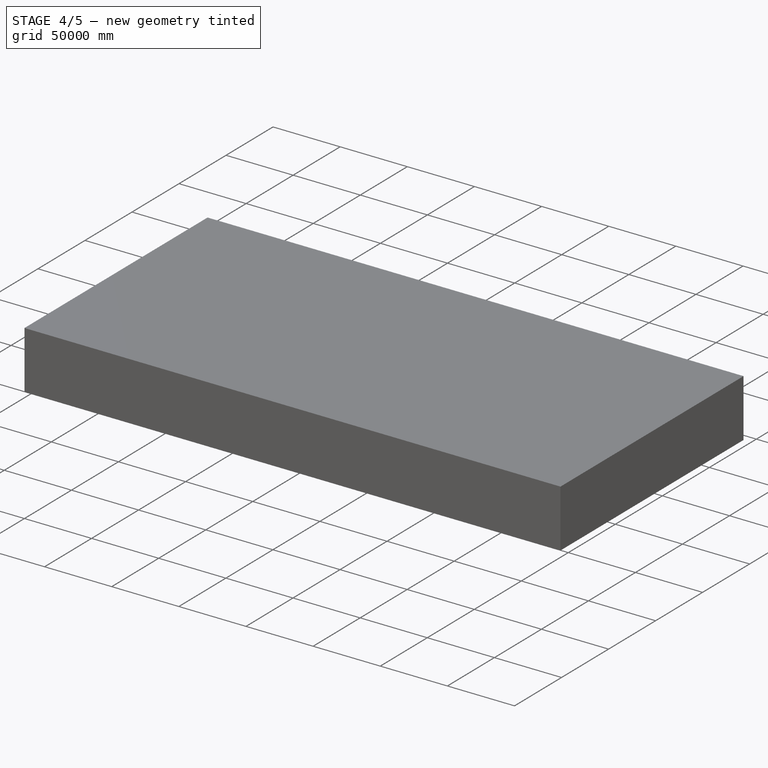
[diagram: stage 4 of 5 — iso view after this stage's code; geometry added in this stage tinted green]
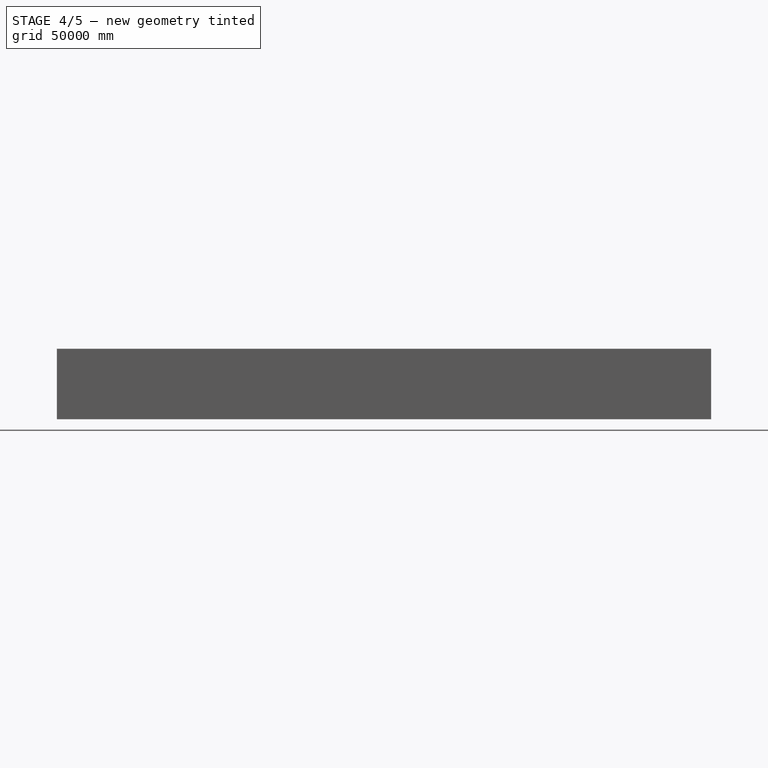
[diagram: stage 4 of 5 — front view after this stage's code; geometry added in this stage tinted green]
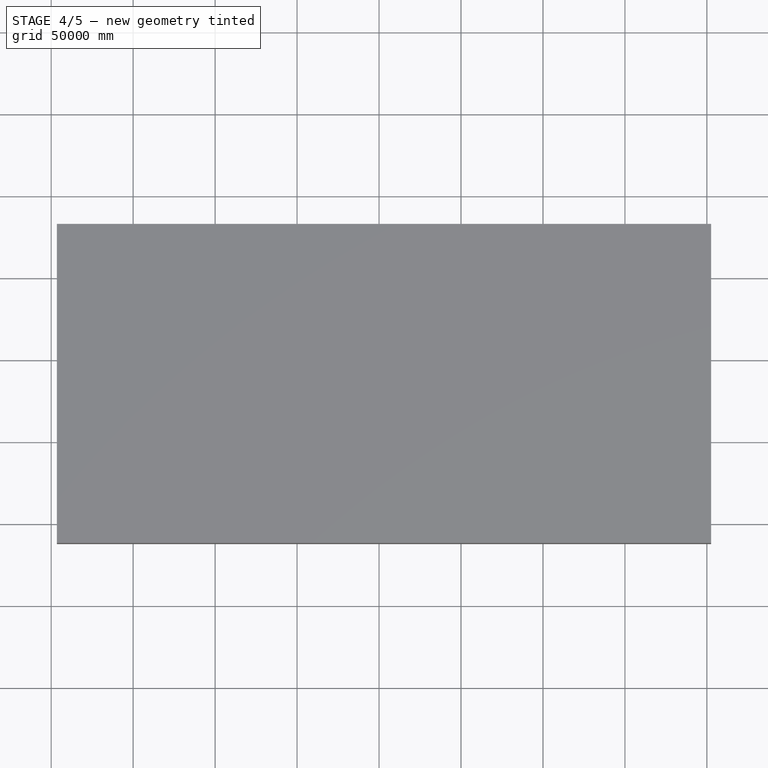
[diagram: stage 4 of 5 — top view after this stage's code; geometry added in this stage tinted green]
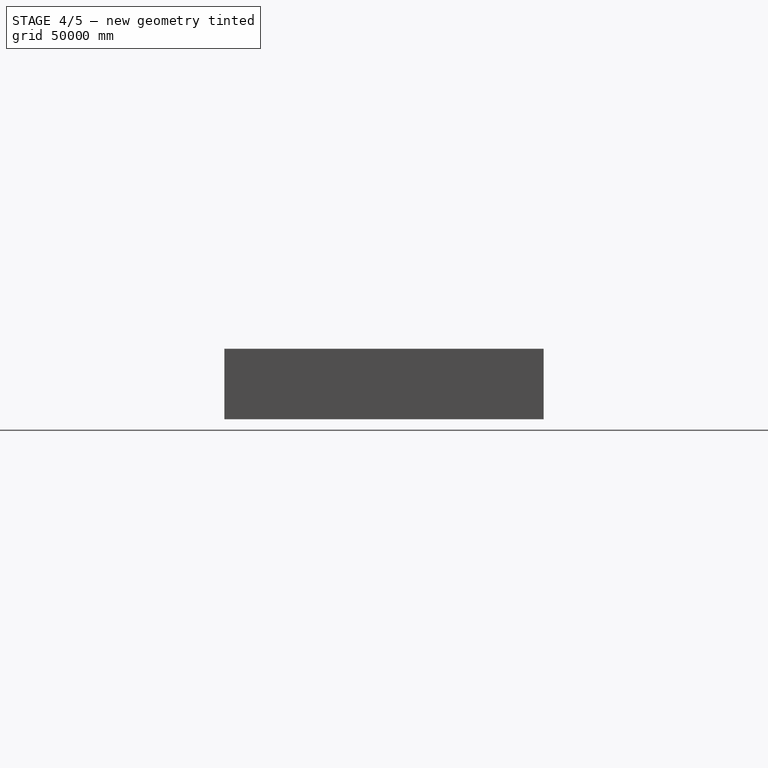
[diagram: stage 4 of 5 — right view after this stage's code; geometry added in this stage tinted green]
FEATURE [PartDesign::Body] Body019  label="Körper18"
  AllowCompound = false
  Group = -> [Sketch018,Pad018]
  Origin = -> Origin019
  Tip = -> Pad018
FEATURE [Sketcher::SketchObject] Sketch019
  ArcFitTolerance = 1e-06
  AttachmentSupport = -> [XY_Plane020]
  FullyConstrained = true
  MakeInternals = false
  MapMode = 5
  sketch-geometry (18):
    g0: LineSegment StartX=-34508.4 StartY=-56434.6 StartZ=0 EndX=-43297.1 EndY=-43473.9 EndZ=0
    g1: LineSegment StartX=-43297.1 StartY=-43473.9 StartZ=0 EndX=-62575.1 EndY=-56648 EndZ=0
    g2: LineSegment StartX=-62575.1 StartY=-56648 StartZ=0 EndX=-66356 EndY=-51169.8 EndZ=0
    g3: LineSegment StartX=-66356 StartY=-51169.8 StartZ=0 EndX=-67085.1 EndY=-49790.4 EndZ=0
    g4: LineSegment StartX=-67085.1 StartY=-49790.4 StartZ=0 EndX=-46192.1 EndY=-39556.9 EndZ=0
    g5: LineSegment StartX=-46192.1 StartY=-39556.9 StartZ=0 EndX=-51967.5 EndY=-27547.8 EndZ=0
    g6: LineSegment StartX=-51967.5 StartY=-27547.8 StartZ=0 EndX=-62273.7 EndY=-32553.1 EndZ=0
    g7: LineSegment StartX=-62273.7 StartY=-32553.1 StartZ=0 EndX=-72979.3 EndY=-37799.8 EndZ=0
    g8: LineSegment StartX=-72979.3 StartY=-37799.8 StartZ=0 EndX=-83001.9 EndY=-42696.6 EndZ=0
    g9: LineSegment StartX=-83001.9 StartY=-42696.6 StartZ=0 EndX=-75401.1 EndY=-58192.4 EndZ=0
    g10: LineSegment StartX=-75401.1 StartY=-58192.4 StartZ=0 EndX=-72857.5 EndY=-63718.3 EndZ=0
    g11: LineSegment StartX=-72857.5 StartY=-63718.3 StartZ=0 EndX=-65213.5 EndY=-79339.2 EndZ=0
    g12: LineSegment StartX=-65213.5 StartY=-79339.2 StartZ=0 EndX=-62108.6 EndY=-79339.2 EndZ=0
    g13: LineSegment StartX=-62108.6 StartY=-79339.2 StartZ=0 EndX=-56308 EndY=-75945.5 EndZ=0
    g14: LineSegment StartX=-56308 StartY=-75945.5 StartZ=0 EndX=-44542.8 EndY=-68956.5 EndZ=0
    g15: LineSegment StartX=-44542.8 StartY=-68956.5 StartZ=0 EndX=-46296.6 EndY=-65172.9 EndZ=0
    g16: LineSegment StartX=-46296.6 StartY=-65172.9 StartZ=0 EndX=-43833.4 EndY=-63025 EndZ=0
    g17: LineSegment StartX=-43833.4 StartY=-63025 StartZ=0 EndX=-34508.4 EndY=-56434.6 EndZ=0
  constraints (37):
    c: Coincident(g0,g1)
    c: Coincident(g1,g2)
    c: Coincident(g2,g3)
    c: Coincident(g3,g4)
    c: Coincident(g4,g5)
    c: Coincident(g5,g6)
    c: Coincident(g6,g7)
    c: Coincident(g7,g8)
    c: Coincident(g8,g9)
    c: Coincident(g9,g10)
    c: Coincident(g10,g11)
    c: Coincident(g11,g12)
    c: Horizontal(g12)
    c: Coincident(g12,g13)
    c: Coincident(g13,g14)
    c: Coincident(g14,g15)
    c: Coincident(g15,g16)
    c: Coincident(g16,g17)
    c: Coincident(g17,g0)
    c: Block(g0)
    c: Block(g1)
    c: Block(g2)
    c: Block(g3)
    c: Block(g4)
    c: Block(g5)
    c: Block(g6)
    c: Block(g7)
    c: Block(g8)
    c: Block(g9)
    c: Block(g10)
    c: Block(g11)
    c: Block(g12)
    c: Block(g13)
    c: Block(g14)
    c: Block(g15)
    c: Block(g16)
    c: Block(g17)
FEATURE [PartDesign::Pad] Pad019
  Direction = (0,0,1)
  Length = 11500
  Length2 = 10
  Profile = -> Sketch019
  ReferenceAxis = -> Sketch019 [N_Axis]
  Refine = true
  Suppressed = false
  Type = 0
FEATURE [PartDesign::Body] Body020  label="Körper19"
  AllowCompound = false
  Group = -> [Sketch019,Pad019]
  Origin = -> Origin020
  Tip = -> Pad019
FEATURE [Sketcher::SketchObject] Sketch020
  ArcFitTolerance = 1e-06
  AttachmentSupport = -> [XY_Plane021]
  FullyConstrained = true
  MakeInternals = false
  MapMode = 5
  sketch-geometry (6):
    g0: LineSegment StartX=-60853.1 StartY=-7214.58 StartZ=0 EndX=-49624.6 EndY=-2473.65 EndZ=0
    g1: LineSegment StartX=-49624.6 StartY=-2473.65 StartZ=0 EndX=-36360 EndY=2987.18 EndZ=0
    g2: LineSegment StartX=-36360 StartY=2987.18 StartZ=0 EndX=-32509.1 EndY=-6395.65 EndZ=0
    g3: LineSegment StartX=-32509.1 StartY=-6395.65 StartZ=0 EndX=-45674.1 EndY=-11835.1 EndZ=0
    g4: LineSegment StartX=-45674.1 StartY=-11835.1 StartZ=0 EndX=-56969.9 EndY=-16509.3 EndZ=0
    g5: LineSegment StartX=-56969.9 StartY=-16509.3 StartZ=0 EndX=-60853.1 EndY=-7214.58 EndZ=0
  constraints (12):
    c: Coincident(g0,g1)
    c: Coincident(g1,g2)
    c: Coincident(g2,g3)
    c: Coincident(g3,g4)
    c: Coincident(g4,g5)
    c: Coincident(g5,g0)
    c: Block(g0)
    c: Block(g1)
    c: Block(g2)
    c: Block(g3)
    c: Block(g4)
    c: Block(g5)
FEATURE [PartDesign::Pad] Pad020
  Direction = (0,0,1)
  Length = 11400
  Length2 = 10
  Profile = -> Sketch020
  ReferenceAxis = -> Sketch020 [N_Axis]
  Refine = true
  Suppressed = false
  Type = 0
FEATURE [PartDesign::Body] Body021  label="Körper20"
  AllowCompound = false
  Group = -> [Sketch020,Pad020]
  Origin = -> Origin021
  Tip = -> Pad020
FEATURE [Sketcher::SketchObject] Sketch021
  ArcFitTolerance = 1e-06
  AttachmentSupport = -> [XY_Plane022]
  FullyConstrained = true
  MakeInternals = false
  MapMode = 5
  sketch-geometry (9):
    g0: LineSegment StartX=-96068.5 StartY=-29779.1 StartZ=0 EndX=-91001.4 EndY=-42127.5 EndZ=0
    g1: LineSegment StartX=-91001.4 StartY=-42127.5 StartZ=0 EndX=-80237.2 EndY=-37704.8 EndZ=0
    g2: LineSegment StartX=-80237.2 StartY=-37704.8 StartZ=0 EndX=-71441.5 EndY=-34120.6 EndZ=0
    g3: LineSegment StartX=-71441.5 StartY=-34120.6 StartZ=0 EndX=-56980.8 EndY=-27921.9 EndZ=0
    g4: LineSegment StartX=-56980.8 StartY=-27921.9 StartZ=0 EndX=-57997.2 EndY=-25647 EndZ=0
    g5: LineSegment StartX=-57997.2 StartY=-25647 StartZ=0 EndX=-62097.2 EndY=-15781.9 EndZ=0
    g6: LineSegment StartX=-62097.2 StartY=-15781.9 StartZ=0 EndX=-76556.8 EndY=-21722.1 EndZ=0
    g7: LineSegment StartX=-76556.8 StartY=-21722.1 StartZ=0 EndX=-85386.7 EndY=-25339.5 EndZ=0
    g8: LineSegment StartX=-85386.7 StartY=-25339.5 StartZ=0 EndX=-96068.5 EndY=-29779.1 EndZ=0
  constraints (18):
    c: Coincident(g0,g1)
    c: Coincident(g1,g2)
    c: Coincident(g2,g3)
    c: Coincident(g3,g4)
    c: Coincident(g4,g5)
    c: Coincident(g5,g6)
    c: Coincident(g6,g7)
    c: Coincident(g7,g8)
    c: Coincident(g8,g0)
    c: Block(g0)
    c: Block(g1)
    c: Block(g2)
    c: Block(g3)
    c: Block(g4)
    c: Block(g5)
    c: Block(g6)
    c: Block(g7)
    c: Block(g8)
FEATURE [PartDesign::Pad] Pad021
  Direction = (0,0,1)
  Length = 11400
  Length2 = 10
  Profile = -> Sketch021
  ReferenceAxis = -> Sketch021 [N_Axis]
  Refine = true
  Suppressed = false
  Type = 0
FEATURE [PartDesign::Body] Body022  label="Körper21"
  AllowCompound = false
  Group = -> [Sketch021,Pad021]
  Origin = -> Origin022
  Tip = -> Pad021
FEATURE [Sketcher::SketchObject] Sketch022
  ArcFitTolerance = 1e-06
  AttachmentSupport = -> [XY_Plane023]
  FullyConstrained = true
  MakeInternals = false
  MapMode = 5
  sketch-geometry (30):
    g0: LineSegment StartX=-129894 StartY=1296.69 StartZ=0 EndX=-144992 EndY=39546.2 EndZ=0
    g1: LineSegment StartX=-144992 StartY=39546.2 StartZ=0 EndX=-129027 EndY=47554.9 EndZ=0
    g2: LineSegment StartX=-129027 StartY=47554.9 StartZ=0 EndX=-138593 EndY=69477.2 EndZ=0
    g3: LineSegment StartX=-138593 StartY=69477.2 StartZ=0 EndX=-130038 EndY=73857.5 EndZ=0
    g4: LineSegment StartX=-130038 StartY=73857.5 StartZ=0 EndX=-125746 EndY=65537.9 EndZ=0
    g5: LineSegment StartX=-125746 StartY=65537.9 StartZ=0 EndX=-121483 EndY=67595.8 EndZ=0
    g6: LineSegment StartX=-121483 StartY=67595.8 StartZ=0 EndX=-125787 EndY=78641 EndZ=0
    g7: LineSegment StartX=-125787 StartY=78641 StartZ=0 EndX=-64723.5 EndY=78641 EndZ=0
    g8: LineSegment StartX=-64723.5 StartY=78641 StartZ=0 EndX=-62706.1 EndY=76835.4 EndZ=0
    g9: LineSegment StartX=-62706.1 StartY=76835.4 StartZ=0 EndX=-96347.2 EndY=53457.3 EndZ=0
    g10: LineSegment StartX=-91930.6 StartY=45610.2 StartZ=0 EndX=-88579.4 EndY=39638.5 EndZ=0
    g11: LineSegment StartX=-88579.4 StartY=39638.5 StartZ=0 EndX=-79738.1 EndY=44349.6 EndZ=0
    g12: LineSegment StartX=-79738.1 StartY=44349.6 StartZ=0 EndX=-71776.2 EndY=25448.3 EndZ=0
    g13: LineSegment StartX=-71776.2 StartY=25448.3 StartZ=0 EndX=-86903.2 EndY=21671.1 EndZ=0
    g14: LineSegment StartX=-86903.2 StartY=21671.1 StartZ=0 EndX=-106138 EndY=14134.6 EndZ=0
    g15: LineSegment StartX=-106138 StartY=14134.6 StartZ=0 EndX=-129894 EndY=1296.69 EndZ=0
    g16: LineSegment StartX=-122395 StartY=30218.4 StartZ=0 EndX=-118445 EndY=20703.2 EndZ=0
    g17: LineSegment StartX=-118445 StartY=20703.2 StartZ=0 EndX=-124836 EndY=18046.1 EndZ=0
    g18: LineSegment StartX=-124836 StartY=18046.1 StartZ=0 EndX=-128966 EndY=27202.2 EndZ=0
    g19: LineSegment StartX=-128966 StartY=27202.2 StartZ=0 EndX=-122395 EndY=30218.4 EndZ=0
    g20: LineSegment StartX=-117848 StartY=60295.3 StartZ=0 EndX=-121400 EndY=57269.2 EndZ=0
    g21: LineSegment StartX=-121400 StartY=57269.2 StartZ=0 EndX=-114105 EndY=39951.8 EndZ=0
    g22: LineSegment StartX=-114105 StartY=39951.8 StartZ=0 EndX=-109244 EndY=20462.4 EndZ=0
    g23: LineSegment StartX=-109244 StartY=20462.4 StartZ=0 EndX=-107098 EndY=21079.8 EndZ=0
    g24: LineSegment StartX=-107098 StartY=21079.8 StartZ=0 EndX=-108244 EndY=30114.7 EndZ=0
    g25: LineSegment StartX=-108244 StartY=30114.7 StartZ=0 EndX=-112201 EndY=47045.3 EndZ=0
    g26: LineSegment StartX=-112201 StartY=47045.3 StartZ=0 EndX=-117848 EndY=60295.3 EndZ=0
    g27: LineSegment StartX=-96347.2 StartY=53457.3 StartZ=0 EndX=-100972 EndY=51484.9 EndZ=0
    g28: LineSegment StartX=-100972 StartY=51484.9 StartZ=0 EndX=-97591.6 EndY=42812.5 EndZ=0
    g29: LineSegment StartX=-97591.6 StartY=42812.5 StartZ=0 EndX=-91930.6 EndY=45610.2 EndZ=0
  constraints (61):
    c: Coincident(g0,g1)
    c: Coincident(g1,g2)
    c: Coincident(g2,g3)
    c: Coincident(g3,g4)
    c: Coincident(g4,g5)
    c: Coincident(g5,g6)
    c: Coincident(g6,g7)
    c: Horizontal(g7)
    c: Coincident(g7,g8)
    c: Coincident(g8,g9)
    c: Coincident(g10,g11)
    c: Coincident(g11,g12)
    c: Coincident(g12,g13)
    c: Coincident(g13,g14)
    c: Coincident(g14,g15)
    c: Coincident(g15,g0)
    c: Coincident(g16,g17)
    c: Coincident(g17,g18)
    c: Coincident(g18,g19)
    c: Coincident(g19,g16)
    c: Coincident(g20,g21)
    c: Coincident(g21,g22)
    c: Coincident(g22,g23)
    c: Coincident(g23,g24)
    c: Coincident(g24,g25)
    c: Coincident(g25,g26)
    c: Coincident(g26,g20)
    c: Coincident(g9,g27)
    c: Coincident(g27,g28)
    c: Coincident(g28,g29)
    c: Coincident(g29,g10)
    c: Block(g0)
    c: Block(g1)
    c: Block(g2)
    c: Block(g3)
    c: Block(g4)
    c: Block(g5)
    c: Block(g6)
    c: Block(g7)
    c: Block(g8)
    c: Block(g9)
    c: Block(g10)
    c: Block(g11)
    c: Block(g12)
    c: Block(g13)
    c: Block(g14)
    c: Block(g15)
    c: Block(g16)
    c: Block(g17)
    c: Block(g18)
    c: Block(g19)
    c: Block(g20)
    c: Block(g21)
    c: Block(g22)
    c: Block(g23)
    c: Block(g24)
    c: Block(g25)
    c: Block(g26)
    c: Block(g27)
    c: Block(g28)
    c: Block(g29)
FEATURE [PartDesign::Pad] Pad022
  Direction = (0,0,1)
  Length = 11200
  Length2 = 10
  Profile = -> Sketch022
  ReferenceAxis = -> Sketch022 [N_Axis]
  Refine = true
  Suppressed = false
  Type = 0
FEATURE [PartDesign::Body] Body023  label="Körper22"
  AllowCompound = false
  Group = -> [Sketch022,Pad022]
  Origin = -> Origin023
  Tip = -> Pad022
FEATURE [Sketcher::SketchObject] Sketch023
  ArcFitTolerance = 1e-06
  AttachmentSupport = -> [XY_Plane024]
  FullyConstrained = true
  MakeInternals = false
  MapMode = 5
  sketch-geometry (28):
    g0: LineSegment StartX=-135463 StartY=937.657 StartZ=0 EndX=-151921 EndY=-4746.7 EndZ=0
    g1: LineSegment StartX=-151921 StartY=-4746.7 StartZ=0 EndX=-179004 EndY=-13433.2 EndZ=0
    g2: LineSegment StartX=-179004 StartY=-13433.2 StartZ=0 EndX=-186450 EndY=29066.7 EndZ=0
    g3: LineSegment StartX=-186450 StartY=29066.7 StartZ=0 EndX=-190389 EndY=48716 EndZ=0
    g4: LineSegment StartX=-190389 StartY=48716 StartZ=0 EndX=-185421 EndY=50127.1 EndZ=0
    g5: LineSegment StartX=-185421 StartY=50127.1 StartZ=0 EndX=-191688 EndY=64454.3 EndZ=0
    g6: LineSegment StartX=-191688 StartY=64454.3 StartZ=0 EndX=-186032 EndY=65979.2 EndZ=0
    g7: LineSegment StartX=-186032 StartY=65979.2 StartZ=0 EndX=-181577 EndY=65546.6 EndZ=0
    g8: LineSegment StartX=-181577 StartY=65546.6 StartZ=0 EndX=-179410 EndY=59974.6 EndZ=0
    g9: LineSegment StartX=-179410 StartY=59974.6 StartZ=0 EndX=-175506 EndY=61575.2 EndZ=0
    g10: LineSegment StartX=-175506 StartY=61575.2 StartZ=0 EndX=-176073 EndY=63012.6 EndZ=0
    g11: LineSegment StartX=-176073 StartY=63012.6 StartZ=0 EndX=-182018 EndY=78715.2 EndZ=0
    g12: LineSegment StartX=-182018 StartY=78715.2 StartZ=0 EndX=-153607 EndY=80086.1 EndZ=0
    g13: LineSegment StartX=-153607 StartY=80086.1 StartZ=0 EndX=-163138 EndY=73804.1 EndZ=0
    g14: LineSegment StartX=-163138 StartY=73804.1 StartZ=0 EndX=-162368 EndY=71710.1 EndZ=0
    g15: LineSegment StartX=-162368 StartY=71710.1 StartZ=0 EndX=-150526 EndY=79965.8 EndZ=0
    g16: LineSegment StartX=-150526 StartY=79965.8 StartZ=0 EndX=-136415 EndY=79965.8 EndZ=0
    g17: LineSegment StartX=-136415 StartY=79965.8 StartZ=0 EndX=-132974 EndY=72553.4 EndZ=0
    g18: LineSegment StartX=-132974 StartY=72553.4 StartZ=0 EndX=-138606 EndY=69568.9 EndZ=0
    g19: LineSegment StartX=-138606 StartY=69568.9 StartZ=0 EndX=-140772 EndY=74599.2 EndZ=0
    g20: LineSegment StartX=-140772 StartY=74599.2 StartZ=0 EndX=-159751 EndY=65657.7 EndZ=0
    g21: LineSegment StartX=-159751 StartY=65657.7 StartZ=0 EndX=-149836 EndY=44055.4 EndZ=0
    g22: LineSegment StartX=-149836 StartY=44055.4 StartZ=0 EndX=-147215 EndY=36227.7 EndZ=0
    g23: LineSegment StartX=-147215 StartY=36227.7 StartZ=0 EndX=-135463 EndY=937.657 EndZ=0
    g24: LineSegment StartX=-167178 StartY=6304.09 StartZ=0 EndX=-157030 EndY=9982.6 EndZ=0
    g25: LineSegment StartX=-157030 StartY=9982.6 StartZ=0 EndX=-164947 EndY=32914.9 EndZ=0
    g26: LineSegment StartX=-164947 StartY=32914.9 StartZ=0 EndX=-171242 EndY=30870.2 EndZ=0
    g27: LineSegment StartX=-171242 StartY=30870.2 StartZ=0 EndX=-167178 EndY=6304.09 EndZ=0
  constraints (57):
    c: Coincident(g0,g1)
    c: Coincident(g1,g2)
    c: Coincident(g2,g3)
    c: Coincident(g3,g4)
    c: Coincident(g4,g5)
    c: Coincident(g5,g6)
    c: Coincident(g6,g7)
    c: Coincident(g7,g8)
    c: Coincident(g8,g9)
    c: Coincident(g9,g10)
    c: Coincident(g10,g11)
    c: Coincident(g11,g12)
    c: Coincident(g12,g13)
    c: Coincident(g13,g14)
    c: Coincident(g14,g15)
    c: Coincident(g15,g16)
    c: Horizontal(g16)
    c: Coincident(g16,g17)
    c: Coincident(g17,g18)
    c: Coincident(g18,g19)
    c: Coincident(g19,g20)
    c: Coincident(g20,g21)
    c: Coincident(g21,g22)
    c: Coincident(g22,g23)
    c: Coincident(g23,g0)
    c: Coincident(g24,g25)
    c: Coincident(g25,g26)
    c: Coincident(g26,g27)
    c: Coincident(g27,g24)
    c: Block(g0)
    c: Block(g1)
    c: Block(g2)
    c: Block(g3)
    c: Block(g4)
    c: Block(g5)
    c: Block(g6)
    c: Block(g7)
    c: Block(g8)
    c: Block(g9)
    c: Block(g10)
    c: Block(g11)
    c: Block(g12)
    c: Block(g13)
    c: Block(g14)
    c: Block(g15)
    c: Block(g16)
    c: Block(g17)
    c: Block(g18)
    c: Block(g19)
    c: Block(g20)
    c: Block(g21)
    c: Block(g22)
    c: Block(g23)
    c: Block(g24)
    c: Block(g25)
    c: Block(g26)
    c: Block(g27)
FEATURE [PartDesign::Pad] Pad023
  Direction = (0,0,1)
  Length = 12100
  Length2 = 10
  Profile = -> Sketch023
  ReferenceAxis = -> Sketch023 [N_Axis]
  Refine = true
  Suppressed = false
  Type = 0
FEATURE [PartDesign::Body] Body024  label="Körper23"
  AllowCompound = false
  Group = -> [Sketch023,Pad023]
  Origin = -> Origin024
  Tip = -> Pad023
FEATURE [Sketcher::SketchObject] Sketch024
  ArcFitTolerance = 1e-06
  AttachmentSupport = -> [XY_Plane025]
  FullyConstrained = true
  MakeInternals = false
  MapMode = 5
  sketch-geometry (14):
    g0: LineSegment StartX=-107216 StartY=2854.61 StartZ=0 EndX=-122845 EndY=-3610.22 EndZ=0
    g1: LineSegment StartX=-122845 StartY=-3610.22 StartZ=0 EndX=-129270 EndY=-6270.52 EndZ=0
    g2: LineSegment StartX=-129270 StartY=-6270.52 StartZ=0 EndX=-122626 EndY=-22437.6 EndZ=0
    g3: LineSegment StartX=-122626 StartY=-22437.6 StartZ=0 EndX=-116202 EndY=-19718.1 EndZ=0
    g4: LineSegment StartX=-116202 StartY=-19718.1 StartZ=0 EndX=-109364 EndY=-16939.6 EndZ=0
    g5: LineSegment StartX=-109364 StartY=-16939.6 StartZ=0 EndX=-104903 EndY=-27813 EndZ=0
    g6: LineSegment StartX=-104903 StartY=-27813 StartZ=0 EndX=-91071.6 EndY=-22033.2 EndZ=0
    g7: LineSegment StartX=-91071.6 StartY=-22033.2 StartZ=0 EndX=-92217.1 EndY=-19177.5 EndZ=0
    g8: LineSegment StartX=-92217.1 StartY=-19177.5 StartZ=0 EndX=-75705.5 EndY=-12279 EndZ=0
    g9: LineSegment StartX=-75705.5 StartY=-12279 StartZ=0 EndX=-76351.8 EndY=-10735 EndZ=0
    g10: LineSegment StartX=-76351.8 StartY=-10735 StartZ=0 EndX=-81731.7 EndY=2060.18 EndZ=0
    g11: LineSegment StartX=-81731.7 StartY=2060.18 StartZ=0 EndX=-98150 EndY=-4795.66 EndZ=0
    g12: LineSegment StartX=-98150 StartY=-4795.66 StartZ=0 EndX=-103137 EndY=-6850.76 EndZ=0
    g13: LineSegment StartX=-103137 StartY=-6850.76 StartZ=0 EndX=-107216 EndY=2854.61 EndZ=0
  constraints (28):
    c: Coincident(g0,g1)
    c: Coincident(g1,g2)
    c: Coincident(g2,g3)
    c: Coincident(g3,g4)
    c: Coincident(g4,g5)
    c: Coincident(g5,g6)
    c: Coincident(g6,g7)
    c: Coincident(g7,g8)
    c: Coincident(g8,g9)
    c: Coincident(g9,g10)
    c: Coincident(g10,g11)
    c: Coincident(g11,g12)
    c: Coincident(g12,g13)
    c: Coincident(g13,g0)
    c: Block(g0)
    c: Block(g1)
    c: Block(g2)
    c: Block(g3)
    c: Block(g4)
    c: Block(g5)
    c: Block(g6)
    c: Block(g7)
    c: Block(g8)
    c: Block(g9)
    c: Block(g10)
    c: Block(g11)
    c: Block(g12)
    c: Block(g13)
FEATURE [PartDesign::Pad] Pad024
  Direction = (0,0,1)
  Length = 11500
  Length2 = 10
  Profile = -> Sketch024
  ReferenceAxis = -> Sketch024 [N_Axis]
  Refine = true
  Suppressed = false
  Type = 0
FEATURE [PartDesign::Body] Body025  label="Körper24"
  AllowCompound = false
  Group = -> [Sketch024,Pad024]
  Origin = -> Origin025
  Tip = -> Pad024
FEATURE [Sketcher::SketchObject] Sketch025
  ArcFitTolerance = 1e-06
  AttachmentSupport = -> [XY_Plane026]
  FullyConstrained = true
  MakeInternals = false
  MapMode = 5
  sketch-geometry (41):
    g0: LineSegment StartX=142234 StartY=-11963.7 StartZ=0 EndX=148470 EndY=-5717.4 EndZ=0
    g1: LineSegment StartX=148470 StartY=-5717.4 StartZ=0 EndX=164980 EndY=-17157.3 EndZ=0
    g2: LineSegment StartX=164980 StartY=-17157.3 StartZ=0 EndX=178537 EndY=-27924.9 EndZ=0
    g3: LineSegment StartX=178537 StartY=-27924.9 StartZ=0 EndX=179866 EndY=-28463.5 EndZ=0
    g4: LineSegment StartX=179866 StartY=-28463.5 StartZ=0 EndX=177424 EndY=-32233.7 EndZ=0
    g5: LineSegment StartX=177424 StartY=-32233.7 StartZ=0 EndX=187578 EndY=-44240.4 EndZ=0
    g6: LineSegment StartX=187578 StartY=-44240.4 StartZ=0 EndX=188444 EndY=-46262.2 EndZ=0
    g7: LineSegment StartX=188444 StartY=-46262.2 StartZ=0 EndX=196389 EndY=-63528 EndZ=0
    g8: LineSegment StartX=196389 StartY=-63528 StartZ=0 EndX=186930 EndY=-66151.5 EndZ=0
    g9: LineSegment StartX=186930 StartY=-66151.5 StartZ=0 EndX=133154 EndY=-103884 EndZ=0
    g10: LineSegment StartX=133154 StartY=-103884 StartZ=0 EndX=113213 EndY=-80359.9 EndZ=0
    g11: LineSegment StartX=113213 StartY=-80359.9 StartZ=0 EndX=113715 EndY=-79818.3 EndZ=0
    g12: LineSegment StartX=113715 StartY=-79818.3 StartZ=0 EndX=102474 EndY=-66732.9 EndZ=0
    g13: LineSegment StartX=102474 StartY=-66732.9 StartZ=0 EndX=119093 EndY=-50430.6 EndZ=0
    g14: LineSegment StartX=119093 StartY=-50430.6 StartZ=0 EndX=146902 EndY=-19545.4 EndZ=0
    g15: LineSegment StartX=146902 StartY=-19545.4 StartZ=0 EndX=149315 EndY=-16836.8 EndZ=0
    g16: LineSegment StartX=149315 StartY=-16836.8 StartZ=0 EndX=142234 EndY=-11963.7 EndZ=0
    g17: LineSegment StartX=115796 StartY=-63617.7 StartZ=0 EndX=117806 EndY=-66002.2 EndZ=0
    g18: LineSegment StartX=117806 StartY=-66002.2 StartZ=0 EndX=126673 EndY=-58888.3 EndZ=0
    g19: LineSegment StartX=126673 StartY=-58888.3 StartZ=0 EndX=124053 EndY=-55968.6 EndZ=0
    g20: LineSegment StartX=124053 StartY=-55968.6 StartZ=0 EndX=115796 EndY=-63617.7 EndZ=0
    g21: LineSegment StartX=128411 StartY=-57620.5 StartZ=0 EndX=125829 EndY=-54684.3 EndZ=0
    g22: LineSegment StartX=125829 StartY=-54684.3 StartZ=0 EndX=133871 EndY=-46580.2 EndZ=0
    g23: LineSegment StartX=133871 StartY=-46580.2 StartZ=0 EndX=135605 EndY=-48294.7 EndZ=0
    g24: LineSegment StartX=135605 StartY=-48294.7 StartZ=0 EndX=129751 EndY=-54093.6 EndZ=0
    g25: LineSegment StartX=129751 StartY=-54093.6 StartZ=0 EndX=130737 EndY=-55197.2 EndZ=0
    g26: LineSegment StartX=130737 StartY=-55197.2 StartZ=0 EndX=128411 EndY=-57620.5 EndZ=0
    g27: LineSegment StartX=146728 StartY=-30622.6 StartZ=0 EndX=150175 EndY=-33638.7 EndZ=0
    g28: LineSegment StartX=150175 StartY=-33638.7 StartZ=0 EndX=140480 EndY=-43764.4 EndZ=0
    g29: LineSegment StartX=140480 StartY=-43764.4 StartZ=0 EndX=137823 EndY=-40353.2 EndZ=0
    g30: LineSegment StartX=137823 StartY=-40353.2 StartZ=0 EndX=146728 EndY=-30622.6 EndZ=0
    g31: LineSegment StartX=162639 StartY=-34901.7 StartZ=0 EndX=164973 EndY=-37846 EndZ=0
    g32: LineSegment StartX=164973 StartY=-37846 StartZ=0 EndX=156104 EndY=-47181.8 EndZ=0
    g33: LineSegment StartX=156104 StartY=-47181.8 StartZ=0 EndX=156104 EndY=-48151.2 EndZ=0
    g34: LineSegment StartX=156104 StartY=-48151.2 StartZ=0 EndX=133048 EndY=-68881.7 EndZ=0
    g35: LineSegment StartX=133048 StartY=-68881.7 StartZ=0 EndX=130067 EndY=-64896.1 EndZ=0
    g36: LineSegment StartX=130067 StartY=-64896.1 StartZ=0 EndX=162639 EndY=-34901.7 EndZ=0
    g37: LineSegment StartX=158834 StartY=-58905.9 StartZ=0 EndX=165153 EndY=-68708.4 EndZ=0
    g38: LineSegment StartX=165153 StartY=-68708.4 StartZ=0 EndX=150970 EndY=-78510.9 EndZ=0
    g39: LineSegment StartX=150970 StartY=-78510.9 StartZ=0 EndX=144938 EndY=-70288.3 EndZ=0
    g40: LineSegment StartX=144938 StartY=-70288.3 StartZ=0 EndX=158834 EndY=-58905.9 EndZ=0
  constraints (83):
    c: Coincident(g0,g1)
    c: Coincident(g1,g2)
    c: Coincident(g2,g3)
    c: Coincident(g3,g4)
    c: Coincident(g4,g5)
    c: Coincident(g5,g6)
    c: Coincident(g6,g7)
    c: Coincident(g7,g8)
    c: Coincident(g8,g9)
    c: Coincident(g9,g10)
    c: Coincident(g10,g11)
    c: Coincident(g11,g12)
    c: Coincident(g12,g13)
    c: Coincident(g13,g14)
    c: Coincident(g14,g15)
    c: Coincident(g15,g16)
    c: Coincident(g16,g0)
    c: Coincident(g17,g18)
    c: Coincident(g18,g19)
    c: Coincident(g19,g20)
    c: Coincident(g20,g17)
    c: Coincident(g21,g22)
    c: Coincident(g22,g23)
    c: Coincident(g23,g24)
    c: Coincident(g24,g25)
    c: Coincident(g25,g26)
    c: Coincident(g26,g21)
    c: Coincident(g27,g28)
    c: Coincident(g28,g29)
    c: Coincident(g29,g30)
    c: Coincident(g30,g27)
    c: Coincident(g31,g32)
    c: Coincident(g32,g33)
    c: Vertical(g33)
    c: Coincident(g33,g34)
    c: Coincident(g34,g35)
    c: Coincident(g35,g36)
    c: Coincident(g36,g31)
    c: Coincident(g37,g38)
    c: Coincident(g38,g39)
    c: Coincident(g39,g40)
    c: Coincident(g40,g37)
    c: Block(g0)
    c: Block(g1)
    c: Block(g2)
    c: Block(g3)
    c: Block(g4)
    c: Block(g5)
    c: Block(g6)
    c: Block(g7)
    c: Block(g8)
    c: Block(g9)
    c: Block(g10)
    c: Block(g11)
    c: Block(g12)
    c: Block(g13)
    c: Block(g14)
    c: Block(g15)
    c: Block(g16)
    c: Block(g17)
    c: Block(g18)
    c: Block(g19)
    c: Block(g20)
    c: Block(g21)
    c: Block(g22)
    c: Block(g23)
    c: Block(g24)
    c: Block(g25)
    c: Block(g26)
    c: Block(g27)
    c: Block(g28)
    c: Block(g29)
    c: Block(g30)
    c: Block(g31)
    c: Block(g32)
    c: Block(g33)
    c: Block(g34)
    c: Block(g35)
    c: Block(g36)
    c: Block(g37)
    c: Block(g38)
    c: Block(g39)
    c: Block(g40)
FEATURE [PartDesign::Pad] Pad025
  Direction = (0,0,1)
  Length = 11500
  Length2 = 10
  Profile = -> Sketch025
  ReferenceAxis = -> Sketch025 [N_Axis]
  Refine = true
  Suppressed = false
  Type = 0
FEATURE [PartDesign::Body] Body026  label="Körper25"
  AllowCompound = false
  Group = -> [Sketch025,Pad025]
  Origin = -> Origin026
  Tip = -> Pad025
FEATURE [Sketcher::SketchObject] Sketch026
  ArcFitTolerance = 1e-06
  AttachmentOffset = pos=(0,0,12200) rot=(0,0,1;0rad)
  AttachmentSupport = -> [XY_Plane027]
  FullyConstrained = true
  MakeInternals = false
  MapMode = 5
  Placement = pos=(0,0,12200) rot=(0,0,1;0rad)
  sketch-geometry (17):
    g0: LineSegment StartX=-9764 StartY=44004.2 StartZ=0 EndX=6360.76 EndY=59345.9 EndZ=0
    g1: LineSegment StartX=6360.76 StartY=59345.9 StartZ=0 EndX=8048.37 EndY=57550.6 EndZ=0
    g2: LineSegment StartX=8048.37 StartY=57550.6 StartZ=0 EndX=14503.5 EndY=62628.2 EndZ=0
    g3: LineSegment StartX=14503.5 StartY=62628.2 StartZ=0 EndX=27673.8 EndY=53674.4 EndZ=0
    g4: LineSegment StartX=27673.8 StartY=53674.4 StartZ=0 EndX=18239.6 EndY=44501.3 EndZ=0
    g5: LineSegment StartX=18239.6 StartY=44501.3 StartZ=0 EndX=14292.4 EndY=48170.4 EndZ=0
    g6: LineSegment StartX=14292.4 StartY=48170.4 StartZ=0 EndX=13469.6 EndY=47460.5 EndZ=0
    g7: LineSegment StartX=13469.6 StartY=47460.5 StartZ=0 EndX=18174.2 EndY=43519.9 EndZ=0
    g8: LineSegment StartX=18174.2 StartY=43519.9 StartZ=0 EndX=28363.3 EndY=53453.4 EndZ=0
    g9: LineSegment StartX=28363.3 StartY=53453.4 StartZ=0 EndX=33477.3 EndY=50233 EndZ=0
    g10: LineSegment StartX=33477.3 StartY=50233 StartZ=0 EndX=35407 EndY=52382 EndZ=0
    g11: LineSegment StartX=35407 StartY=52382 StartZ=0 EndX=51395.2 EndY=45603 EndZ=0
    g12: LineSegment StartX=51395.2 StartY=45603 StartZ=0 EndX=21334.5 EndY=18224.9 EndZ=0
    g13: LineSegment StartX=21334.5 StartY=18224.9 StartZ=0 EndX=7498.26 EndY=30451 EndZ=0
    g14: LineSegment StartX=7498.26 StartY=30451 StartZ=0 EndX=5949.41 EndY=29208.7 EndZ=0
    g15: LineSegment StartX=5949.41 StartY=29208.7 StartZ=0 EndX=-284.658 EndY=35207.1 EndZ=0
    g16: LineSegment StartX=-284.658 StartY=35207.1 StartZ=0 EndX=-9764 EndY=44004.2 EndZ=0
  constraints (34):
    c: Coincident(g0,g1)
    c: Coincident(g1,g2)
    c: Coincident(g2,g3)
    c: Coincident(g3,g4)
    c: Coincident(g4,g5)
    c: Coincident(g5,g6)
    c: Coincident(g6,g7)
    c: Coincident(g7,g8)
    c: Coincident(g8,g9)
    c: Coincident(g9,g10)
    c: Coincident(g10,g11)
    c: Coincident(g11,g12)
    c: Coincident(g12,g13)
    c: Coincident(g13,g14)
    c: Coincident(g14,g15)
    c: Coincident(g15,g16)
    c: Coincident(g16,g0)
    c: Block(g0)
    c: Block(g1)
    c: Block(g2)
    c: Block(g3)
    c: Block(g4)
    c: Block(g5)
    c: Block(g6)
    c: Block(g7)
    c: Block(g8)
    c: Block(g9)
    c: Block(g10)
    c: Block(g11)
    c: Block(g12)
    c: Block(g13)
    c: Block(g14)
    c: Block(g15)
    c: Block(g16)
FEATURE [Sketcher::SketchObject] Sketch027
  ArcFitTolerance = 1e-06
  AttachmentOffset = pos=(0,0,17200) rot=(0,0,1;0rad)
  AttachmentSupport = -> [XY_Plane027]
  FullyConstrained = true
  MakeInternals = false
  MapMode = 5
  Placement = pos=(0,0,17200) rot=(0,0,1;0rad)
  sketch-geometry (17):
    g0: LineSegment StartX=6572.05 StartY=36238.5 StartZ=0 EndX=7720.08 EndY=37275.3 EndZ=0
    g1: LineSegment StartX=7720.08 StartY=37275.3 StartZ=0 EndX=21995 EndY=24731.2 EndZ=0
    g2: LineSegment StartX=21995 StartY=24731.2 StartZ=0 EndX=42851.9 EndY=42152 EndZ=0
    g3: LineSegment StartX=42851.9 StartY=42152 StartZ=0 EndX=35020.6 EndY=46307.4 EndZ=0
    g4: LineSegment StartX=35020.6 StartY=46307.4 StartZ=0 EndX=32237.9 EndY=43645.4 EndZ=0
    g5: LineSegment StartX=32237.9 StartY=43645.4 StartZ=0 EndX=27908.4 EndY=46866.7 EndZ=0
    g6: LineSegment StartX=27908.4 StartY=46866.7 StartZ=0 EndX=18953 EndY=38548.6 EndZ=0
    g7: LineSegment StartX=18953 StartY=38548.6 StartZ=0 EndX=8244.83 EndY=47338.9 EndZ=0
    g8: LineSegment StartX=8244.83 StartY=47338.9 StartZ=0 EndX=13844 EndY=53339.6 EndZ=0
    g9: LineSegment StartX=13844 StartY=53339.6 StartZ=0 EndX=18638.7 EndY=50063.2 EndZ=0
    g10: LineSegment StartX=18638.7 StartY=50063.2 StartZ=0 EndX=21915.1 EndY=52860.1 EndZ=0
    g11: LineSegment StartX=21915.1 StartY=52860.1 StartZ=0 EndX=15042.7 EndY=58054.4 EndZ=0
    g12: LineSegment StartX=15042.7 StartY=58054.4 StartZ=0 EndX=9608.7 EndY=53179.8 EndZ=0
    g13: LineSegment StartX=9608.7 StartY=53179.8 StartZ=0 EndX=6811.79 EndY=55337.4 EndZ=0
    g14: LineSegment StartX=6811.79 StartY=55337.4 StartZ=0 EndX=-3177.15 EndY=44629.2 EndZ=0
    g15: LineSegment StartX=-3177.15 StartY=44629.2 StartZ=0 EndX=2294.14 EndY=39731.7 EndZ=0
    g16: LineSegment StartX=2294.14 StartY=39731.7 StartZ=0 EndX=6572.05 EndY=36238.5 EndZ=0
  constraints (34):
    c: Coincident(g0,g1)
    c: Coincident(g1,g2)
    c: Coincident(g2,g3)
    c: Coincident(g3,g4)
    c: Coincident(g4,g5)
    c: Coincident(g5,g6)
    c: Coincident(g6,g7)
    c: Coincident(g7,g8)
    c: Coincident(g8,g9)
    c: Coincident(g9,g10)
    c: Coincident(g10,g11)
    c: Coincident(g11,g12)
    c: Coincident(g12,g13)
    c: Coincident(g13,g14)
    c: Coincident(g14,g15)
    c: Coincident(g15,g16)
    c: Coincident(g16,g0)
    c: Block(g0)
    c: Block(g1)
    c: Block(g2)
    c: Block(g3)
    c: Block(g4)
    c: Block(g5)
    c: Block(g6)
    c: Block(g7)
    c: Block(g8)
    c: Block(g9)
    c: Block(g10)
    c: Block(g11)
    c: Block(g12)
    c: Block(g13)
    c: Block(g14)
    c: Block(g15)
    c: Block(g16)
FEATURE [PartDesign::AdditiveLoft] AdditiveLoft
  Closed = true
  Profile = -> Sketch026
  Refine = true
  Ruled = false
  Sections = -> [Sketch027]
  Suppressed = false
FEATURE [PartDesign::Body] Body027  label="Dach10"
  AllowCompound = false
  Group = -> [Sketch026,Sketch027,AdditiveLoft]
  Origin = -> Origin027
  Tip = -> AdditiveLoft
FEATURE [Sketcher::SketchObject] Sketch028
  ArcFitTolerance = 1e-06
  AttachmentOffset = pos=(0,0,12000) rot=(0,0,1;0rad)
  AttachmentSupport = -> [XY_Plane028]
  FullyConstrained = true
  MakeInternals = false
  MapMode = 5
  Placement = pos=(0,0,12000) rot=(0,0,1;0rad)
  sketch-geometry (10):
    g0: LineSegment StartX=22391.6 StartY=19017 StartZ=0 EndX=51689.8 EndY=45561.5 EndZ=0
    g1: LineSegment StartX=51689.8 StartY=45561.5 StartZ=0 EndX=51031.9 EndY=46263.2 EndZ=0
    g2: LineSegment StartX=51031.9 StartY=46263.2 StartZ=0 EndX=55508.2 EndY=50130 EndZ=0
    g3: LineSegment StartX=55508.2 StartY=50130 StartZ=0 EndX=69802.5 EndY=33720.3 EndZ=0
    g4: LineSegment StartX=69802.5 StartY=33720.3 StartZ=0 EndX=58593.4 EndY=23442.1 EndZ=0
    g5: LineSegment StartX=58593.4 StartY=23442.1 StartZ=0 EndX=55649.1 EndY=26350.5 EndZ=0
    g6: LineSegment StartX=55649.1 StartY=26350.5 StartZ=0 EndX=47893.2 EndY=19276.9 EndZ=0
    g7: LineSegment StartX=47893.2 StartY=19276.9 StartZ=0 EndX=50911.8 EndY=16109.8 EndZ=0
    g8: LineSegment StartX=50911.8 StartY=16109.8 StartZ=0 EndX=36686.9 EndY=3496.21 EndZ=0
    g9: LineSegment StartX=36686.9 StartY=3496.21 StartZ=0 EndX=22391.6 EndY=19017 EndZ=0
  constraints (20):
    c: Coincident(g0,g1)
    c: Coincident(g1,g2)
    c: Coincident(g2,g3)
    c: Coincident(g3,g4)
    c: Coincident(g4,g5)
    c: Coincident(g5,g6)
    c: Coincident(g6,g7)
    c: Coincident(g7,g8)
    c: Coincident(g8,g9)
    c: Coincident(g9,g0)
    c: Block(g0)
    c: Block(g1)
    c: Block(g2)
    c: Block(g3)
    c: Block(g4)
    c: Block(g5)
    c: Block(g6)
    c: Block(g7)
    c: Block(g8)
    c: Block(g9)
FEATURE [Sketcher::SketchObject] Sketch029
  ArcFitTolerance = 1e-06
  AttachmentOffset = pos=(0,0,16000) rot=(0,0,1;0rad)
  AttachmentSupport = -> [XY_Plane028]
  FullyConstrained = true
  MakeInternals = false
  MapMode = 5
  Placement = pos=(0,0,16000) rot=(0,0,1;0rad)
  sketch-geometry (10):
    g0: LineSegment StartX=31183.2 StartY=19093.8 StartZ=0 EndX=56247.9 EndY=42225.3 EndZ=0
    g1: LineSegment StartX=56247.9 StartY=42225.3 StartZ=0 EndX=55188.1 EndY=43592.5 EndZ=0
    g2: LineSegment StartX=55188.1 StartY=43592.5 StartZ=0 EndX=56110.6 EndY=44282.9 EndZ=0
    g3: LineSegment StartX=56110.6 StartY=44282.9 StartZ=0 EndX=63700 EndY=35123.2 EndZ=0
    g4: LineSegment StartX=63700 StartY=35123.2 StartZ=0 EndX=57825.4 EndY=29986.8 EndZ=0
    g5: LineSegment StartX=57825.4 StartY=29986.8 StartZ=0 EndX=55353.2 EndY=32667.7 EndZ=0
    g6: LineSegment StartX=55353.2 StartY=32667.7 StartZ=0 EndX=41060.8 EndY=20195.4 EndZ=0
    g7: LineSegment StartX=41060.8 StartY=20195.4 StartZ=0 EndX=43202.7 EndY=17727.5 EndZ=0
    g8: LineSegment StartX=43202.7 StartY=17727.5 StartZ=0 EndX=36956 EndY=12456.8 EndZ=0
    g9: LineSegment StartX=36956 StartY=12456.8 StartZ=0 EndX=31183.2 EndY=19093.8 EndZ=0
  constraints (20):
    c: Coincident(g0,g1)
    c: Coincident(g1,g2)
    c: Coincident(g2,g3)
    c: Coincident(g3,g4)
    c: Coincident(g4,g5)
    c: Coincident(g5,g6)
    c: Coincident(g6,g7)
    c: Coincident(g7,g8)
    c: Coincident(g8,g9)
    c: Coincident(g9,g0)
    c: Block(g0)
    c: Block(g1)
    c: Block(g2)
    c: Block(g3)
    c: Block(g4)
    c: Block(g5)
    c: Block(g6)
    c: Block(g7)
    c: Block(g8)
    c: Block(g9)
FEATURE [PartDesign::AdditiveLoft] AdditiveLoft001
  Closed = true
  Profile = -> Sketch028
  Refine = true
  Ruled = false
  Sections = -> [Sketch029]
  Suppressed = false
FEATURE [PartDesign::Body] Body028  label="Dach12"
  AllowCompound = false
  Group = -> [Sketch028,Sketch029,AdditiveLoft001]
  Origin = -> Origin028
  Tip = -> AdditiveLoft001
FEATURE [Sketcher::SketchObject] Sketch030
  ArcFitTolerance = 1e-06
  AttachmentOffset = pos=(0,0,11900) rot=(0,0,1;0rad)
  AttachmentSupport = -> [XY_Plane029]
  FullyConstrained = true
  MakeInternals = false
  MapMode = 5
  Placement = pos=(0,0,11900) rot=(0,0,1;0rad)
  sketch-geometry (9):
    g0: LineSegment StartX=36458.4 StartY=3195.81 StartZ=0 EndX=53215.5 EndY=18217.6 EndZ=0
    g1: LineSegment StartX=53215.5 StartY=18217.6 StartZ=0 EndX=56165.8 EndY=15781.2 EndZ=0
    g2: LineSegment StartX=56165.8 StartY=15781.2 StartZ=0 EndX=62114.8 EndY=21138 EndZ=0
    g3: LineSegment StartX=62114.8 StartY=21138 StartZ=0 EndX=59078.8 EndY=23774.4 EndZ=0
    g4: LineSegment StartX=59078.8 StartY=23774.4 StartZ=0 EndX=74313.9 EndY=37795.7 EndZ=0
    g5: LineSegment StartX=74313.9 StartY=37795.7 StartZ=0 EndX=83549.3 EndY=29492.8 EndZ=0
    g6: LineSegment StartX=73737.4 StartY=17422.2 StartZ=0 EndX=46545.4 EndY=-7636.72 EndZ=0
    g7: LineSegment StartX=46545.4 StartY=-7636.72 StartZ=0 EndX=36458.4 EndY=3195.81 EndZ=0
    g8: LineSegment StartX=83549.3 StartY=29492.8 StartZ=0 EndX=73737.4 EndY=17422.2 EndZ=0
  constraints (18):
    c: Coincident(g1,g2)
    c: Coincident(g2,g3)
    c: Coincident(g3,g4)
    c: Coincident(g6,g7)
    c: Coincident(g7,g0)
    c: Coincident(g0,g1)
    c: Coincident(g8,g5)
    c: Coincident(g8,g6)
    c: Coincident(g4,g5)
    c: Block(g0)
    c: Block(g1)
    c: Block(g2)
    c: Block(g3)
    c: Block(g4)
    c: Block(g5)
    c: Block(g6)
    c: Block(g7)
    c: Block(g8)
FEATURE [Sketcher::SketchObject] Sketch031
  ArcFitTolerance = 1e-06
  AttachmentOffset = pos=(0,0,16500) rot=(0,0,1;0rad)
  AttachmentSupport = -> [XY_Plane029]
  FullyConstrained = true
  MakeInternals = false
  MapMode = 5
  Placement = pos=(0,0,16500) rot=(0,0,1;0rad)
  sketch-geometry (9):
    g0: LineSegment StartX=41374.4 StartY=3583.2 StartZ=0 EndX=53747.6 EndY=14789.3 EndZ=0
    g1: LineSegment StartX=53747.6 StartY=14789.3 StartZ=0 EndX=56812.2 EndY=12160.6 EndZ=0
    g2: LineSegment StartX=56812.2 StartY=12160.6 StartZ=0 EndX=66626.5 EndY=21083.8 EndZ=0
    g3: LineSegment StartX=66626.5 StartY=21083.8 StartZ=0 EndX=63429.3 EndY=24080.3 EndZ=0
    g4: LineSegment StartX=63429.3 StartY=24080.3 StartZ=0 EndX=73181.5 EndY=33560.8 EndZ=0
    g5: LineSegment StartX=73181.5 StartY=33560.8 StartZ=0 EndX=78133 EndY=29034.8 EndZ=0
    g6: LineSegment StartX=69185.9 StartY=17898.1 StartZ=0 EndX=47045.7 EndY=-2012.45 EndZ=0
    g7: LineSegment StartX=47045.7 StartY=-2012.45 StartZ=0 EndX=41374.4 EndY=3583.2 EndZ=0
    g8: LineSegment StartX=78133 StartY=29034.8 StartZ=0 EndX=69185.9 EndY=17898.1 EndZ=0
  constraints (17):
    c: Coincident(g1,g2)
    c: Coincident(g2,g3)
    c: Coincident(g3,g4)
    c: Coincident(g4,g5)
    c: Coincident(g6,g7)
    c: Coincident(g7,g0)
    c: Coincident(g0,g1)
    c: Block(g0)
    c: Block(g1)
    c: Block(g2)
    c: Block(g3)
    c: Block(g4)
    c: Block(g5)
    c: Block(g6)
    c: Block(g7)
    c: Coincident(g8,g5)
    c: Coincident(g6,g8)
FEATURE [PartDesign::AdditiveLoft] AdditiveLoft002
  Closed = true
  Profile = -> Sketch030
  Refine = true
  Ruled = true
  Sections = -> [Sketch031]
  Suppressed = false
FEATURE [PartDesign::Body] Body029  label="Dach13"
  AllowCompound = false
  Group = -> [Sketch030,Sketch031,AdditiveLoft002]
  Origin = -> Origin029
  Tip = -> AdditiveLoft002
FEATURE [Sketcher::SketchObject] Sketch032
  ArcFitTolerance = 1e-06
  AttachmentOffset = pos=(0,0,12200) rot=(0,0,1;0rad)
  AttachmentSupport = -> [XY_Plane030]
  FullyConstrained = true
  MakeInternals = false
  MapMode = 5
  Placement = pos=(0,0,12200) rot=(0,0,1;0rad)
  sketch-geometry (10):
    g0: LineSegment StartX=45981.7 StartY=-9320.88 StartZ=0 EndX=83922.5 EndY=27793.1 EndZ=0
    g1: LineSegment StartX=83922.5 StartY=27793.1 StartZ=0 EndX=94588.9 EndY=18036.1 EndZ=0
    g2: LineSegment StartX=94588.9 StartY=18036.1 StartZ=0 EndX=83149.7 EndY=6707.91 EndZ=0
    g3: LineSegment StartX=83149.7 StartY=6707.91 StartZ=0 EndX=79930.6 EndY=9647.18 EndZ=0
    g4: LineSegment StartX=79930.6 StartY=9647.18 StartZ=0 EndX=76208.3 EndY=5850.42 EndZ=0
    g5: LineSegment StartX=76208.3 StartY=5850.42 StartZ=0 EndX=77929.8 EndY=4153.51 EndZ=0
    g6: LineSegment StartX=77929.8 StartY=4153.51 StartZ=0 EndX=72376.8 EndY=-1510.6 EndZ=0
    g7: LineSegment StartX=72376.8 StartY=-1510.6 StartZ=0 EndX=73598.4 EndY=-2843.33 EndZ=0
    g8: LineSegment StartX=73598.4 StartY=-2843.33 StartZ=0 EndX=56606.1 EndY=-19835.7 EndZ=0
    g9: LineSegment StartX=56606.1 StartY=-19835.7 StartZ=0 EndX=45981.7 EndY=-9320.88 EndZ=0
  constraints (20):
    c: Coincident(g0,g1)
    c: Coincident(g1,g2)
    c: Coincident(g2,g3)
    c: Coincident(g3,g4)
    c: Coincident(g4,g5)
    c: Coincident(g5,g6)
    c: Coincident(g6,g7)
    c: Coincident(g7,g8)
    c: Coincident(g8,g9)
    c: Coincident(g9,g0)
    c: Block(g0)
    c: Block(g1)
    c: Block(g2)
    c: Block(g3)
    c: Block(g4)
    c: Block(g5)
    c: Block(g6)
    c: Block(g7)
    c: Block(g8)
    c: Block(g9)
FEATURE [Sketcher::SketchObject] Sketch033
  ArcFitTolerance = 1e-06
  AttachmentOffset = pos=(0,0,16300) rot=(0,0,1;0rad)
  AttachmentSupport = -> [XY_Plane030]
  FullyConstrained = true
  MakeInternals = false
  MapMode = 5
  Placement = pos=(0,0,16300) rot=(0,0,1;0rad)
  sketch-geometry (10):
    g0: LineSegment StartX=52228.7 StartY=-8797.54 StartZ=0 EndX=83781.1 EndY=22663.9 EndZ=0
    g1: LineSegment StartX=83781.1 StartY=22663.9 StartZ=0 EndX=89145.9 EndY=17935.6 EndZ=0
    g2: LineSegment StartX=89145.9 StartY=17935.6 StartZ=0 EndX=83508.3 EndY=12025.2 EndZ=0
    g3: LineSegment StartX=83508.3 StartY=12025.2 StartZ=0 EndX=79689.2 EndY=15298.7 EndZ=0
    g4: LineSegment StartX=79689.2 StartY=15298.7 StartZ=0 EndX=70414.5 EndY=5751.11 EndZ=0
    g5: LineSegment StartX=70414.5 StartY=5751.11 StartZ=0 EndX=72505.9 EndY=3296.02 EndZ=0
    g6: LineSegment StartX=72505.9 StartY=3296.02 StartZ=0 EndX=67868.5 EndY=-977.642 EndZ=0
    g7: LineSegment StartX=67868.5 StartY=-977.642 StartZ=0 EndX=69868.9 EndY=-3432.73 EndZ=0
    g8: LineSegment StartX=69868.9 StartY=-3432.73 StartZ=0 EndX=58411.9 EndY=-14798.9 EndZ=0
    g9: LineSegment StartX=58411.9 StartY=-14798.9 StartZ=0 EndX=52228.7 EndY=-8797.54 EndZ=0
  constraints (20):
    c: Coincident(g0,g1)
    c: Coincident(g1,g2)
    c: Coincident(g2,g3)
    c: Coincident(g3,g4)
    c: Coincident(g4,g5)
    c: Coincident(g5,g6)
    c: Coincident(g6,g7)
    c: Coincident(g7,g8)
    c: Coincident(g8,g9)
    c: Coincident(g9,g0)
    c: Block(g0)
    c: Block(g1)
    c: Block(g2)
    c: Block(g3)
    c: Block(g4)
    c: Block(g5)
    c: Block(g6)
    c: Block(g7)
    c: Block(g8)
    c: Block(g9)
FEATURE [PartDesign::AdditiveLoft] AdditiveLoft003
  Closed = true
  Profile = -> Sketch033
  Refine = true
  Ruled = true
  Sections = -> [Sketch032]
  Suppressed = false
FEATURE [PartDesign::Body] Body030  label="Dach14_1"
  AllowCompound = false
  Group = -> [Sketch032,Sketch033,AdditiveLoft003]
  Origin = -> Origin030
  Tip = -> AdditiveLoft003
FEATURE [Sketcher::SketchObject] Sketch034
  ArcFitTolerance = 1e-06
  AttachmentOffset = pos=(0,0,12200) rot=(0,0,1;0rad)
  AttachmentSupport = -> [XY_Plane031]
  FullyConstrained = true
  MakeInternals = false
  MapMode = 5
  Placement = pos=(0,0,12200) rot=(0,0,1;0rad)
  sketch-geometry (10):
    g0: LineSegment StartX=56544.8 StartY=-20125.2 StartZ=0 EndX=73975 EndY=-2546.08 EndZ=0
    g1: LineSegment StartX=73975 StartY=-2546.08 StartZ=0 EndX=83206.3 EndY=6536.38 EndZ=0
    g2: LineSegment StartX=83206.3 StartY=6536.38 StartZ=0 EndX=94522.2 EndY=17852.2 EndZ=0
    g3: LineSegment StartX=94522.2 StartY=17852.2 StartZ=0 EndX=100255 EndY=13385.5 EndZ=0
    g4: LineSegment StartX=100255 StartY=13385.5 StartZ=0 EndX=91097.7 EndY=2962.96 EndZ=0
    g5: LineSegment StartX=91097.7 StartY=2962.96 StartZ=0 EndX=94671.1 EndY=-1429.38 EndZ=0
    g6: LineSegment StartX=94671.1 StartY=-1429.38 StartZ=0 EndX=89236.5 EndY=-8055.11 EndZ=0
    g7: LineSegment StartX=89236.5 StartY=-8055.11 StartZ=0 EndX=80972.9 EndY=-13564.1 EndZ=0
    g8: LineSegment StartX=80972.9 StartY=-13564.1 StartZ=0 EndX=66448.9 EndY=-28026 EndZ=0
    g9: LineSegment StartX=66448.9 StartY=-28026 StartZ=0 EndX=56544.8 EndY=-20125.2 EndZ=0
  constraints (20):
    c: Coincident(g0,g1)
    c: Coincident(g1,g2)
    c: Coincident(g2,g3)
    c: Coincident(g3,g4)
    c: Coincident(g4,g5)
    c: Coincident(g5,g6)
    c: Coincident(g6,g7)
    c: Coincident(g7,g8)
    c: Coincident(g8,g9)
    c: Coincident(g9,g0)
    c: Block(g0)
    c: Block(g1)
    c: Block(g2)
    c: Block(g3)
    c: Block(g4)
    c: Block(g5)
    c: Block(g6)
    c: Block(g7)
    c: Block(g8)
    c: Block(g9)
FEATURE [Sketcher::SketchObject] Sketch035
  ArcFitTolerance = 1e-06
  AttachmentOffset = pos=(0,0,16100) rot=(0,0,1;0rad)
  AttachmentSupport = -> [XY_Plane031]
  FullyConstrained = true
  MakeInternals = false
  MapMode = 5
  Placement = pos=(0,0,16100) rot=(0,0,1;0rad)
  sketch-geometry (10):
    g0: LineSegment StartX=61674.3 StartY=-18165.6 StartZ=0 EndX=75556.9 EndY=-4394.06 EndZ=0
    g1: LineSegment StartX=75556.9 StartY=-4394.06 StartZ=0 EndX=85330.3 EndY=5046.12 EndZ=0
    g2: LineSegment StartX=85330.3 StartY=5046.12 StartZ=0 EndX=94548.3 EndY=14486.3 EndZ=0
    g3: LineSegment StartX=94548.3 StartY=14486.3 StartZ=0 EndX=95881.1 EndY=13042.5 EndZ=0
    g4: LineSegment StartX=95881.1 StartY=13042.5 StartZ=0 EndX=85219.2 EndY=1825.36 EndZ=0
    g5: LineSegment StartX=85219.2 StartY=1825.36 StartZ=0 EndX=88995.3 EndY=-2172.84 EndZ=0
    g6: LineSegment StartX=88995.3 StartY=-2172.84 StartZ=0 EndX=85885.6 EndY=-4060.88 EndZ=0
    g7: LineSegment StartX=85885.6 StartY=-4060.88 StartZ=0 EndX=78222.4 EndY=-8614.38 EndZ=0
    g8: LineSegment StartX=78222.4 StartY=-8614.38 StartZ=0 EndX=65117.2 EndY=-21164.3 EndZ=0
    g9: LineSegment StartX=65117.2 StartY=-21164.3 StartZ=0 EndX=61674.3 EndY=-18165.6 EndZ=0
  constraints (20):
    c: Coincident(g0,g1)
    c: Coincident(g1,g2)
    c: Coincident(g2,g3)
    c: Coincident(g3,g4)
    c: Coincident(g4,g5)
    c: Coincident(g5,g6)
    c: Coincident(g6,g7)
    c: Coincident(g7,g8)
    c: Coincident(g8,g9)
    c: Coincident(g9,g0)
    c: Block(g0)
    c: Block(g1)
    c: Block(g2)
    c: Block(g3)
    c: Block(g4)
    c: Block(g5)
    c: Block(g6)
    c: Block(g7)
    c: Block(g8)
    c: Block(g9)
FEATURE [PartDesign::AdditiveLoft] AdditiveLoft004
  Closed = true
  Profile = -> Sketch034
  Refine = true
  Ruled = true
  Sections = -> [Sketch035]
  Suppressed = false
FEATURE [PartDesign::Body] Body031  label="Dach14_2"
  AllowCompound = false
  Group = -> [Sketch034,Sketch035,AdditiveLoft004]
  Origin = -> Origin031
  Tip = -> AdditiveLoft004
FEATURE [Sketcher::SketchObject] Sketch036
  ArcFitTolerance = 1e-06
  AttachmentOffset = pos=(0,0,12150) rot=(0,0,1;0rad)
  AttachmentSupport = -> [XY_Plane032]
  FullyConstrained = true
  MakeInternals = false
  MapMode = 5
  Placement = pos=(0,0,12150) rot=(0,0,1;0rad)
  sketch-geometry (9):
    g0: LineSegment StartX=66403.3 StartY=-28180.7 StartZ=0 EndX=80989.2 EndY=-13758.1 EndZ=0
    g1: LineSegment StartX=80989.2 StartY=-13758.1 StartZ=0 EndX=89253.6 EndY=-8182.02 EndZ=0
    g2: LineSegment StartX=99610.6 StartY=-17373.3 StartZ=0 EndX=93821.1 EndY=-23517.5 EndZ=0
    g3: LineSegment StartX=93821.1 StartY=-23517.5 StartZ=0 EndX=107825 EndY=-36207.3 EndZ=0
    g4: LineSegment StartX=107825 StartY=-36207.3 StartZ=0 EndX=89750.7 EndY=-54500.2 EndZ=0
    g5: LineSegment StartX=89750.7 StartY=-54500.2 StartZ=0 EndX=78442.3 EndY=-42548.1 EndZ=0
    g6: LineSegment StartX=78442.3 StartY=-42548.1 StartZ=0 EndX=66403.3 EndY=-28180.7 EndZ=0
    g7: LineSegment StartX=89253.6 StartY=-8182.02 StartZ=0 EndX=95300.5 EndY=-13084.9 EndZ=0
    g8: LineSegment StartX=95300.5 StartY=-13084.9 StartZ=0 EndX=99610.6 EndY=-17373.3 EndZ=0
  constraints (18):
    c: Coincident(g0,g1)
    c: Coincident(g2,g3)
    c: Coincident(g3,g4)
    c: Coincident(g4,g5)
    c: Coincident(g5,g6)
    c: Coincident(g6,g0)
    c: Coincident(g1,g7)
    c: Coincident(g7,g8)
    c: Coincident(g8,g2)
    c: Block(g0)
    c: Block(g1)
    c: Block(g2)
    c: Block(g3)
    c: Block(g4)
    c: Block(g5)
    c: Block(g6)
    c: Block(g7)
    c: Block(g8)
FEATURE [Sketcher::SketchObject] Sketch037
  ArcFitTolerance = 1e-06
  AttachmentOffset = pos=(0,0,16500) rot=(0,0,1;0rad)
  AttachmentSupport = -> [XY_Plane032]
  FullyConstrained = true
  MakeInternals = false
  MapMode = 5
  Placement = pos=(0,0,16500) rot=(0,0,1;0rad)
  sketch-geometry (9):
    g0: LineSegment StartX=75290.6 StartY=-26226.7 StartZ=0 EndX=83872 EndY=-18646.8 EndZ=0
    g1: LineSegment StartX=83872 StartY=-18646.8 StartZ=0 EndX=88758.6 EndY=-14981.8 EndZ=0
    g2: LineSegment StartX=88758.6 StartY=-14981.8 StartZ=0 EndX=91424.1 EndY=-16758.8 EndZ=0
    g3: LineSegment StartX=91424.1 StartY=-16758.8 StartZ=0 EndX=92979 EndY=-19091.1 EndZ=0
    g4: LineSegment StartX=92979 StartY=-19091.1 StartZ=0 EndX=88092.3 EndY=-23977.8 EndZ=0
    g5: LineSegment StartX=88092.3 StartY=-23977.8 StartZ=0 EndX=99531.6 EndY=-36194.5 EndZ=0
    g6: LineSegment StartX=99531.6 StartY=-36194.5 StartZ=0 EndX=91757.3 EndY=-43413.4 EndZ=0
    g7: LineSegment StartX=91757.3 StartY=-43413.4 StartZ=0 EndX=85405.1 EndY=-36376.3 EndZ=0
    g8: LineSegment StartX=85405.1 StartY=-36376.3 StartZ=0 EndX=75290.6 EndY=-26226.7 EndZ=0
  constraints (18):
    c: Coincident(g0,g1)
    c: Coincident(g1,g2)
    c: Coincident(g2,g3)
    c: Coincident(g3,g4)
    c: Coincident(g4,g5)
    c: Coincident(g5,g6)
    c: Coincident(g6,g7)
    c: Coincident(g7,g8)
    c: Coincident(g8,g0)
    c: Block(g0)
    c: Block(g1)
    c: Block(g2)
    c: Block(g3)
    c: Block(g4)
    c: Block(g5)
    c: Block(g6)
    c: Block(g7)
    c: Block(g8)
FEATURE [PartDesign::AdditiveLoft] AdditiveLoft005
  Closed = true
  Profile = -> Sketch037
  Refine = true
  Ruled = true
  Sections = -> [Sketch036]
  Suppressed = false
FEATURE [PartDesign::Body] Body032  label="Dach15_1"
  AllowCompound = false
  Group = -> [Sketch036,Sketch037,AdditiveLoft005]
  Origin = -> Origin032
  Tip = -> AdditiveLoft005
FEATURE [Sketcher::SketchObject] Sketch038
  ArcFitTolerance = 1e-06
  AttachmentOffset = pos=(0,0,12150) rot=(0,0,1;0rad)
  AttachmentSupport = -> [XY_Plane033]
  FullyConstrained = true
  MakeInternals = false
  MapMode = 5
  Placement = pos=(0,0,12150) rot=(0,0,1;0rad)
  sketch-geometry (6):
    g0: LineSegment StartX=89826 StartY=-54640.3 StartZ=0 EndX=107843 EndY=-36264.1 EndZ=0
    g1: LineSegment StartX=107843 StartY=-36264.1 StartZ=0 EndX=111724 EndY=-39709.5 EndZ=0
    g2: LineSegment StartX=111724 StartY=-39709.5 StartZ=0 EndX=120789 EndY=-48507.1 EndZ=0
    g3: LineSegment StartX=120789 StartY=-48507.1 StartZ=0 EndX=119083 EndY=-50393.7 EndZ=0
    g4: LineSegment StartX=119083 StartY=-50393.7 StartZ=0 EndX=101287 EndY=-67659.6 EndZ=0
    g5: LineSegment StartX=101287 StartY=-67659.6 StartZ=0 EndX=89826 EndY=-54640.3 EndZ=0
  constraints (12):
    c: Coincident(g0,g1)
    c: Coincident(g1,g2)
    c: Coincident(g2,g3)
    c: Coincident(g3,g4)
    c: Coincident(g4,g5)
    c: Coincident(g5,g0)
    c: Block(g0)
    c: Block(g1)
    c: Block(g2)
    c: Block(g3)
    c: Block(g4)
    c: Block(g5)
FEATURE [Sketcher::SketchObject] Sketch039
  ArcFitTolerance = 1e-06
  AttachmentOffset = pos=(0,0,16200) rot=(0,0,1;0rad)
  AttachmentSupport = -> [XY_Plane033]
  FullyConstrained = true
  MakeInternals = false
  MapMode = 5
  Placement = pos=(0,0,16200) rot=(0,0,1;0rad)
  sketch-geometry (6):
    g0: LineSegment StartX=96514.3 StartY=-53616.1 StartZ=0 EndX=106206 EndY=-43010.5 EndZ=0
    g1: LineSegment StartX=106206 StartY=-43010.5 StartZ=0 EndX=109070 EndY=-43741.9 EndZ=0
    g2: LineSegment StartX=109070 StartY=-43741.9 StartZ=0 EndX=112849 EndY=-47886.6 EndZ=0
    g3: LineSegment StartX=112849 StartY=-47886.6 StartZ=0 EndX=112786 EndY=-50437.6 EndZ=0
    g4: LineSegment StartX=112786 StartY=-50437.6 StartZ=0 EndX=103406 EndY=-60339 EndZ=0
    g5: LineSegment StartX=103406 StartY=-60339 StartZ=0 EndX=96514.3 EndY=-53616.1 EndZ=0
  constraints (12):
    c: Coincident(g0,g1)
    c: Coincident(g1,g2)
    c: Coincident(g2,g3)
    c: Coincident(g3,g4)
    c: Coincident(g4,g5)
    c: Coincident(g0,g5)
    c: Block(g0)
    c: Block(g1)
    c: Block(g2)
    c: Block(g3)
    c: Block(g4)
    c: Block(g5)
FEATURE [PartDesign::AdditiveLoft] AdditiveLoft006
  Closed = true
  Profile = -> Sketch039
  Refine = true
  Ruled = true
  Sections = -> [Sketch038]
  Suppressed = false
FEATURE [PartDesign::Body] Body033  label="Dach15_2"
  AllowCompound = false
  Group = -> [Sketch038,Sketch039,AdditiveLoft006]
  Origin = -> Origin033
  Tip = -> AdditiveLoft006
FEATURE [Sketcher::SketchObject] Sketch042
  ArcFitTolerance = 1e-06
  AttachmentOffset = pos=(0,0,12150) rot=(0,0,1;0rad)
  AttachmentSupport = -> [XY_Plane035]
  FullyConstrained = true
  MakeInternals = false
  MapMode = 5
  Placement = pos=(0,0,12150) rot=(0,0,1;0rad)
  sketch-geometry (8):
    g0: LineSegment StartX=114764 StartY=19507.3 StartZ=0 EndX=127825 EndY=11889.3 EndZ=0
    g1: LineSegment StartX=127825 StartY=11889.3 StartZ=0 EndX=150224 EndY=-3875.64 EndZ=0
    g2: LineSegment StartX=150224 StartY=-3875.64 StartZ=0 EndX=148541 EndY=-5707.25 EndZ=0
    g3: LineSegment StartX=148541 StartY=-5707.25 StartZ=0 EndX=138571 EndY=-15676.4 EndZ=0
    g4: LineSegment StartX=138571 StartY=-15676.4 StartZ=0 EndX=123881 EndY=-4921.43 EndZ=0
    g5: LineSegment StartX=123881 StartY=-4921.43 StartZ=0 EndX=117366 EndY=219.192 EndZ=0
    g6: LineSegment StartX=117366 StartY=219.192 StartZ=0 EndX=104759 EndY=8947.09 EndZ=0
    g7: LineSegment StartX=104759 StartY=8947.09 StartZ=0 EndX=114764 EndY=19507.3 EndZ=0
  constraints (16):
    c: Coincident(g0,g1)
    c: Coincident(g1,g2)
    c: Coincident(g2,g3)
    c: Coincident(g3,g4)
    c: Coincident(g4,g5)
    c: Coincident(g5,g6)
    c: Coincident(g6,g7)
    c: Coincident(g7,g0)
    c: Block(g0)
    c: Block(g1)
    c: Block(g2)
    c: Block(g3)
    c: Block(g4)
    c: Block(g5)
    c: Block(g6)
    c: Block(g7)
FEATURE [Sketcher::SketchObject] Sketch043
  ArcFitTolerance = 1e-06
  AttachmentOffset = pos=(0,0,16300) rot=(0,0,1;0rad)
  AttachmentSupport = -> [XY_Plane035]
  FullyConstrained = true
  MakeInternals = false
  MapMode = 5
  Placement = pos=(0,0,16300) rot=(0,0,1;0rad)
  sketch-geometry (8):
    g0: LineSegment StartX=113645 StartY=13116.9 StartZ=0 EndX=123264 EndY=6995.74 EndZ=0
    g1: LineSegment StartX=123264 StartY=6995.74 StartZ=0 EndX=141773 EndY=-6412.42 EndZ=0
    g2: LineSegment StartX=139805 StartY=-8671.41 StartZ=0 EndX=128729 EndY=-655.658 EndZ=0
    g3: LineSegment StartX=128729 StartY=-655.658 StartZ=0 EndX=121369 EndY=4663.88 EndZ=0
    g4: LineSegment StartX=121369 StartY=4663.88 StartZ=0 EndX=112041 EndY=11513.7 EndZ=0
    g5: LineSegment StartX=112041 StartY=11513.7 StartZ=0 EndX=113645 EndY=13116.9 EndZ=0
    g6: LineSegment StartX=139805 StartY=-8671.41 StartZ=0 EndX=141102 EndY=-7220.18 EndZ=0
    g7: LineSegment StartX=141102 StartY=-7220.18 StartZ=0 EndX=141773 EndY=-6412.42 EndZ=0
  constraints (16):
    c: Coincident(g0,g1)
    c: Coincident(g2,g3)
    c: Coincident(g3,g4)
    c: Coincident(g4,g5)
    c: Coincident(g5,g0)
    c: Coincident(g2,g6)
    c: Coincident(g6,g7)
    c: Coincident(g7,g1)
    c: Block(g0)
    c: Block(g1)
    c: Block(g2)
    c: Block(g3)
    c: Block(g4)
    c: Block(g5)
    c: Block(g6)
    c: Block(g7)
FEATURE [PartDesign::AdditiveLoft] AdditiveLoft008
  Closed = true
  Profile = -> Sketch043
  Refine = true
  Ruled = true
  Sections = -> [Sketch042]
  Suppressed = false
FEATURE [PartDesign::Body] Body035  label="Dach15_4"
  AllowCompound = false
  Group = -> [Sketch042,Sketch043,AdditiveLoft008]
  Origin = -> Origin035
  Tip = -> AdditiveLoft008
FEATURE [Sketcher::SketchObject] Sketch044
  ArcFitTolerance = 1e-06
  AttachmentOffset = pos=(0,0,12150) rot=(0,0,1;0rad)
  AttachmentSupport = -> [XY_Plane036]
  FullyConstrained = true
  MakeInternals = false
  MapMode = 5
  Placement = pos=(0,0,12150) rot=(0,0,1;0rad)
  sketch-geometry (8):
    g0: LineSegment StartX=106772 StartY=-35171.7 StartZ=0 EndX=112416 EndY=-40332.3 EndZ=0
    g1: LineSegment StartX=112416 StartY=-40332.3 StartZ=0 EndX=127313 EndY=-26663.2 EndZ=0
    g2: LineSegment StartX=127313 StartY=-26663.2 StartZ=0 EndX=128439 EndY=-27574.7 EndZ=0
    g3: LineSegment StartX=128439 StartY=-27574.7 StartZ=0 EndX=139700 EndY=-16524.8 EndZ=0
    g4: LineSegment StartX=139700 StartY=-16524.8 StartZ=0 EndX=130406 EndY=-9731.39 EndZ=0
    g5: LineSegment StartX=130406 StartY=-9731.39 StartZ=0 EndX=119652 EndY=-20840.5 EndZ=0
    g6: LineSegment StartX=119652 StartY=-20840.5 StartZ=0 EndX=120452 EndY=-21520.3 EndZ=0
    g7: LineSegment StartX=120452 StartY=-21520.3 StartZ=0 EndX=106772 EndY=-35171.7 EndZ=0
  constraints (16):
    c: Coincident(g0,g1)
    c: Coincident(g1,g2)
    c: Coincident(g2,g3)
    c: Coincident(g3,g4)
    c: Coincident(g4,g5)
    c: Coincident(g5,g6)
    c: Coincident(g6,g7)
    c: Coincident(g7,g0)
    c: Block(g0)
    c: Block(g1)
    c: Block(g2)
    c: Block(g3)
    c: Block(g4)
    c: Block(g5)
    c: Block(g6)
    c: Block(g7)
FEATURE [Sketcher::SketchObject] Sketch045
  ArcFitTolerance = 1e-06
  AttachmentOffset = pos=(0,0,16500) rot=(0,0,1;0rad)
  AttachmentSupport = -> [XY_Plane036]
  FullyConstrained = true
  MakeInternals = false
  MapMode = 5
  Placement = pos=(0,0,16500) rot=(0,0,1;0rad)
  sketch-geometry (8):
    g0: LineSegment StartX=109840 StartY=-35539.9 StartZ=0 EndX=123204 EndY=-22295.1 EndZ=0
    g1: LineSegment StartX=123204 StartY=-22295.1 StartZ=0 EndX=122786 EndY=-21340.5 EndZ=0
    g2: LineSegment StartX=122786 StartY=-21340.5 StartZ=0 EndX=131019 EndY=-13047.6 EndZ=0
    g3: LineSegment StartX=131019 StartY=-13047.6 StartZ=0 EndX=135017 EndY=-15911.3 EndZ=0
    g4: LineSegment StartX=135017 StartY=-15911.3 StartZ=0 EndX=127285 EndY=-24252 EndZ=0
    g5: LineSegment StartX=127285 StartY=-24252 StartZ=0 EndX=125829 EndY=-23906 EndZ=0
    g6: LineSegment StartX=125829 StartY=-23906 StartZ=0 EndX=111749 EndY=-37329.7 EndZ=0
    g7: LineSegment StartX=111749 StartY=-37329.7 StartZ=0 EndX=109840 EndY=-35539.9 EndZ=0
  constraints (15):
    c: Coincident(g0,g1)
    c: Coincident(g1,g2)
    c: Coincident(g2,g3)
    c: Coincident(g3,g4)
    c: Coincident(g4,g5)
    c: Coincident(g5,g6)
    c: Coincident(g6,g7)
    c: Coincident(g7,g0)
    c: Block(g1)
    c: Block(g2)
    c: Block(g3)
    c: Block(g4)
    c: Block(g5)
    c: Block(g6)
    c: Block(g7)
FEATURE [PartDesign::AdditiveLoft] AdditiveLoft009
  Closed = true
  Profile = -> Sketch044
  Refine = true
  Ruled = true
  Sections = -> [Sketch045]
  Suppressed = false
FEATURE [PartDesign::Body] Body036  label="Dach15_5"
  AllowCompound = false
  Group = -> [Sketch044,Sketch045,AdditiveLoft009]
  Origin = -> Origin036
  Tip = -> AdditiveLoft009
FEATURE [Sketcher::SketchObject] Sketch046
  ArcFitTolerance = 1e-06
  AttachmentOffset = pos=(0,0,12150) rot=(0,0,1;0rad)
  AttachmentSupport = -> [XY_Plane037]
  FullyConstrained = true
  MakeInternals = false
  MapMode = 5
  Placement = pos=(0,0,12150) rot=(0,0,1;0rad)
  sketch-geometry (4):
    g0: LineSegment StartX=94559.5 StartY=-24087.4 StartZ=0 EndX=101778 EndY=-30650.1 EndZ=0
    g1: LineSegment StartX=101778 StartY=-30650.1 StartZ=0 EndX=124596 EndY=-5532.19 EndZ=0
    g2: LineSegment StartX=124596 StartY=-5532.19 StartZ=0 EndX=116555 EndY=724.957 EndZ=0
    g3: LineSegment StartX=116555 StartY=724.957 StartZ=0 EndX=94559.5 EndY=-24087.4 EndZ=0
  constraints (7):
    c: Coincident(g0,g1)
    c: Coincident(g1,g2)
    c: Coincident(g2,g3)
    c: Coincident(g3,g0)
    c: Block(g1)
    c: Block(g2)
    c: Block(g3)
FEATURE [Sketcher::SketchObject] Sketch047
  ArcFitTolerance = 1e-06
  AttachmentOffset = pos=(0,0,16000) rot=(0,0,1;0rad)
  AttachmentSupport = -> [XY_Plane037]
  FullyConstrained = true
  MakeInternals = false
  MapMode = 5
  Placement = pos=(0,0,16000) rot=(0,0,1;0rad)
  sketch-geometry (4):
    g0: LineSegment StartX=116302 StartY=-5437.27 StartZ=0 EndX=117637 EndY=-6594.32 EndZ=0
    g1: LineSegment StartX=117637 StartY=-6594.32 StartZ=0 EndX=102240 EndY=-24484.2 EndZ=0
    g2: LineSegment StartX=102240 StartY=-24484.2 StartZ=0 EndX=100816 EndY=-23505.1 EndZ=0
    g3: LineSegment StartX=100816 StartY=-23505.1 StartZ=0 EndX=116302 EndY=-5437.27 EndZ=0
  constraints (8):
    c: Coincident(g0,g1)
    c: Coincident(g1,g2)
    c: Coincident(g2,g3)
    c: Coincident(g3,g0)
    c: Block(g0)
    c: Block(g1)
    c: Block(g2)
    c: Block(g3)
FEATURE [PartDesign::AdditiveLoft] AdditiveLoft010
  Closed = true
  Profile = -> Sketch047
  Refine = true
  Ruled = true
  Sections = -> [Sketch046]
  Suppressed = false
FEATURE [PartDesign::Body] Body037  label="Dach15_6"
  AllowCompound = false
  Group = -> [Sketch046,Sketch047,AdditiveLoft010]
  Origin = -> Origin037
  Tip = -> AdditiveLoft010
FEATURE [Sketcher::SketchObject] Sketch048
  ArcFitTolerance = 1e-06
  AttachmentOffset = pos=(0,0,12150) rot=(0,0,1;0rad)
  AttachmentSupport = -> [XY_Plane038]
  FullyConstrained = true
  MakeInternals = false
  MapMode = 5
  Placement = pos=(0,0,12150) rot=(0,0,1;0rad)
  sketch-geometry (7):
    g0: LineSegment StartX=89332.9 StartY=-8176.36 StartZ=0 EndX=94757 EndY=-1407.06 EndZ=0
    g1: LineSegment StartX=94757 StartY=-1407.06 StartZ=0 EndX=94209 EndY=-723.707 EndZ=0
    g2: LineSegment StartX=94209 StartY=-723.707 StartZ=0 EndX=103909 EndY=9492.5 EndZ=0
    g3: LineSegment StartX=103909 StartY=9492.5 StartZ=0 EndX=111065 EndY=4543.85 EndZ=0
    g4: LineSegment StartX=111065 StartY=4543.85 StartZ=0 EndX=95983.2 EndY=-13729.2 EndZ=0
    g5: LineSegment StartX=95983.2 StartY=-13729.2 StartZ=0 EndX=95302.8 EndY=-13005 EndZ=0
    g6: LineSegment StartX=95302.8 StartY=-13005 StartZ=0 EndX=89332.9 EndY=-8176.36 EndZ=0
  constraints (14):
    c: Coincident(g0,g1)
    c: Coincident(g1,g2)
    c: Coincident(g2,g3)
    c: Coincident(g3,g4)
    c: Coincident(g4,g5)
    c: Coincident(g5,g6)
    c: Coincident(g6,g0)
    c: Block(g0)
    c: Block(g1)
    c: Block(g2)
    c: Block(g3)
    c: Block(g4)
    c: Block(g5)
    c: Block(g6)
FEATURE [Sketcher::SketchObject] Sketch049
  ArcFitTolerance = 1e-06
  AttachmentOffset = pos=(0,0,16500) rot=(0,0,1;0rad)
  AttachmentSupport = -> [XY_Plane038]
  FullyConstrained = true
  MakeInternals = false
  MapMode = 5
  Placement = pos=(0,0,16500) rot=(0,0,1;0rad)
  sketch-geometry (7):
    g0: LineSegment StartX=104470 StartY=5124.11 StartZ=0 EndX=106320 EndY=3811.56 EndZ=0
    g1: LineSegment StartX=106320 StartY=3811.56 StartZ=0 EndX=96833.5 EndY=-8359.34 EndZ=0
    g2: LineSegment StartX=96833.5 StartY=-8359.34 StartZ=0 EndX=96057.9 EndY=-8240.01 EndZ=0
    g3: LineSegment StartX=96057.9 StartY=-8240.01 StartZ=0 EndX=94327.7 EndY=-6330.85 EndZ=0
    g4: LineSegment StartX=94327.7 StartY=-6330.85 StartZ=0 EndX=97847.7 EndY=-1677.27 EndZ=0
    g5: LineSegment StartX=97847.7 StartY=-1677.27 StartZ=0 EndX=97668.7 EndY=-484.049 EndZ=0
    g6: LineSegment StartX=97668.7 StartY=-484.049 StartZ=0 EndX=104470 EndY=5124.11 EndZ=0
  constraints (14):
    c: Coincident(g0,g1)
    c: Coincident(g1,g2)
    c: Coincident(g2,g3)
    c: Coincident(g3,g4)
    c: Coincident(g4,g5)
    c: Coincident(g5,g6)
    c: Coincident(g6,g0)
    c: Block(g0)
    c: Block(g1)
    c: Block(g2)
    c: Block(g3)
    c: Block(g4)
    c: Block(g5)
    c: Block(g6)
FEATURE [PartDesign::AdditiveLoft] AdditiveLoft011
  Closed = true
  Profile = -> Sketch049
  Refine = true
  Ruled = true
  Sections = -> [Sketch048]
  Suppressed = false
FEATURE [PartDesign::Body] Body038  label="Dach15_7"
  AllowCompound = false
  Group = -> [Sketch048,Sketch049,AdditiveLoft011]
  Origin = -> Origin038
  Tip = -> AdditiveLoft011
FEATURE [Sketcher::SketchObject] Sketch050
  ArcFitTolerance = 1e-06
  AttachmentOffset = pos=(0,0,16000) rot=(0,0,1;0rad)
  AttachmentSupport = -> [XY_Plane039]
  FullyConstrained = true
  MakeInternals = false
  MapMode = 5
  Placement = pos=(0,0,16000) rot=(0,0,1;0rad)
  sketch-geometry (6):
    g0: LineSegment StartX=-32133.1 StartY=62206.2 StartZ=0 EndX=-15445.7 EndY=74667.1 EndZ=0
    g1: LineSegment StartX=-15445.7 StartY=74667.1 StartZ=0 EndX=-13769.7 EndY=72481 EndZ=0
    g2: LineSegment StartX=-13769.7 StartY=72481 StartZ=0 EndX=-10927.8 EndY=74375.6 EndZ=0
    g3: LineSegment StartX=-10927.8 StartY=74375.6 StartZ=0 EndX=0 EndY=59364.3 EndZ=0
    g4: LineSegment StartX=0 StartY=59364.3 StartZ=0 EndX=-19818 EndY=45883.2 EndZ=0
    g5: LineSegment StartX=-19818 StartY=45883.2 StartZ=0 EndX=-32133.1 EndY=62206.2 EndZ=0
  constraints (13):
    c: Coincident(g0,g1)
    c: Coincident(g1,g2)
    c: Coincident(g2,g3)
    c: PointOnObject(g3,g-2)
    c: Coincident(g3,g4)
    c: Coincident(g4,g5)
    c: Coincident(g5,g0)
    c: Block(g0)
    c: Block(g1)
    c: Block(g2)
    c: Block(g3)
    c: Block(g4)
    c: Block(g5)
FEATURE [Sketcher::SketchObject] Sketch051
  ArcFitTolerance = 1e-06
  AttachmentOffset = pos=(0,0,21000) rot=(0,0,1;0rad)
  AttachmentSupport = -> [XY_Plane039]
  FullyConstrained = true
  MakeInternals = false
  MapMode = 5
  Placement = pos=(0,0,21000) rot=(0,0,1;0rad)
  sketch-geometry (6):
    g0: LineSegment StartX=-24627.7 StartY=62160.8 StartZ=0 EndX=-16702.6 EndY=68479.5 EndZ=0
    g1: LineSegment StartX=-16702.6 StartY=68479.5 StartZ=0 EndX=-14745.8 EndY=66196.6 EndZ=0
    g2: LineSegment StartX=-14745.8 StartY=66196.6 StartZ=0 EndX=-12462.9 EndY=67935.9 EndZ=0
    g3: LineSegment StartX=-12462.9 StartY=67935.9 StartZ=0 EndX=-7244.8 EndY=60543.6 EndZ=0
    g4: LineSegment StartX=-7244.8 StartY=60543.6 StartZ=0 EndX=-18333.2 EndY=53151.4 EndZ=0
    g5: LineSegment StartX=-18333.2 StartY=53151.4 StartZ=0 EndX=-24627.7 EndY=62160.8 EndZ=0
  constraints (12):
    c: Coincident(g0,g1)
    c: Coincident(g1,g2)
    c: Coincident(g2,g3)
    c: Coincident(g3,g4)
    c: Coincident(g4,g5)
    c: Coincident(g5,g0)
    c: Block(g0)
    c: Block(g1)
    c: Block(g2)
    c: Block(g3)
    c: Block(g4)
    c: Block(g5)
FEATURE [PartDesign::AdditiveLoft] AdditiveLoft012
  Closed = true
  Profile = -> Sketch051
  Refine = true
  Ruled = true
  Sections = -> [Sketch050]
  Suppressed = false
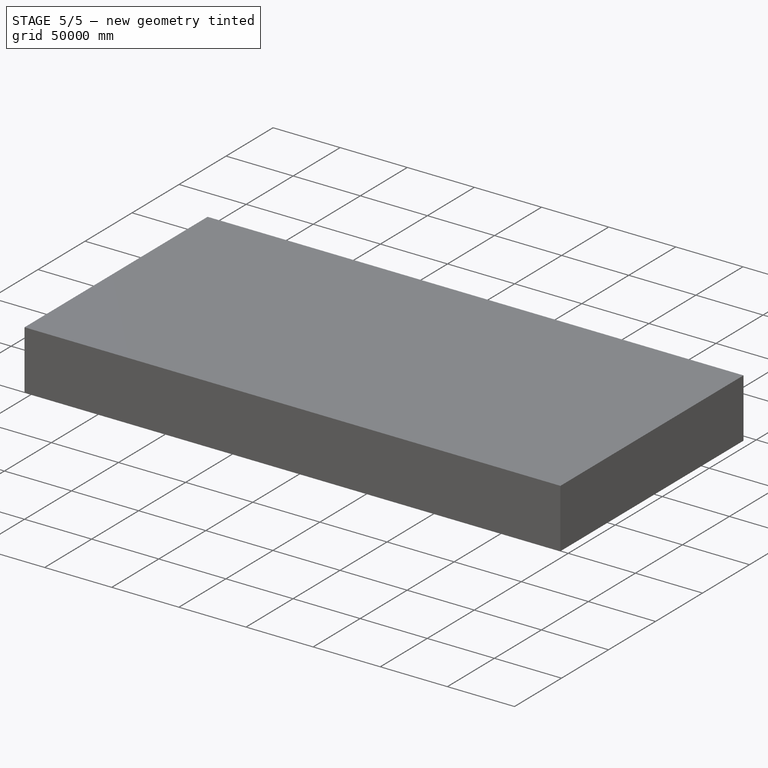
[diagram: stage 5 of 5 — iso view after this stage's code; geometry added in this stage tinted green]
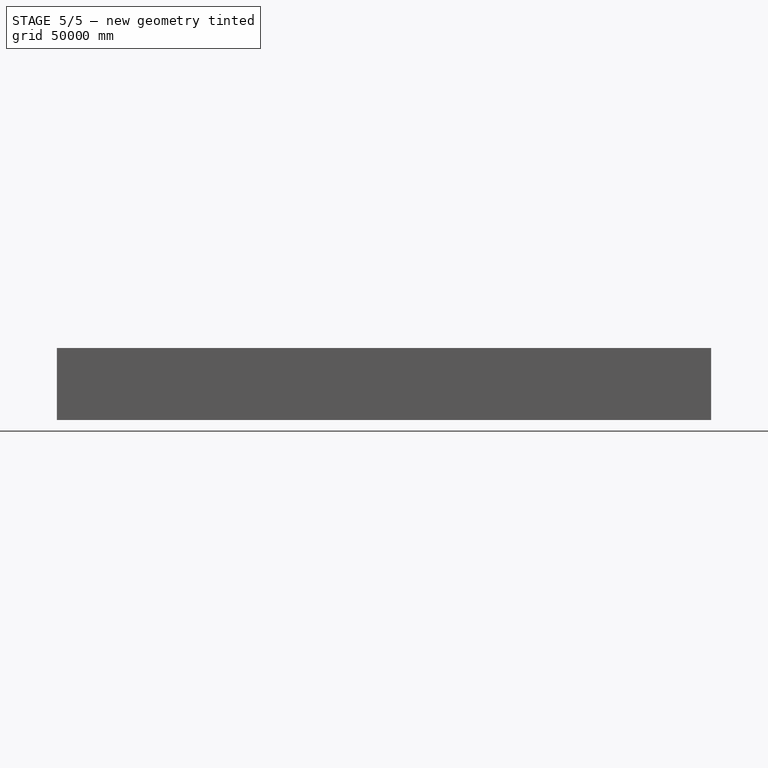
[diagram: stage 5 of 5 — front view after this stage's code; geometry added in this stage tinted green]
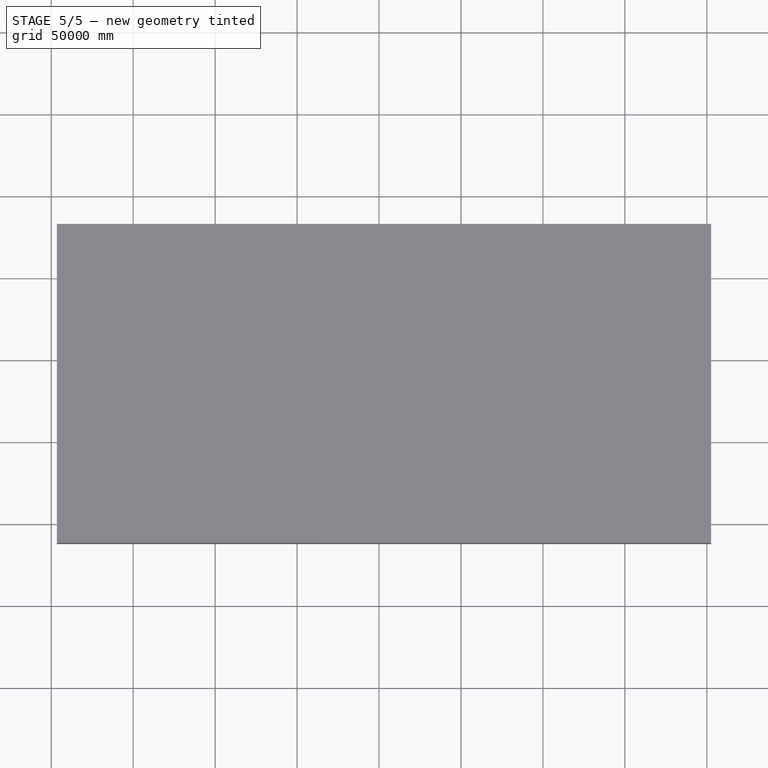
[diagram: stage 5 of 5 — top view after this stage's code; geometry added in this stage tinted green]
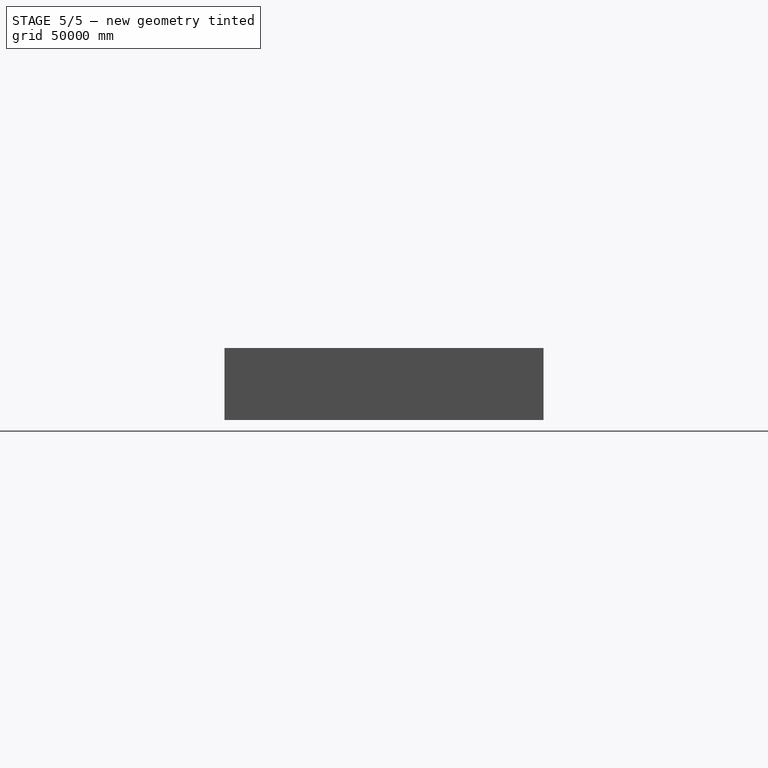
[diagram: stage 5 of 5 — right view after this stage's code; geometry added in this stage tinted green]
FEATURE [Sketcher::SketchObject] Sketch
  ArcFitTolerance = 1e-06
  AttachmentSupport = -> [XY_Plane]
  FullyConstrained = true
  MakeInternals = false
  MapMode = 5
  sketch-geometry (9):
    g0: LineSegment StartX=-18031.2 StartY=-44427.9 StartZ=0 EndX=-39747.8 EndY=-63771.4 EndZ=0
    g1: LineSegment StartX=-39747.8 StartY=-63771.4 StartZ=0 EndX=-39578.6 EndY=-68272.5 EndZ=0
    g2: LineSegment StartX=-39578.6 StartY=-68272.5 StartZ=0 EndX=-21871.2 EndY=-90664.6 EndZ=0
    g3: LineSegment StartX=-21871.2 StartY=-90664.6 StartZ=0 EndX=-5241.67 EndY=-79563.1 EndZ=0
    g4: LineSegment StartX=-5241.67 StartY=-79563.1 StartZ=0 EndX=-18031.2 EndY=-44427.9 EndZ=0
    g5: LineSegment StartX=-28651.6 StartY=-68649.5 StartZ=0 EndX=-26851.2 EndY=-72322.6 EndZ=0
    g6: LineSegment StartX=-26851.2 StartY=-72322.6 StartZ=0 EndX=-23267.3 EndY=-70625.8 EndZ=0
    g7: LineSegment StartX=-23267.3 StartY=-70625.8 StartZ=0 EndX=-25018 EndY=-66952.6 EndZ=0
    g8: LineSegment StartX=-25018 StartY=-66952.6 StartZ=0 EndX=-28651.6 EndY=-68649.5 EndZ=0
  constraints (9):
    c: Block(g0)
    c: Block(g1)
    c: Block(g2)
    c: Block(g3)
    c: Block(g4)
    c: Block(g5)
    c: Block(g6)
    c: Block(g7)
    c: Block(g8)
FEATURE [Image::ImagePlane] Bildschirmfoto_vom_2025_01_13_18_52_43  label="Bildschirmfoto vom 2025-01-13 18-52-43"
  Placement = pos=(0,0,-1000) rot=(0,0,1;0rad)
  XSize = 391840
  YSize = 220410
FEATURE [PartDesign::Pad] Pad
  Direction = (0,0,1)
  Length = 12000
  Length2 = 10
  Profile = -> Sketch
  ReferenceAxis = -> Sketch [N_Axis]
  Refine = true
  Suppressed = false
  Type = 0
FEATURE [PartDesign::Body] Body  label="Körper1"
  AllowCompound = false
  Group = -> [Sketch,Pad]
  Origin = -> Origin
  Tip = -> Pad
FEATURE [Sketcher::SketchObject] Sketch001
  ArcFitTolerance = 1e-06
  AttachmentSupport = -> [XY_Plane001]
  FullyConstrained = true
  MakeInternals = false
  MapMode = 5
  sketch-geometry (6):
    g0: LineSegment StartX=-42527.5 StartY=-44490 StartZ=0 EndX=-35904 EndY=-54252.1 EndZ=0
    g1: LineSegment StartX=-35904 StartY=-54252.1 StartZ=0 EndX=-17956.7 EndY=-39350.4 EndZ=0
    g2: LineSegment StartX=-17956.7 StartY=-39350.4 StartZ=0 EndX=-20824 EndY=-33677.9 EndZ=0
    g3: LineSegment StartX=-20824 StartY=-33677.9 StartZ=0 EndX=-37609.3 EndY=-44007.1 EndZ=0
    g4: LineSegment StartX=-37609.3 StartY=-44007.1 StartZ=0 EndX=-38781.9 EndY=-42111 EndZ=0
    g5: LineSegment StartX=-38781.9 StartY=-42111 StartZ=0 EndX=-42527.5 EndY=-44490 EndZ=0
  constraints (12):
    c: Coincident(g0,g1)
    c: Coincident(g1,g2)
    c: Coincident(g2,g3)
    c: Coincident(g3,g4)
    c: Coincident(g4,g5)
    c: Coincident(g5,g0)
    c: Block(g0)
    c: Block(g1)
    c: Block(g2)
    c: Block(g3)
    c: Block(g4)
    c: Block(g5)
FEATURE [PartDesign::Pad] Pad001
  Direction = (0,0,1)
  Length = 12000
  Length2 = 10
  Profile = -> Sketch001
  ReferenceAxis = -> Sketch001 [N_Axis]
  Refine = true
  Suppressed = false
  Type = 0
FEATURE [PartDesign::Body] Body001  label="Körper2"
  AllowCompound = false
  Group = -> [Sketch001,Pad001]
  Origin = -> Origin001
  Tip = -> Pad001
FEATURE [Sketcher::SketchObject] Sketch002
  ArcFitTolerance = 1e-06
  AttachmentSupport = -> [XY_Plane002]
  FullyConstrained = true
  MakeInternals = false
  MapMode = 5
  sketch-geometry (6):
    g0: LineSegment StartX=-21731.1 StartY=-34196.9 StartZ=0 EndX=-23965.2 EndY=-28848.6 EndZ=0
    g1: LineSegment StartX=-23965.2 StartY=-28848.6 StartZ=0 EndX=-38570.4 EndY=-36006.6 EndZ=0
    g2: LineSegment StartX=-38570.4 StartY=-36006.6 StartZ=0 EndX=-35826 EndY=-41420.5 EndZ=0
    g3: LineSegment StartX=-35826 StartY=-41420.5 StartZ=0 EndX=-27611.1 EndY=-37411.6 EndZ=0
    g4: LineSegment StartX=-27611.1 StartY=-37411.6 StartZ=0 EndX=-27415.7 EndY=-37674.6 EndZ=0
    g5: LineSegment StartX=-27415.7 StartY=-37674.6 StartZ=0 EndX=-21731.1 EndY=-34196.9 EndZ=0
  constraints (12):
    c: Coincident(g0,g1)
    c: Coincident(g1,g2)
    c: Coincident(g2,g3)
    c: Coincident(g3,g4)
    c: Coincident(g4,g5)
    c: Coincident(g5,g0)
    c: Block(g0)
    c: Block(g1)
    c: Block(g2)
    c: Block(g3)
    c: Block(g4)
    c: Block(g5)
FEATURE [PartDesign::Pad] Pad002
  Direction = (0,0,1)
  Length = 11000
  Length2 = 10
  Profile = -> Sketch002
  ReferenceAxis = -> Sketch002 [N_Axis]
  Refine = true
  Suppressed = false
  Type = 0
FEATURE [PartDesign::Body] Body002  label="Körper3"
  AllowCompound = false
  Group = -> [Sketch002,Pad002]
  Origin = -> Origin002
  Tip = -> Pad002
FEATURE [Sketcher::SketchObject] Sketch003
  ArcFitTolerance = 1e-06
  AttachmentSupport = -> [XY_Plane003]
  FullyConstrained = true
  MakeInternals = false
  MapMode = 5
  sketch-geometry (4):
    g0: LineSegment StartX=-21710.9 StartY=-27627.8 StartZ=0 EndX=-46117.6 EndY=-39419.9 EndZ=0
    g1: LineSegment StartX=-46117.6 StartY=-39419.9 StartZ=0 EndX=-51911.3 EndY=-27501 EndZ=0
    g2: LineSegment StartX=-51911.3 StartY=-27501 StartZ=0 EndX=-25909.7 EndY=-14750.9 EndZ=0
    g3: LineSegment StartX=-25909.7 StartY=-14750.9 StartZ=0 EndX=-21710.9 EndY=-27627.8 EndZ=0
  constraints (8):
    c: Coincident(g0,g1)
    c: Coincident(g1,g2)
    c: Coincident(g2,g3)
    c: Coincident(g3,g0)
    c: Block(g0)
    c: Block(g1)
    c: Block(g2)
    c: Block(g3)
FEATURE [PartDesign::Pad] Pad003
  Direction = (0,0,1)
  Length = 12000
  Length2 = 10
  Profile = -> Sketch003
  ReferenceAxis = -> Sketch003 [N_Axis]
  Refine = true
  Suppressed = false
  Type = 0
FEATURE [PartDesign::Body] Body003  label="Körper4"
  AllowCompound = false
  Group = -> [Sketch003,Pad003]
  Origin = -> Origin003
  Tip = -> Pad003
FEATURE [Sketcher::SketchObject] Sketch004
  ArcFitTolerance = 1e-06
  AttachmentSupport = -> [XY_Plane004]
  FullyConstrained = true
  MakeInternals = false
  MapMode = 5
  sketch-geometry (4):
    g0: LineSegment StartX=-57984.3 StartY=-25520.9 StartZ=0 EndX=-60429.2 EndY=-19664.7 EndZ=0
    g1: LineSegment StartX=-60429.2 StartY=-19664.7 StartZ=0 EndX=-24534.2 EndY=-4864.1 EndZ=0
    g2: LineSegment StartX=-24534.2 StartY=-4864.1 StartZ=0 EndX=-22099.1 EndY=-10668.4 EndZ=0
    g3: LineSegment StartX=-22099.1 StartY=-10668.4 StartZ=0 EndX=-57984.3 EndY=-25520.9 EndZ=0
  constraints (8):
    c: Coincident(g0,g1)
    c: Coincident(g1,g2)
    c: Coincident(g2,g3)
    c: Coincident(g3,g0)
    c: Block(g0)
    c: Block(g1)
    c: Block(g2)
    c: Block(g3)
FEATURE [PartDesign::Pad] Pad004
  Direction = (0,0,1)
  Length = 12000
  Length2 = 10
  Profile = -> Sketch004
  ReferenceAxis = -> Sketch004 [N_Axis]
  Refine = true
  Suppressed = false
  Type = 0
FEATURE [PartDesign::Body] Body004  label="Körper5"
  AllowCompound = false
  Group = -> [Sketch004,Pad004]
  Origin = -> Origin004
  Tip = -> Pad004
FEATURE [Sketcher::SketchObject] Sketch005
  ArcFitTolerance = 1e-06
  AttachmentSupport = -> [XY_Plane005]
  FullyConstrained = true
  MakeInternals = false
  MapMode = 5
  sketch-geometry (8):
    g0: LineSegment StartX=-24533.2 StartY=-4809.92 StartZ=0 EndX=-31854.1 EndY=-7839.83 EndZ=0
    g1: LineSegment StartX=-31854.1 StartY=-7839.83 StartZ=0 EndX=-36330.7 EndY=3064.04 EndZ=0
    g2: LineSegment StartX=-36330.7 StartY=3064.04 StartZ=0 EndX=-39742.3 EndY=1709.42 EndZ=0
    g3: LineSegment StartX=-39742.3 StartY=1709.42 StartZ=0 EndX=-40762.4 EndY=4050.74 EndZ=0
    g4: LineSegment StartX=-40762.4 StartY=4050.74 StartZ=0 EndX=-43572 EndY=3013.87 EndZ=0
    g5: LineSegment StartX=-43572 StartY=3013.87 StartZ=0 EndX=-46867 EndY=10951.3 EndZ=0
    g6: LineSegment StartX=-46867 StartY=10951.3 StartZ=0 EndX=-33366.8 EndY=16551.7 EndZ=0
    g7: LineSegment StartX=-33366.8 StartY=16551.7 StartZ=0 EndX=-24533.2 EndY=-4809.92 EndZ=0
  constraints (16):
    c: Coincident(g0,g1)
    c: Coincident(g1,g2)
    c: Coincident(g2,g3)
    c: Coincident(g3,g4)
    c: Coincident(g4,g5)
    c: Coincident(g5,g6)
    c: Coincident(g6,g7)
    c: Coincident(g7,g0)
    c: Block(g0)
    c: Block(g1)
    c: Block(g2)
    c: Block(g3)
    c: Block(g4)
    c: Block(g5)
    c: Block(g6)
    c: Block(g7)
FEATURE [PartDesign::Pad] Pad005
  Direction = (0,0,1)
  Length = 12000
  Length2 = 10
  Profile = -> Sketch005
  ReferenceAxis = -> Sketch005 [N_Axis]
  Refine = true
  Suppressed = false
  Type = 0
FEATURE [PartDesign::Body] Body005  label="Körper6"
  AllowCompound = false
  Group = -> [Sketch005,Pad005]
  Origin = -> Origin005
  Tip = -> Pad005
FEATURE [Sketcher::SketchObject] Sketch006
  ArcFitTolerance = 1e-06
  AttachmentSupport = -> [XY_Plane006]
  FullyConstrained = true
  MakeInternals = false
  MapMode = 5
  sketch-geometry (8):
    g0: LineSegment StartX=-33379.3 StartY=16576.5 StartZ=0 EndX=-38668.1 EndY=30980.6 EndZ=0
    g1: LineSegment StartX=-38668.1 StartY=30980.6 StartZ=0 EndX=-107153 EndY=2882.15 EndZ=0
    g2: LineSegment StartX=-107153 StartY=2882.15 StartZ=0 EndX=-103106 EndY=-6780.48 EndZ=0
    g3: LineSegment StartX=-103106 StartY=-6780.48 StartZ=0 EndX=-81717.1 EndY=2129.26 EndZ=0
    g4: LineSegment StartX=-81717.1 StartY=2129.26 StartZ=0 EndX=-76319.7 EndY=-10602.1 EndZ=0
    g5: LineSegment StartX=-76319.7 StartY=-10602.1 StartZ=0 EndX=-43605.4 EndY=2893.65 EndZ=0
    g6: LineSegment StartX=-43605.4 StartY=2893.65 StartZ=0 EndX=-46913.6 EndY=10972.1 EndZ=0
    g7: LineSegment StartX=-46913.6 StartY=10972.1 StartZ=0 EndX=-33379.3 EndY=16576.5 EndZ=0
  constraints (16):
    c: Coincident(g0,g1)
    c: Coincident(g1,g2)
    c: Coincident(g2,g3)
    c: Coincident(g3,g4)
    c: Coincident(g4,g5)
    c: Coincident(g5,g6)
    c: Coincident(g6,g7)
    c: Coincident(g7,g0)
    c: Block(g0)
    c: Block(g1)
    c: Block(g2)
    c: Block(g3)
    c: Block(g4)
    c: Block(g5)
    c: Block(g6)
    c: Block(g7)
FEATURE [PartDesign::Pad] Pad006
  Direction = (0,0,1)
  Length = 12500
  Length2 = 10
  Profile = -> Sketch006
  ReferenceAxis = -> Sketch006 [N_Axis]
  Refine = true
  Suppressed = false
  Type = 0
FEATURE [PartDesign::Body] Body006  label="Körper7"
  AllowCompound = false
  Group = -> [Sketch006,Pad006]
  Origin = -> Origin006
  Tip = -> Pad006
FEATURE [Sketcher::SketchObject] Sketch007
  ArcFitTolerance = 1e-06
  AttachmentSupport = -> [XY_Plane007]
  FullyConstrained = true
  MakeInternals = false
  MapMode = 5
  sketch-geometry (9):
    g0: LineSegment StartX=-74986.6 StartY=33313.2 StartZ=0 EndX=-71726.4 EndY=25466.7 EndZ=0
    g1: LineSegment StartX=-71726.4 StartY=25466.7 StartZ=0 EndX=-38818.4 EndY=39416 EndZ=0
    g2: LineSegment StartX=-38818.4 StartY=39416 StartZ=0 EndX=-43159.5 EndY=49732 EndZ=0
    g3: LineSegment StartX=-43159.5 StartY=49732 StartZ=0 EndX=-62557 EndY=76634.9 EndZ=0
    g4: LineSegment StartX=-62557 StartY=76634.9 StartZ=0 EndX=-96259.8 EndY=53401 EndZ=0
    g5: LineSegment StartX=-96259.8 StartY=53401 StartZ=0 EndX=-88567.9 EndY=39796.2 EndZ=0
    g6: LineSegment StartX=-88567.9 StartY=39796.2 StartZ=0 EndX=-59047.5 EndY=55418.7 EndZ=0
    g7: LineSegment StartX=-59047.5 StartY=55418.7 StartZ=0 EndX=-52718.9 EndY=44807.5 EndZ=0
    g8: LineSegment StartX=-52718.9 StartY=44807.5 StartZ=0 EndX=-74986.6 EndY=33313.2 EndZ=0
  constraints (18):
    c: Coincident(g0,g1)
    c: Coincident(g1,g2)
    c: Coincident(g2,g3)
    c: Coincident(g3,g4)
    c: Coincident(g4,g5)
    c: Coincident(g5,g6)
    c: Coincident(g6,g7)
    c: Coincident(g7,g8)
    c: Coincident(g8,g0)
    c: Block(g0)
    c: Block(g1)
    c: Block(g2)
    c: Block(g3)
    c: Block(g4)
    c: Block(g5)
    c: Block(g6)
    c: Block(g7)
    c: Block(g8)
FEATURE [PartDesign::Pad] Pad007
  Direction = (0,0,1)
  Length = 11500
  Length2 = 10
  Profile = -> Sketch007
  ReferenceAxis = -> Sketch007 [N_Axis]
  Refine = true
  Suppressed = false
  Type = 0
FEATURE [PartDesign::Body] Body007  label="Körper8"
  AllowCompound = false
  Group = -> [Sketch007,Pad007]
  Origin = -> Origin007
  Tip = -> Pad007
FEATURE [Sketcher::SketchObject] Sketch008
  ArcFitTolerance = 1e-06
  AttachmentSupport = -> [XY_Plane008]
  FullyConstrained = true
  MakeInternals = false
  MapMode = 5
  sketch-geometry (6):
    g0: LineSegment StartX=-30905.9 StartY=63140.8 StartZ=0 EndX=-19727.3 EndY=47284.3 EndZ=0
    g1: LineSegment StartX=-19727.3 StartY=47284.3 StartZ=0 EndX=-659.838 EndY=60310.9 EndZ=0
    g2: LineSegment StartX=-659.838 StartY=60310.9 StartZ=0 EndX=-10108.3 EndY=73324.2 EndZ=0
    g3: LineSegment StartX=-10108.3 StartY=73324.2 StartZ=0 EndX=-14172.5 EndY=70508.5 EndZ=0
    g4: LineSegment StartX=-14172.5 StartY=70508.5 StartZ=0 EndX=-16538.7 EndY=73856.5 EndZ=0
    g5: LineSegment StartX=-16538.7 StartY=73856.5 StartZ=0 EndX=-30905.9 EndY=63140.8 EndZ=0
  constraints (12):
    c: Coincident(g0,g1)
    c: Coincident(g1,g2)
    c: Coincident(g2,g3)
    c: Coincident(g3,g4)
    c: Coincident(g4,g5)
    c: Coincident(g5,g0)
    c: Block(g0)
    c: Block(g1)
    c: Block(g2)
    c: Block(g3)
    c: Block(g4)
    c: Block(g5)
FEATURE [PartDesign::Pad] Pad008
  Direction = (0,0,1)
  Length = 16000
  Length2 = 10
  Profile = -> Sketch008
  ReferenceAxis = -> Sketch008 [N_Axis]
  Refine = true
  Suppressed = false
  Type = 0
FEATURE [PartDesign::Body] Body008  label="Körper9"
  AllowCompound = false
  Group = -> [Sketch008,Pad008]
  Origin = -> Origin008
  Tip = -> Pad008
FEATURE [Sketcher::SketchObject] Sketch009
  ArcFitTolerance = 1e-06
  AttachmentSupport = -> [XY_Plane009]
  FullyConstrained = true
  MakeInternals = false
  MapMode = 5
  sketch-geometry (17):
    g0: LineSegment StartX=-8740.02 StartY=44098.2 StartZ=0 EndX=6300.3 EndY=58585.6 EndZ=0
    g1: LineSegment StartX=6300.3 StartY=58585.6 StartZ=0 EndX=8019.4 EndY=56784.6 EndZ=0
    g2: LineSegment StartX=8019.4 StartY=56784.6 StartZ=0 EndX=14555.6 EndY=61738.9 EndZ=0
    g3: LineSegment StartX=14555.6 StartY=61738.9 StartZ=0 EndX=26928.5 EndY=53641.5 EndZ=0
    g4: LineSegment StartX=26928.5 StartY=53641.5 StartZ=0 EndX=18495.3 EndY=45191.4 EndZ=0
    g5: LineSegment StartX=18495.3 StartY=45191.4 StartZ=0 EndX=14135.9 EndY=48966.2 EndZ=0
    g6: LineSegment StartX=14135.9 StartY=48966.2 StartZ=0 EndX=12611.9 EndY=47471.8 EndZ=0
    g7: LineSegment StartX=12611.9 StartY=47471.8 StartZ=0 EndX=18178.5 EndY=42655.6 EndZ=0
    g8: LineSegment StartX=18178.5 StartY=42655.6 StartZ=0 EndX=28319.8 EndY=52632.7 EndZ=0
    g9: LineSegment StartX=28319.8 StartY=52632.7 StartZ=0 EndX=33572.6 EndY=49249.1 EndZ=0
    g10: LineSegment StartX=33572.6 StartY=49249.1 StartZ=0 EndX=35526.5 EndY=51560.2 EndZ=0
    g11: LineSegment StartX=35526.5 StartY=51560.2 StartZ=0 EndX=50758.6 EndY=45101.2 EndZ=0
    g12: LineSegment StartX=50758.6 StartY=45101.2 StartZ=0 EndX=21976.2 EndY=18824.4 EndZ=0
    g13: LineSegment StartX=21976.2 StartY=18824.4 StartZ=0 EndX=7300.02 EndY=31472.4 EndZ=0
    g14: LineSegment StartX=7300.02 StartY=31472.4 StartZ=0 EndX=5864.16 EndY=30155.4 EndZ=0
    g15: LineSegment StartX=-8740.02 StartY=44098.2 StartZ=0 EndX=321.067 EndY=35989.8 EndZ=0
    g16: LineSegment StartX=321.067 StartY=35989.8 StartZ=0 EndX=5864.16 EndY=30155.4 EndZ=0
  constraints (17):
    c: Block(g0)
    c: Block(g1)
    c: Block(g2)
    c: Block(g3)
    c: Block(g4)
    c: Block(g5)
    c: Block(g6)
    c: Block(g7)
    c: Block(g8)
    c: Block(g9)
    c: Block(g10)
    c: Block(g11)
    c: Block(g12)
    c: Block(g13)
    c: Block(g14)
    c: Block(g15)
    c: Block(g16)
FEATURE [PartDesign::Pad] Pad009
  Direction = (0,0,1)
  Length = 12200
  Length2 = 10
  Profile = -> Sketch009
  ReferenceAxis = -> Sketch009 [N_Axis]
  Refine = true
  Suppressed = false
  Type = 0
FEATURE [PartDesign::Body] Body009  label="Körper10"
  AllowCompound = false
  Group = -> [Sketch009,Pad009]
  Origin = -> Origin009
  Tip = -> Pad009
FEATURE [Sketcher::SketchObject] Sketch010
  ArcFitTolerance = 1e-06
  AttachmentSupport = -> [XY_Plane011]
  FullyConstrained = true
  MakeInternals = false
  MapMode = 5
  sketch-geometry (16):
    g0: LineSegment StartX=-1775.28 StartY=-12758.5 StartZ=0 EndX=2385.37 EndY=-9198.87 EndZ=0
    g1: ArcOfCircle CenterX=4093.84 CenterY=-11195.8 CenterZ=0 NormalX=0 NormalY=0 NormalZ=1 AngleXU=0 Radius=2628.04 StartAngle=1.00168 EndAngle=2.2785
    g2: LineSegment StartX=5510.05 StartY=-8982 StartZ=0 EndX=9494.87 EndY=-13923.1 EndZ=0
    g3: ArcOfCircle CenterX=7449.18 CenterY=-15572.8 CenterZ=0 NormalX=0 NormalY=0 NormalZ=1 AngleXU=0 Radius=2628.04 StartAngle=5.64612 EndAngle=6.96186
    g4: LineSegment StartX=9561.73 StartY=-17136.1 StartZ=0 EndX=4898.05 EndY=-21126.1 EndZ=0
    g5: ArcOfCircle CenterX=3189.58 CenterY=-19129.1 CenterZ=0 NormalX=0 NormalY=0 NormalZ=1 AngleXU=0 Radius=2628.04 StartAngle=4.03331 EndAngle=5.42009
    g6: LineSegment StartX=1538.97 StartY=-21174.2 StartZ=0 EndX=-2230.35 EndY=-16500.3 EndZ=0
    g7: ArcOfCircle CenterX=-184.668 CenterY=-14850.5 CenterZ=0 NormalX=0 NormalY=0 NormalZ=1 AngleXU=0 Radius=2628.04 StartAngle=2.22087 EndAngle=3.82027
    g8: LineSegment StartX=-1356.54 StartY=-13640.1 StartZ=0 EndX=2816.4 EndY=-10038.3 EndZ=0
    g9: ArcOfCircle CenterX=4080.48 CenterY=-11502.8 CenterZ=0 NormalX=0 NormalY=0 NormalZ=1 AngleXU=0 Radius=1934.62 StartAngle=0.87775 EndAngle=2.28286
    g10: LineSegment StartX=5316.47 StartY=-10014.5 StartZ=0 EndX=8943.58 EndY=-14687.6 EndZ=0
    g11: ArcOfCircle CenterX=7722.89 CenterY=-15635 CenterZ=0 NormalX=0 NormalY=0 NormalZ=1 AngleXU=0 Radius=1545.25 StartAngle=5.56646 EndAngle=6.94323
    g12: LineSegment StartX=8887.95 StartY=-16650.1 StartZ=0 EndX=4289.31 EndY=-20621.9 EndZ=0
    g13: ArcOfCircle CenterX=3358.28 CenterY=-19543.9 CenterZ=0 NormalX=0 NormalY=0 NormalZ=1 AngleXU=0 Radius=1424.38 StartAngle=3.85886 EndAngle=5.42477
    g14: LineSegment StartX=2284.86 StartY=-20480.2 StartZ=0 EndX=-1708.78 EndY=-15614.4 EndZ=0
    g15: ArcOfCircle CenterX=-689.321 CenterY=-14777.7 CenterZ=0 NormalX=0 NormalY=0 NormalZ=1 AngleXU=0 Radius=1318.87 StartAngle=2.10122 EndAngle=3.82887
  constraints (37):
    c: Tangent(g0,g1) = 1.5708
    c: Coincident(g1,g2)
    c: Tangent(g2,g3) = 1.5708
    c: Coincident(g3,g4)
    c: Tangent(g4,g5) = 1.5708
    c: Coincident(g5,g6)
    c: Tangent(g6,g7) = 1.5708
    c: Coincident(g7,g0)
    c: Parallel(g6,g2)
    c: Parallel(g0,g4)
    c: Equal(g7,g1)
    c: Equal(g1,g3)
    c: Equal(g3,g5)
    c: Block(g0)
    c: Block(g1)
    c: Block(g2)
    c: Block(g3)
    c: Block(g4)
    c: Block(g5)
    c: Block(g6)
    c: Block(g7)
    c: Tangent(g8,g9) = 1.5708
    c: Coincident(g9,g10)
    c: Tangent(g10,g11) = 1.5708
    c: Coincident(g11,g12)
    c: Tangent(g12,g13) = 1.5708
    c: Coincident(g13,g14)
    c: Tangent(g14,g15) = 1.5708
    c: Coincident(g15,g8)
    c: Block(g8)
    c: Block(g9)
    c: Block(g10)
    c: Block(g11)
    c: Block(g12)
    c: Block(g13)
    c: Block(g14)
    c: Block(g15)
FEATURE [PartDesign::Pad] Pad010
  Direction = (0,0,1)
  Length = 1500
  Length2 = 10
  Profile = -> Sketch010
  ReferenceAxis = -> Sketch010 [N_Axis]
  Refine = true
  Suppressed = false
  Type = 0
FEATURE [PartDesign::Body] Body011  label="Körper11"
  AllowCompound = false
  Group = -> [Sketch010,Pad010]
  Origin = -> Origin011
  Tip = -> Pad010
FEATURE [Sketcher::SketchObject] Sketch011
  ArcFitTolerance = 1e-06
  AttachmentSupport = -> [XY_Plane012]
  FullyConstrained = true
  MakeInternals = false
  MapMode = 5
  sketch-geometry (4):
    g0: LineSegment StartX=-196560 StartY=82658.8 StartZ=0 EndX=-196560 EndY=-112046 EndZ=0
    g1: LineSegment StartX=-196560 StartY=-112046 StartZ=0 EndX=202605 EndY=-112046 EndZ=0
    g2: LineSegment StartX=202605 StartY=-112046 StartZ=0 EndX=202605 EndY=82658.8 EndZ=0
    g3: LineSegment StartX=-196560 StartY=82658.8 StartZ=0 EndX=202605 EndY=82658.8 EndZ=0
  constraints (12):
    c: Coincident(g1,g2)
    c: Coincident(g1,g0)
    c: Horizontal(g3)
    c: Vertical(g2)
    c: Coincident(g3,g2)
    c: Vertical(g0)
    c: Coincident(g0,g3)
    c: Horizontal(g1)
    c: Block(g0)
    c: Block(g1)
    c: Block(g2)
    c: Block(g3)
FEATURE [PartDesign::Pad] Pad011
  Direction = (0,0,1)
  Length = 1000
  Length2 = 10
  Profile = -> Sketch011
  ReferenceAxis = -> Sketch011 [N_Axis]
  Refine = true
  Reversed = true
  Suppressed = false
  Type = 0
FEATURE [PartDesign::Body] Body012  label="BODEN"
  AllowCompound = false
  Group = -> [Sketch011,Pad011]
  Origin = -> Origin012
  Tip = -> Pad011
FEATURE [Sketcher::SketchObject] Sketch012
  ArcFitTolerance = 1e-06
  AttachmentSupport = -> [XY_Plane013]
  FullyConstrained = true
  MakeInternals = false
  MapMode = 5
  sketch-geometry (8):
    g0: LineSegment StartX=55489.3 StartY=49200.9 StartZ=0 EndX=23462.5 EndY=20074.6 EndZ=0
    g1: LineSegment StartX=23462.5 StartY=20074.6 StartZ=0 EndX=37713.4 EndY=4457.1 EndZ=0
    g2: LineSegment StartX=37713.4 StartY=4457.1 StartZ=0 EndX=50200.7 EndY=15641.9 EndZ=0
    g3: LineSegment StartX=50200.7 StartY=15641.9 StartZ=0 EndX=46653.6 EndY=19386.1 EndZ=0
    g4: LineSegment StartX=46653.6 StartY=19386.1 StartZ=0 EndX=55654.3 EndY=27681.1 EndZ=0
    g5: LineSegment StartX=55654.3 StartY=27681.1 StartZ=0 EndX=59299.3 EndY=24067.6 EndZ=0
    g6: LineSegment StartX=59299.3 StartY=24067.6 StartZ=0 EndX=69343.5 EndY=33310.8 EndZ=0
    g7: LineSegment StartX=69343.5 StartY=33310.8 StartZ=0 EndX=55489.3 EndY=49200.9 EndZ=0
  constraints (16):
    c: Coincident(g0,g1)
    c: Coincident(g1,g2)
    c: Coincident(g2,g3)
    c: Coincident(g3,g4)
    c: Coincident(g4,g5)
    c: Coincident(g5,g6)
    c: Coincident(g6,g7)
    c: Coincident(g7,g0)
    c: Block(g0)
    c: Block(g1)
    c: Block(g2)
    c: Block(g3)
    c: Block(g4)
    c: Block(g5)
    c: Block(g6)
    c: Block(g7)
FEATURE [PartDesign::Pad] Pad012
  Direction = (0,0,1)
  Length = 12000
  Length2 = 10
  Profile = -> Sketch012
  ReferenceAxis = -> Sketch012 [N_Axis]
  Refine = true
  Suppressed = false
  Type = 0
FEATURE [PartDesign::Body] Body013  label="Körper12"
  AllowCompound = false
  Group = -> [Sketch012,Pad012]
  Origin = -> Origin013
  Tip = -> Pad012
FEATURE [Sketcher::SketchObject] Sketch013
  ArcFitTolerance = 1e-06
  AttachmentSupport = -> [XY_Plane014]
  FullyConstrained = true
  MakeInternals = false
  MapMode = 5
  sketch-geometry (10):
    g0: LineSegment StartX=37218.7 StartY=3891.69 StartZ=0 EndX=52503.9 EndY=17599.3 EndZ=0
    g1: LineSegment StartX=52503.9 StartY=17599.3 StartZ=0 EndX=56267 EndY=14314.3 EndZ=0
    g2: LineSegment StartX=56267 StartY=14314.3 StartZ=0 EndX=63844.6 EndY=21392.8 EndZ=0
    g3: LineSegment StartX=63844.6 StartY=21392.8 StartZ=0 EndX=60103.7 EndY=24713.3 EndZ=0
    g4: LineSegment StartX=60103.7 StartY=24713.3 StartZ=0 EndX=73301.5 EndY=36909.3 EndZ=0
    g5: LineSegment StartX=73301.5 StartY=36909.3 StartZ=0 EndX=82061.8 EndY=29093.2 EndZ=0
    g6: LineSegment StartX=82061.8 StartY=29093.2 StartZ=0 EndX=71318 EndY=17814.1 EndZ=0
    g7: LineSegment StartX=71318 StartY=17814.1 StartZ=0 EndX=72179.5 EndY=17068.5 EndZ=0
    g8: LineSegment StartX=72179.5 StartY=17068.5 StartZ=0 EndX=46495.1 EndY=-6434.04 EndZ=0
    g9: LineSegment StartX=46495.1 StartY=-6434.04 StartZ=0 EndX=37218.7 EndY=3891.69 EndZ=0
  constraints (20):
    c: Coincident(g0,g1)
    c: Coincident(g1,g2)
    c: Coincident(g2,g3)
    c: Coincident(g3,g4)
    c: Coincident(g4,g5)
    c: Coincident(g5,g6)
    c: Coincident(g6,g7)
    c: Coincident(g7,g8)
    c: Coincident(g8,g9)
    c: Coincident(g9,g0)
    c: Block(g0)
    c: Block(g1)
    c: Block(g2)
    c: Block(g3)
    c: Block(g4)
    c: Block(g5)
    c: Block(g6)
    c: Block(g7)
    c: Block(g8)
    c: Block(g9)
FEATURE [PartDesign::Pad] Pad013
  Direction = (0,0,1)
  Length = 11900
  Length2 = 10
  Profile = -> Sketch013
  ReferenceAxis = -> Sketch013 [N_Axis]
  Refine = true
  Suppressed = false
  Type = 0
FEATURE [PartDesign::Body] Body014  label="Körper13"
  AllowCompound = false
  Group = -> [Sketch013,Pad013]
  Origin = -> Origin014
  Tip = -> Pad013
FEATURE [Sketcher::SketchObject] Sketch014
  ArcFitTolerance = 1e-06
  AttachmentSupport = -> [XY_Plane015]
  FullyConstrained = true
  MakeInternals = false
  MapMode = 5
  sketch-geometry (17):
    g0: LineSegment StartX=48907.4 StartY=-8855.14 StartZ=0 EndX=58134.5 EndY=-18258.6 EndZ=0
    g1: LineSegment StartX=58134.5 StartY=-18258.6 StartZ=0 EndX=57280.1 EndY=-19145.4 EndZ=0
    g2: LineSegment StartX=57280.1 StartY=-19145.4 StartZ=0 EndX=67211.3 EndY=-27199.7 EndZ=0
    g3: LineSegment StartX=67211.3 StartY=-27199.7 StartZ=0 EndX=81232.9 EndY=-13442.2 EndZ=0
    g4: LineSegment StartX=81232.9 StartY=-13442.2 StartZ=0 EndX=89064.2 EndY=-8052.68 EndZ=0
    g5: LineSegment StartX=89064.2 StartY=-8052.68 StartZ=0 EndX=93276.7 EndY=-2932.85 EndZ=0
    g6: LineSegment StartX=93276.7 StartY=-2932.85 StartZ=0 EndX=88687.9 EndY=2430.89 EndZ=0
    g7: LineSegment StartX=88687.9 StartY=2430.89 StartZ=0 EndX=99246.7 EndY=14384 EndZ=0
    g8: LineSegment StartX=99246.7 StartY=14384 StartZ=0 EndX=94597.5 EndY=18095.2 EndZ=0
    g9: LineSegment StartX=94597.5 StartY=18095.2 StartZ=0 EndX=85018.6 EndY=26793.1 EndZ=0
    g10: LineSegment StartX=85018.6 StartY=26793.1 StartZ=0 EndX=48907.4 EndY=-8855.14 EndZ=0
    g11: LineSegment StartX=80044.5 StartY=12200.9 StartZ=0 EndX=84368.4 EndY=7957.68 EndZ=0
    g12: LineSegment StartX=84368.4 StartY=7957.68 StartZ=0 EndX=72524.2 EndY=-3910.31 EndZ=0
    g13: LineSegment StartX=72524.2 StartY=-3910.31 StartZ=0 EndX=70572 EndY=-1651.58 EndZ=0
    g14: LineSegment StartX=70572 StartY=-1651.58 StartZ=0 EndX=75301.2 EndY=3694.78 EndZ=0
    g15: LineSegment StartX=75301.2 StartY=3694.78 StartZ=0 EndX=73623.3 EndY=5582.43 EndZ=0
    g16: LineSegment StartX=73623.3 StartY=5582.43 StartZ=0 EndX=80044.5 EndY=12200.9 EndZ=0
  constraints (34):
    c: Coincident(g0,g1)
    c: Coincident(g1,g2)
    c: Coincident(g2,g3)
    c: Coincident(g3,g4)
    c: Coincident(g4,g5)
    c: Coincident(g5,g6)
    c: Coincident(g6,g7)
    c: Coincident(g7,g8)
    c: Coincident(g8,g9)
    c: Coincident(g9,g10)
    c: Coincident(g10,g0)
    c: Coincident(g11,g12)
    c: Coincident(g12,g13)
    c: Coincident(g13,g14)
    c: Coincident(g14,g15)
    c: Coincident(g15,g16)
    c: Coincident(g16,g11)
    c: Block(g0)
    c: Block(g1)
    c: Block(g2)
    c: Block(g3)
    c: Block(g4)
    c: Block(g5)
    c: Block(g6)
    c: Block(g7)
    c: Block(g8)
    c: Block(g9)
    c: Block(g10)
    c: Block(g11)
    c: Block(g12)
    c: Block(g13)
    c: Block(g14)
    c: Block(g15)
    c: Block(g16)
FEATURE [PartDesign::Pad] Pad014
  Direction = (0,0,1)
  Length = 12200
  Length2 = 10
  Profile = -> Sketch014
  ReferenceAxis = -> Sketch014 [N_Axis]
  Refine = true
  Suppressed = false
  Type = 0
FEATURE [PartDesign::Body] Body015  label="Körper14"
  AllowCompound = false
  Group = -> [Sketch014,Pad014]
  Origin = -> Origin015
  Tip = -> Pad014
FEATURE [Sketcher::SketchObject] Sketch015
  ArcFitTolerance = 1e-06
  AttachmentSupport = -> [XY_Plane016]
  FullyConstrained = true
  MakeInternals = false
  MapMode = 5
  sketch-geometry (31):
    g0: LineSegment StartX=67263.1 StartY=-27230.7 StartZ=0 EndX=79455.5 EndY=-41427.5 EndZ=0
    g1: LineSegment StartX=79455.5 StartY=-41427.5 StartZ=0 EndX=90842.9 EndY=-53543.6 EndZ=0
    g2: LineSegment StartX=90842.9 StartY=-53543.6 StartZ=0 EndX=102425 EndY=-66678.7 EndZ=0
    g3: LineSegment StartX=102425 StartY=-66678.7 StartZ=0 EndX=119014 EndY=-50376 EndZ=0
    g4: LineSegment StartX=119014 StartY=-50376 StartZ=0 EndX=109945 EndY=-41433.4 EndZ=0
    g5: LineSegment StartX=109945 StartY=-41433.4 StartZ=0 EndX=127310 EndY=-24972.6 EndZ=0
    g6: LineSegment StartX=127310 StartY=-24972.6 StartZ=0 EndX=128381 EndY=-25734.1 EndZ=0
    g7: LineSegment StartX=128381 StartY=-25734.1 StartZ=0 EndX=148994 EndY=-5081.71 EndZ=0
    g8: LineSegment StartX=148994 StartY=-5081.71 StartZ=0 EndX=126406 EndY=10324.8 EndZ=0
    g9: LineSegment StartX=126406 StartY=10324.8 StartZ=0 EndX=113708 EndY=18427.9 EndZ=0
    g10: LineSegment StartX=113708 StartY=18427.9 StartZ=0 EndX=88804.5 EndY=33953 EndZ=0
    g11: LineSegment StartX=88804.5 StartY=33953 StartZ=0 EndX=84931 EndY=28931.9 EndZ=0
    g12: LineSegment StartX=84931 StartY=28931.9 StartZ=0 EndX=86163.9 EndY=27904.5 EndZ=0
    g13: LineSegment StartX=86163.9 StartY=27904.5 StartZ=0 EndX=85100.9 EndY=26812.2 EndZ=0
    g14: LineSegment StartX=85100.9 StartY=26812.2 StartZ=0 EndX=104945 EndY=9299.37 EndZ=0
    g15: LineSegment StartX=104945 StartY=9299.37 StartZ=0 EndX=93416.9 EndY=-2944.01 EndZ=0
    g16: LineSegment StartX=93416.9 StartY=-2944.01 StartZ=0 EndX=89138.8 EndY=-8046.58 EndZ=0
    g17: LineSegment StartX=89138.8 StartY=-8046.58 StartZ=0 EndX=81292.2 EndY=-13533.5 EndZ=0
    g18: LineSegment StartX=81292.2 StartY=-13533.5 StartZ=0 EndX=67263.1 EndY=-27230.7 EndZ=0
    g19: LineSegment StartX=123919 StartY=-4864.09 StartZ=0 EndX=131607 EndY=-10550.9 EndZ=0
    g20: LineSegment StartX=131607 StartY=-10550.9 StartZ=0 EndX=121778 EndY=-20730.1 EndZ=0
    g21: LineSegment StartX=121778 StartY=-20730.1 StartZ=0 EndX=122329 EndY=-21206 EndZ=0
    g22: LineSegment StartX=122329 StartY=-21206 StartZ=0 EndX=107389 EndY=-35805.3 EndZ=0
    g23: LineSegment StartX=107389 StartY=-35805.3 StartZ=0 EndX=100962 EndY=-29983.5 EndZ=0
    g24: LineSegment StartX=100962 StartY=-29983.5 StartZ=0 EndX=123919 EndY=-4864.09 EndZ=0
    g25: LineSegment StartX=95027.6 StartY=-24655.9 StartZ=0 EndX=93845.2 EndY=-23552.3 EndZ=0
    g26: LineSegment StartX=93845.2 StartY=-23552.3 StartZ=0 EndX=99574.1 EndY=-17344.5 EndZ=0
    g27: LineSegment StartX=99574.1 StartY=-17344.5 StartZ=0 EndX=95230.7 EndY=-13048.2 EndZ=0
    g28: LineSegment StartX=95230.7 StartY=-13048.2 StartZ=0 EndX=110336 EndY=5088.62 EndZ=0
    g29: LineSegment StartX=110336 StartY=5088.62 StartZ=0 EndX=117387 EndY=290.836 EndZ=0
    g30: LineSegment StartX=117387 StartY=290.836 StartZ=0 EndX=95027.6 EndY=-24655.9 EndZ=0
  constraints (62):
    c: Coincident(g0,g1)
    c: Coincident(g1,g2)
    c: Coincident(g2,g3)
    c: Coincident(g3,g4)
    c: Coincident(g4,g5)
    c: Coincident(g5,g6)
    c: Coincident(g6,g7)
    c: Coincident(g7,g8)
    c: Coincident(g8,g9)
    c: Coincident(g9,g10)
    c: Coincident(g10,g11)
    c: Coincident(g11,g12)
    c: Coincident(g12,g13)
    c: Coincident(g13,g14)
    c: Coincident(g14,g15)
    c: Coincident(g15,g16)
    c: Coincident(g16,g17)
    c: Coincident(g17,g18)
    c: Coincident(g18,g0)
    c: Coincident(g19,g20)
    c: Coincident(g20,g21)
    c: Coincident(g21,g22)
    c: Coincident(g22,g23)
    c: Coincident(g23,g24)
    c: Coincident(g24,g19)
    c: Coincident(g25,g26)
    c: Coincident(g26,g27)
    c: Coincident(g27,g28)
    c: Coincident(g28,g29)
    c: Coincident(g29,g30)
    c: Coincident(g30,g25)
    c: Block(g0)
    c: Block(g1)
    c: Block(g2)
    c: Block(g3)
    c: Block(g4)
    c: Block(g5)
    c: Block(g6)
    c: Block(g7)
    c: Block(g8)
    c: Block(g9)
    c: Block(g10)
    c: Block(g11)
    c: Block(g12)
    c: Block(g13)
    c: Block(g14)
    c: Block(g15)
    c: Block(g16)
    c: Block(g17)
    c: Block(g18)
    c: Block(g19)
    c: Block(g20)
    c: Block(g21)
    c: Block(g22)
    c: Block(g23)
    c: Block(g24)
    c: Block(g25)
    c: Block(g26)
    c: Block(g27)
    c: Block(g28)
    c: Block(g29)
    c: Block(g30)
FEATURE [PartDesign::Pad] Pad015
  Direction = (0,0,1)
  Length = 12150
  Length2 = 10
  Profile = -> Sketch015
  ReferenceAxis = -> Sketch015 [N_Axis]
  Refine = true
  Suppressed = false
  Type = 0
FEATURE [PartDesign::Body] Body016  label="Körper15"
  AllowCompound = false
  Group = -> [Sketch015,Pad015]
  Origin = -> Origin016
  Tip = -> Pad015
FEATURE [Sketcher::SketchObject] Sketch016
  ArcFitTolerance = 1e-06
  AttachmentSupport = -> [XY_Plane017]
  FullyConstrained = true
  MakeInternals = false
  MapMode = 5
  sketch-geometry (15):
    g0: LineSegment StartX=71247.3 StartY=-58329.9 StartZ=0 EndX=50938.6 EndY=-35145.3 EndZ=0
    g1: LineSegment StartX=50938.6 StartY=-35145.3 StartZ=0 EndX=35658.7 EndY=-47575 EndZ=0
    g2: LineSegment StartX=35658.7 StartY=-47575 StartZ=0 EndX=32434.6 EndY=-43330.7 EndZ=0
    g3: LineSegment StartX=32434.6 StartY=-43330.7 StartZ=0 EndX=20512.6 EndY=-53706.9 EndZ=0
    g4: LineSegment StartX=20512.6 StartY=-53706.9 StartZ=0 EndX=25118.3 EndY=-58978 EndZ=0
    g5: LineSegment StartX=25118.3 StartY=-58978 StartZ=0 EndX=9216.35 EndY=-72948.3 EndZ=0
    g6: LineSegment StartX=9216.35 StartY=-72948.3 StartZ=0 EndX=7468.73 EndY=-94096.2 EndZ=0
    g7: LineSegment StartX=7468.73 StartY=-94096.2 StartZ=0 EndX=14204.2 EndY=-106264 EndZ=0
    g8: LineSegment StartX=14204.2 StartY=-106264 StartZ=0 EndX=81544.8 EndY=-106264 EndZ=0
    g9: LineSegment StartX=81544.8 StartY=-106264 StartZ=0 EndX=99436.8 EndY=-90692.1 EndZ=0
    g10: LineSegment StartX=99436.8 StartY=-90692.1 StartZ=0 EndX=77744.6 EndY=-65791 EndZ=0
    g11: LineSegment StartX=77744.6 StartY=-65791 StartZ=0 EndX=45229.7 EndY=-90083.8 EndZ=0
    g12: LineSegment StartX=45229.7 StartY=-90083.8 StartZ=0 EndX=46313.7 EndY=-67426.8 EndZ=0
    g13: LineSegment StartX=46313.7 StartY=-67426.8 StartZ=0 EndX=51344.1 EndY=-74117.9 EndZ=0
    g14: LineSegment StartX=51344.1 StartY=-74117.9 StartZ=0 EndX=71247.3 EndY=-58329.9 EndZ=0
  constraints (31):
    c: Coincident(g0,g1)
    c: Coincident(g1,g2)
    c: Coincident(g2,g3)
    c: Coincident(g3,g4)
    c: Coincident(g4,g5)
    c: Coincident(g5,g6)
    c: Coincident(g6,g7)
    c: Coincident(g7,g8)
    c: Horizontal(g8)
    c: Coincident(g8,g9)
    c: Coincident(g9,g10)
    c: Coincident(g10,g11)
    c: Coincident(g11,g12)
    c: Coincident(g12,g13)
    c: Coincident(g13,g14)
    c: Coincident(g14,g0)
    c: Block(g0)
    c: Block(g1)
    c: Block(g2)
    c: Block(g3)
    c: Block(g4)
    c: Block(g5)
    c: Block(g6)
    c: Block(g7)
    c: Block(g8)
    c: Block(g9)
    c: Block(g10)
    c: Block(g11)
    c: Block(g12)
    c: Block(g13)
    c: Block(g14)
FEATURE [PartDesign::Pad] Pad016
  Direction = (0,0,1)
  Length = 12000
  Length2 = 10
  Profile = -> Sketch016
  ReferenceAxis = -> Sketch016 [N_Axis]
  Refine = true
  Suppressed = false
  Type = 0
FEATURE [PartDesign::Body] Body017  label="Körper16"
  AllowCompound = false
  Group = -> [Sketch016,Pad016]
  Origin = -> Origin017
  Tip = -> Pad016
FEATURE [Sketcher::SketchObject] Sketch017
  ArcFitTolerance = 1e-06
  AttachmentSupport = -> [XY_Plane018]
  FullyConstrained = true
  MakeInternals = false
  MapMode = 5
  sketch-geometry (4):
    g0: LineSegment StartX=-2516.32 StartY=-108178 StartZ=0 EndX=-7107.1 EndY=-99808.6 EndZ=0
    g1: LineSegment StartX=-7107.1 StartY=-99808.6 StartZ=0 EndX=-20978.9 EndY=-96973.9 EndZ=0
    g2: LineSegment StartX=-20978.9 StartY=-96973.9 StartZ=0 EndX=-34001.3 EndY=-108178 EndZ=0
    g3: LineSegment StartX=-34001.3 StartY=-108178 StartZ=0 EndX=-2516.32 EndY=-108178 EndZ=0
  constraints (9):
    c: Coincident(g0,g1)
    c: Coincident(g1,g2)
    c: Coincident(g2,g3)
    c: Coincident(g3,g0)
    c: Horizontal(g3)
    c: Block(g0)
    c: Block(g1)
    c: Block(g2)
    c: Block(g3)
FEATURE [PartDesign::Pad] Pad017
  Direction = (0,0,1)
  Length = 11500
  Length2 = 10
  Profile = -> Sketch017
  ReferenceAxis = -> Sketch017 [N_Axis]
  Refine = true
  Suppressed = false
  Type = 0
FEATURE [PartDesign::Body] Body018  label="Körper17"
  AllowCompound = false
  Group = -> [Sketch017,Pad017]
  Origin = -> Origin018
  Tip = -> Pad017
FEATURE [Sketcher::SketchObject] Sketch018
  ArcFitTolerance = 1e-06
  AttachmentSupport = -> [XY_Plane019]
  FullyConstrained = true
  MakeInternals = false
  MapMode = 5
  sketch-geometry (9):
    g0: LineSegment StartX=-43640.2 StartY=-75292.6 StartZ=0 EndX=-27878.1 EndY=-93297 EndZ=0
    g1: LineSegment StartX=-27878.1 StartY=-93297 StartZ=0 EndX=-44904.3 EndY=-108826 EndZ=0
    g2: LineSegment StartX=-44904.3 StartY=-108826 StartZ=0 EndX=-54105.8 EndY=-108826 EndZ=0
    g3: LineSegment StartX=-54105.8 StartY=-108826 StartZ=0 EndX=-67869 EndY=-92179.5 EndZ=0
    g4: LineSegment StartX=-67869 StartY=-92179.5 StartZ=0 EndX=-43640.2 EndY=-75292.6 EndZ=0
    g5: LineSegment StartX=-52653.3 StartY=-95775.6 StartZ=0 EndX=-49204.7 EndY=-99736.5 EndZ=0
    g6: LineSegment StartX=-49204.7 StartY=-99736.5 StartZ=0 EndX=-41145 EndY=-92701.5 EndZ=0
    g7: LineSegment StartX=-41145 StartY=-92701.5 StartZ=0 EndX=-44534.4 EndY=-88715.8 EndZ=0
    g8: LineSegment StartX=-44534.4 StartY=-88715.8 StartZ=0 EndX=-52653.3 EndY=-95775.6 EndZ=0
  constraints (19):
    c: Coincident(g0,g1)
    c: Coincident(g1,g2)
    c: Horizontal(g2)
    c: Coincident(g2,g3)
    c: Coincident(g3,g4)
    c: Coincident(g4,g0)
    c: Coincident(g5,g6)
    c: Coincident(g6,g7)
    c: Coincident(g7,g8)
    c: Coincident(g8,g5)
    c: Block(g0)
    c: Block(g1)
    c: Block(g2)
    c: Block(g3)
    c: Block(g4)
    c: Block(g5)
    c: Block(g6)
    c: Block(g7)
    c: Block(g8)
FEATURE [PartDesign::Pad] Pad018
  Direction = (0,0,1)
  Length = 11400
  Length2 = 10
  Profile = -> Sketch018
  ReferenceAxis = -> Sketch018 [N_Axis]
  Refine = true
  Suppressed = false
  Type = 0
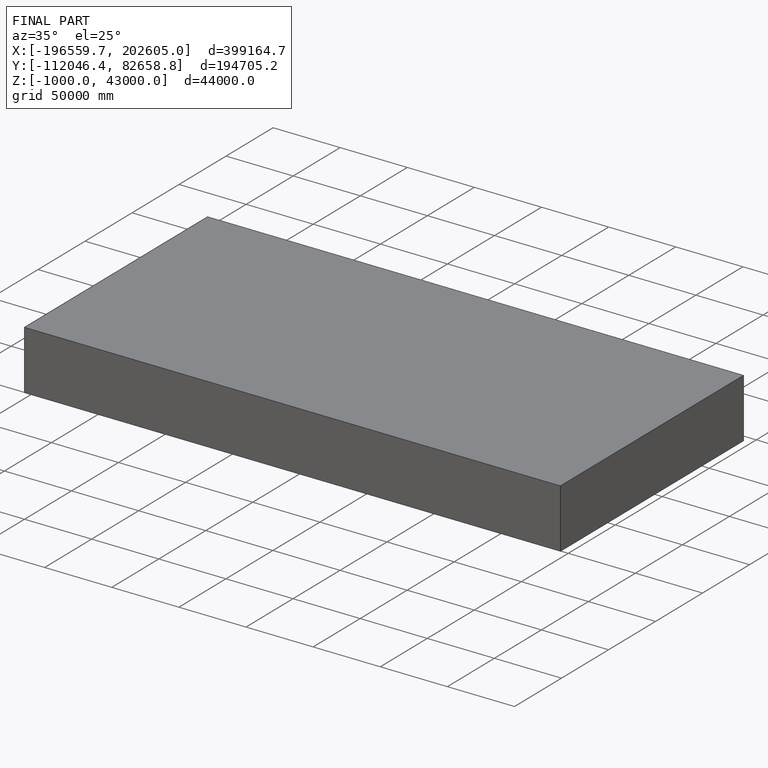
[diagram: finished part — iso view with bounding-box wireframe]
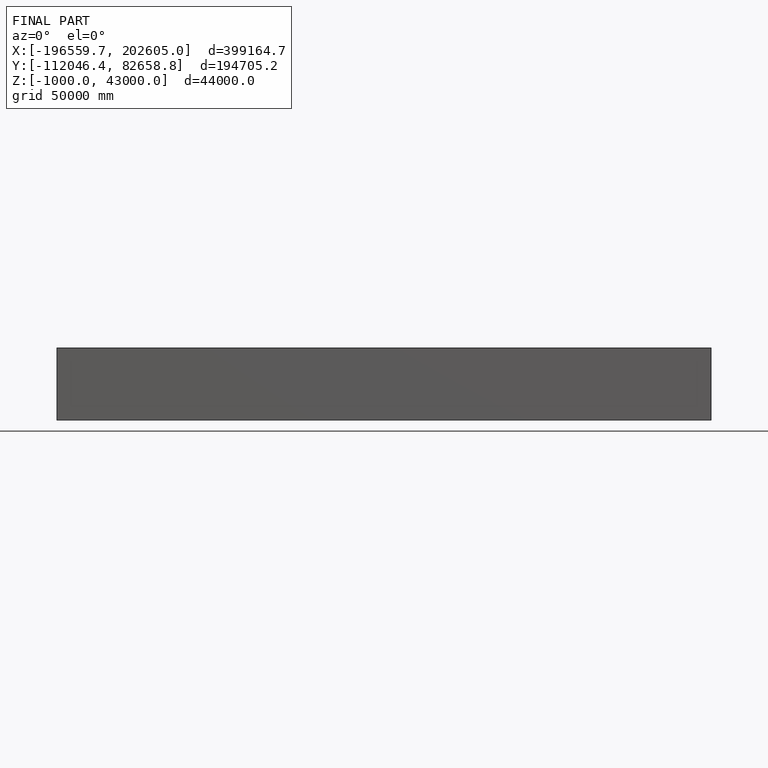
[diagram: finished part — front view with bounding-box wireframe]
